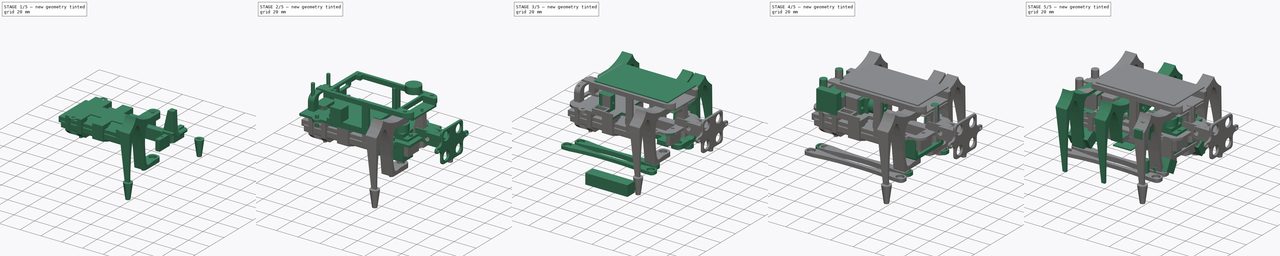
[diagram: build sequence overview — one tinted view per stage of 5, left to right]
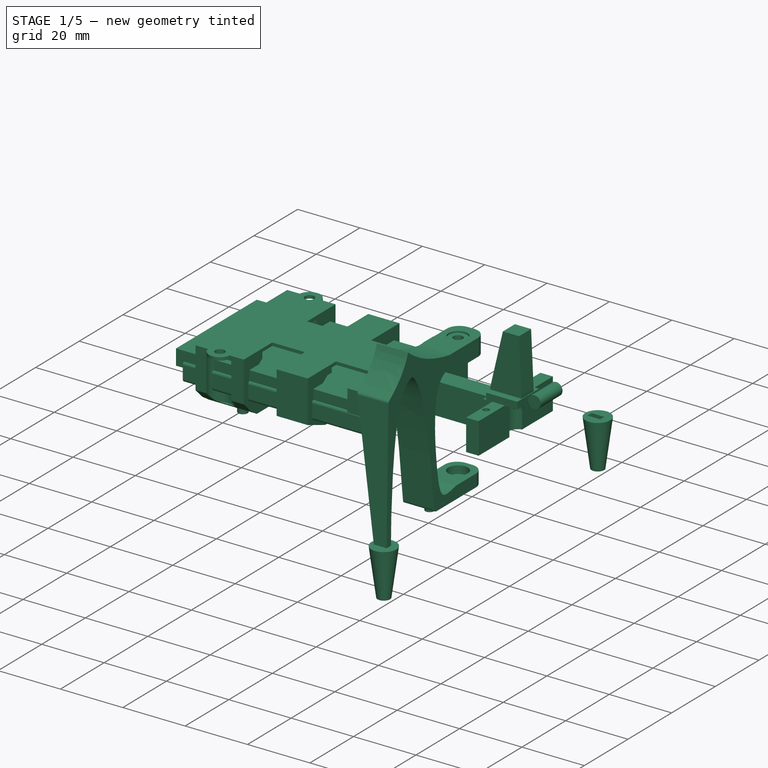
[diagram: stage 1 of 5 — iso view after this stage's code; geometry added in this stage tinted green]
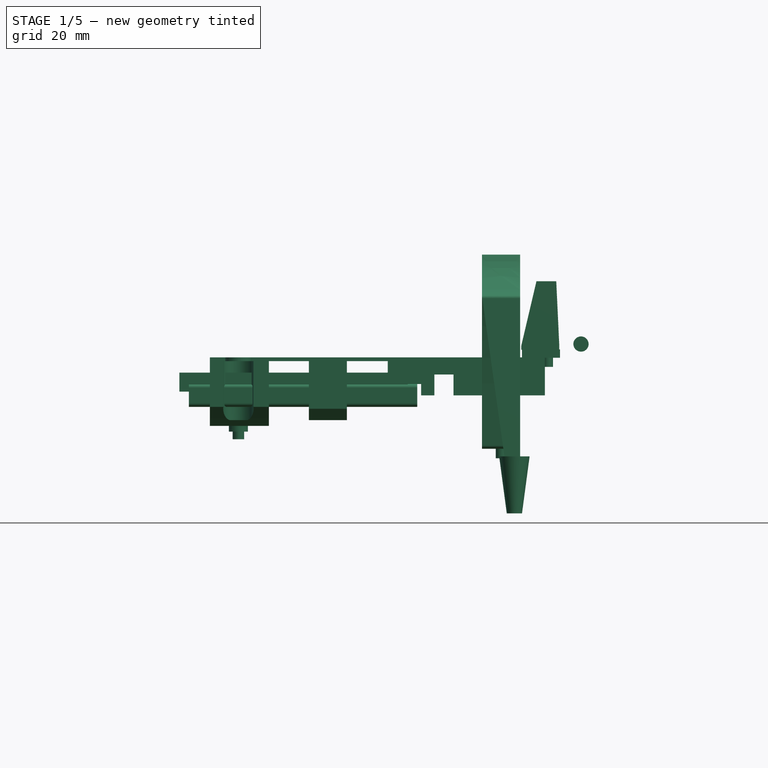
[diagram: stage 1 of 5 — front view after this stage's code; geometry added in this stage tinted green]
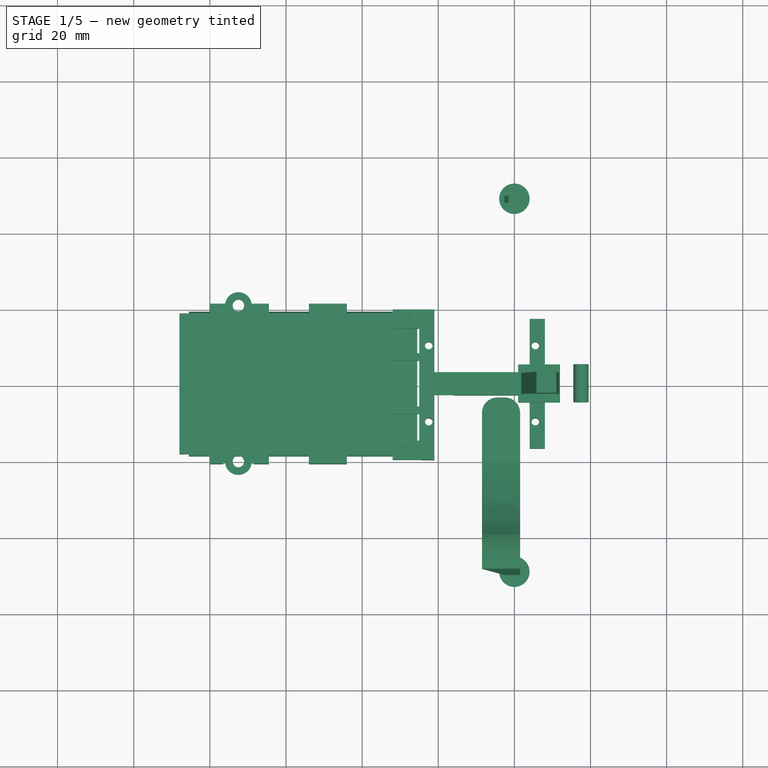
[diagram: stage 1 of 5 — top view after this stage's code; geometry added in this stage tinted green]
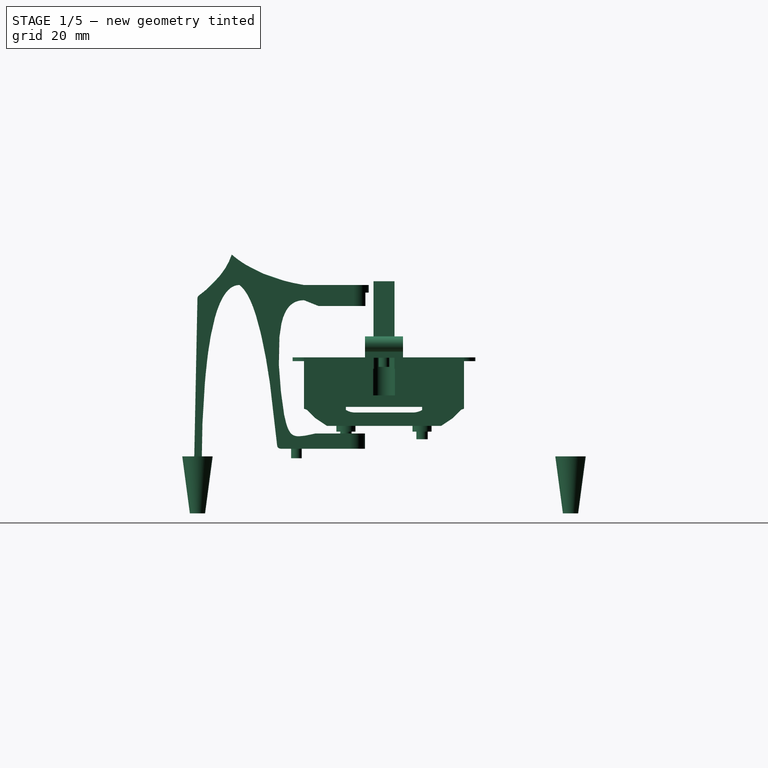
[diagram: stage 1 of 5 — right view after this stage's code; geometry added in this stage tinted green]
FCSTD DOCUMENT  (FreeCAD 0.18R16131 (Git))
Label: walki_15
License: All rights reserved
LicenseURL: http://en.wikipedia.org/wiki/All_rights_reserved
objects: Part::Cylinder×216, Part::Box×141, Part::MultiFuse×118, Part::Cut×73, Part::Fillet×58, App::DocumentObjectGroup×28, Part::Chamfer×25, Sketcher::SketchObject×16, PartDesign::Pad×16, PartDesign::Body×15, Part::Wedge×7, Part::Mirroring×7, App::Part×3, Part::Cone×2, Image::ImagePlane×1, Part::Feature×1
note: 711 computed .brp shape members not serialized (recipe doc carries the construction recipe); baked Part::Feature solids carry a one-line shape summary decoded from their .brp

FEATURE [Part::Box] Box028  label="Würfel028"
  AttacherType = Attacher::AttachEngine3D
  Height = 18
  Length = 17.5
  Placement = pos=(7.5,-21.5,-28) rot=(0,0,1;0rad)
  Width = 3.5
FEATURE [Part::Cylinder] Cylinder059  label="Zylinder059"
  Angle = 360
  AttacherType = Attacher::AttachEngine3D
  Height = 2.5
  Placement = pos=(16.5,10,-29.5) rot=(0,0,1;0rad)
  Radius = 1.4
FEATURE [Part::Cylinder] Cylinder060  label="Zylinder060"
  Angle = 360
  AttacherType = Attacher::AttachEngine3D
  Height = 2.5
  Placement = pos=(16.5,-10,-29.5) rot=(0,0,1;0rad)
  Radius = 1.4
FEATURE [Part::Box] Box030  label="Würfel030"
  AttacherType = Attacher::AttachEngine3D
  Height = 18
  Length = 17.5
  Placement = pos=(7.5,18,-28) rot=(0,0,1;0rad)
  Width = 3.5
FEATURE [Part::Cylinder] Cylinder064  label="Zylinder064"
  Angle = 360
  AttacherType = Attacher::AttachEngine3D
  Height = 10
  Placement = pos=(16.5,-20.5,-14) rot=(0,0,1;0rad)
  Radius = 1.5
FEATURE [Part::Cylinder] Cylinder066  label="Zylinder066"
  Angle = 360
  AttacherType = Attacher::AttachEngine3D
  Height = 10
  Placement = pos=(16.5,20.5,-14) rot=(0,0,1;0rad)
  Radius = 1.5
FEATURE [Part::Cylinder] Cylinder068  label="Zylinder068"
  Angle = 360
  AttacherType = Attacher::AttachEngine3D
  Height = 1
  Placement = pos=(16.5,20.5,-10) rot=(0,0,1;0rad)
  Radius = 3.5
FEATURE [Part::Box] Box036  label="Würfel036"
  AttacherType = Attacher::AttachEngine3D
  Height = 18
  Length = 15.5
  Placement = pos=(-60,-21,-27) rot=(0,0,1;0rad)
  Width = 42
FEATURE [Part::Cylinder] Cylinder072  label="Zylinder072"
  Angle = 360
  AttacherType = Attacher::AttachEngine3D
  Height = 1
  Placement = pos=(16.5,-20.5,-10) rot=(0,0,1;0rad)
  Radius = 3.5
FEATURE [Part::MultiFuse] Fusion030
  Placement = pos=(-69,0,0) rot=(0,0,1;0rad)
  Shapes = -> [Cylinder072,Cylinder068,Cylinder060,Cylinder059]
FEATURE [Part::MultiFuse] Fusion037
  Placement = pos=(-68.5,0,0) rot=(0,0,1;0rad)
  Shapes = -> [Box028,Box030]
FEATURE [App::DocumentObjectGroup] Gruppe010  label="front_servo_support"
  Group = -> [Part001,YZ_Plane012,Cut076]
FEATURE [Part::MultiFuse] Fusion097
  Placement = pos=(-69,0,0) rot=(0,0,1;0rad)
  Shapes = -> [Cylinder066,Cylinder064]
FEATURE [Part::MultiFuse] Fusion098
  Shapes = -> [Fusion030,Box036]
FEATURE [Part::MultiFuse] Fusion099
  Shapes = -> [Fusion037,Fusion097]
FEATURE [Part::Cut] Cut077
  Base = -> Fusion098
  Tool = -> Fusion099
FEATURE [Part::Chamfer] Chamfer018
  Base = -> Cut077
  Edges = 2 edges: [Edge29 r1=2 r2=3,Edge32 r1=3 r2=2]
FEATURE [Part::Box] Box089  label="Würfel085"
  AttacherType = Attacher::AttachEngine3D
  Height = 10
  Length = 32.5
  Placement = pos=(-44.5,-8,-19) rot=(0,0,1;0rad)
  Width = 16
FEATURE [Part::MultiFuse] Fusion101
  Shapes = -> [Chamfer018,Box089]
FEATURE [Part::Box] Box090  label="battery003"
  AttacherType = Attacher::AttachEngine3D
  Height = 13.5
  Length = 50
  Placement = pos=(-63.25,-12,-22) rot=(0,0,1;0rad)
  Width = 25
FEATURE [Part::Fillet] Fillet081
  Base = -> Box090
  Edges = 2 edges r=5: [Edge9,Edge11]
  Placement = pos=(0,-0.5,-1.5) rot=(0,0,1;0rad)
FEATURE [Part::Cylinder] Cylinder157  label="Zylinder157"
  Angle = 360
  AttacherType = Attacher::AttachEngine3D
  Height = 41
  Placement = pos=(-58,-20.5,-16.5) rot=(-1,0,0;1.5708rad)
  Radius = 2
FEATURE [Part::Box] Box091  label="Würfel086"
  AttacherType = Attacher::AttachEngine3D
  Height = 10
  Length = 2
  Placement = pos=(-57.5,17.5,-21) rot=(0,0,1;0rad)
  Width = 2
FEATURE [Part::Box] Box092  label="Würfel087"
  AttacherType = Attacher::AttachEngine3D
  Height = 10
  Length = 2
  Placement = pos=(-57.5,-19.5,-21) rot=(0,0,1;0rad)
  Width = 2
FEATURE [Part::MultiFuse] Fusion102
  Shapes = -> [Box091,Box092]
FEATURE [Part::Cut] Cut078
  Base = -> Cylinder157
  Tool = -> Fusion102
FEATURE [Part::MultiFuse] Fusion103
  Shapes = -> [Cut078,Fusion101]
FEATURE [Part::Box] Box093  label="Würfel088"
  AttacherType = Attacher::AttachEngine3D
  Height = 4
  Length = 9
  Placement = pos=(-13,-8,-13) rot=(0,0,1;0rad)
  Width = 2
FEATURE [Part::Box] Box094  label="Würfel089"
  AttacherType = Attacher::AttachEngine3D
  Height = 4
  Length = 9
  Placement = pos=(-13,6,-13) rot=(0,0,1;0rad)
  Width = 2
FEATURE [Part::Cylinder] Cylinder158  label="Zylinder158"
  Angle = 360
  AttacherType = Attacher::AttachEngine3D
  Height = 20
  Placement = pos=(28.75,0,-21) rot=(0,0,1;0rad)
  Radius = 3
FEATURE [Sketcher::SketchObject] Sketch015
  MapMode = 5
  Support = -> [XY_Plane012]
  sketch-geometry (12):
    g0: LineSegment StartX=-5 StartY=17 StartZ=0 EndX=-1 EndY=17 EndZ=0
    g1: LineSegment StartX=-1 StartY=17 StartZ=0 EndX=-1 EndY=3 EndZ=0
    g2: LineSegment StartX=-1 StartY=3 StartZ=0 EndX=24 EndY=3 EndZ=0
    g3: LineSegment StartX=24 StartY=3 StartZ=0 EndX=24 EndY=17 EndZ=0
    g4: LineSegment StartX=24 StartY=17 StartZ=0 EndX=28 EndY=17 EndZ=0
    g5: LineSegment StartX=28 StartY=17 StartZ=0 EndX=28 EndY=-17 EndZ=0
    g6: LineSegment StartX=-5 StartY=17 StartZ=0 EndX=-5 EndY=-17 EndZ=0
    g7: LineSegment StartX=-1 StartY=-3 StartZ=0 EndX=-1 EndY=-17 EndZ=0
    g8: LineSegment StartX=-1 StartY=-3 StartZ=0 EndX=24 EndY=-3 EndZ=0
    g9: LineSegment StartX=24 StartY=-3 StartZ=0 EndX=24 EndY=-17 EndZ=0
    g10: LineSegment StartX=24 StartY=-17 StartZ=0 EndX=28 EndY=-17 EndZ=0
    g11: LineSegment StartX=-5 StartY=-17 StartZ=0 EndX=-1 EndY=-17 EndZ=0
FEATURE [Part::Cylinder] Cylinder159  label="Zylinder159"
  Angle = 360
  AttacherType = Attacher::AttachEngine3D
  Height = 15
  Placement = pos=(25.5,-10,-20) rot=(0,0,1;0rad)
  Radius = 1
FEATURE [Part::Cylinder] Cylinder160  label="Zylinder160"
  Angle = 360
  AttacherType = Attacher::AttachEngine3D
  Height = 15
  Placement = pos=(-2.5,10,-20) rot=(0,0,1;0rad)
  Radius = 1
FEATURE [Part::Cylinder] Cylinder161  label="Zylinder161"
  Angle = 360
  AttacherType = Attacher::AttachEngine3D
  Height = 15
  Placement = pos=(-2.5,-10,-20) rot=(0,0,1;0rad)
  Radius = 1
FEATURE [Part::Cylinder] Cylinder162  label="Zylinder162"
  Angle = 360
  AttacherType = Attacher::AttachEngine3D
  Height = 15
  Placement = pos=(25.5,10,-20) rot=(0,0,1;0rad)
  Radius = 1
FEATURE [Part::MultiFuse] Fusion104
  Placement = pos=(0,0,17) rot=(0,0,1;0rad)
  Shapes = -> [Cylinder160,Cylinder159,Cylinder162,Cylinder161]
FEATURE [PartDesign::Pad] Pad015
  Length = 10
  Length2 = 100
  Profile = -> Sketch015
  Type = 0
FEATURE [PartDesign::Body] Body006
  Group = -> [Sketch015,Pad015]
  Origin = -> Origin012
  Tip = -> Pad015
FEATURE [Part::Cut] Cut081
  Base = -> Body006
  Placement = pos=(0,0,-19) rot=(0,0,1;0rad)
  Tool = -> Fusion104
FEATURE [Part::Cut] Cut080
  Base = -> Cut081
  Tool = -> Cylinder158
FEATURE [Part::Box] Box109  label="Würfel103"
  AttacherType = Attacher::AttachEngine3D
  Height = 16.5
  Length = 10
  Placement = pos=(-34,-14,-25.5) rot=(0,0,1;0rad)
  Width = 28
FEATURE [Part::Chamfer] Chamfer020
  Base = -> Box109
  Edges = 2 edges r=4: [Edge9,Edge11]
FEATURE [Part::MultiFuse] Fusion125
  Shapes = -> [Chamfer020,Cut080,Box093,Box094,Fusion103]
FEATURE [Part::Cut] Cut083
  Base = -> Fusion125
  Tool = -> Fillet081
FEATURE [Part::Cylinder] Cylinder197  label="Zylinder197"
  Angle = 360
  AttacherType = Attacher::AttachEngine3D
  Height = 2.5
  Placement = pos=(-52.5,10,-30.5) rot=(0,0,1;0rad)
  Radius = 1.5
FEATURE [Part::Cylinder] Cylinder198  label="Zylinder198"
  Angle = 360
  AttacherType = Attacher::AttachEngine3D
  Height = 2.5
  Placement = pos=(-52.5,-10,-30.5) rot=(0,0,1;0rad)
  Radius = 1.5
FEATURE [Part::Cylinder] Cylinder199  label="Zylinder199"
  Angle = 360
  AttacherType = Attacher::AttachEngine3D
  Height = 2.5
  Placement = pos=(-52.5,10,-28.5) rot=(0,0,1;0rad)
  Radius = 2.5
FEATURE [Part::Cylinder] Cylinder200  label="Zylinder200"
  Angle = 360
  AttacherType = Attacher::AttachEngine3D
  Height = 2.5
  Placement = pos=(-52.5,-10,-28.5) rot=(0,0,1;0rad)
  Radius = 2.5
FEATURE [Part::MultiFuse] Fusion130
  Shapes = -> [Cylinder197,Cylinder198,Cylinder199,Cylinder200]
FEATURE [Part::MultiFuse] Fusion131
  Shapes = -> [Cut083,Fusion130]
FEATURE [Part::Box] Box145  label="Würfel135"
  AttacherType = Attacher::AttachEngine3D
  Height = 10
  Length = 11
  Placement = pos=(-12,14.5,-19) rot=(0,0,1;0rad)
  Width = 5
FEATURE [Part::Cylinder] Cylinder230  label="Zylinder230"
  Angle = 360
  AttacherType = Attacher::AttachEngine3D
  Height = 15
  Placement = pos=(-8.5,17,-20) rot=(0,0,1;0rad)
  Radius = 1
FEATURE [Part::Cut] Cut102
  Base = -> Box145
  Tool = -> Cylinder230
FEATURE [Part::Box] Box146  label="Würfel136"
  AttacherType = Attacher::AttachEngine3D
  Height = 10
  Length = 11
  Placement = pos=(-12,13.5,-19) rot=(0,0,1;0rad)
  Width = 5
FEATURE [Part::Cylinder] Cylinder231  label="Zylinder231"
  Angle = 360
  AttacherType = Attacher::AttachEngine3D
  Height = 15
  Placement = pos=(-8.5,16,-20) rot=(0,0,1;0rad)
  Radius = 1
FEATURE [Part::Cut] Cut103
  Base = -> Box146
  Placement = pos=(0,-33.5,0) rot=(0,0,1;0rad)
  Tool = -> Cylinder231
FEATURE [Part::MultiFuse] Fusion147
  Shapes = -> [Fusion131,Cut103,Cut102]
FEATURE [Part::Cylinder] Cylinder238  label="Zylinder240"
  Angle = 360
  AttacherType = Attacher::AttachEngine3D
  Height = 19
  Placement = pos=(28.75,0,-11.5) rot=(0,0,1;0rad)
  Radius = 1.4
FEATURE [Part::Box] Box160  label="Würfel149"
  AttacherType = Attacher::AttachEngine3D
  Height = 18
  Length = 10
  Placement = pos=(21.8,-2.75,-7) rot=(0,0,1;0rad)
  Width = 5.5
FEATURE [Part::Chamfer] Chamfer023
  Base = -> Box160
  Edges = 2 edges: [Edge2 r1=17 r2=4,Edge6 r1=17 r2=0.8]
FEATURE [Part::Box] Box161  label="Würfel150"
  AttacherType = Attacher::AttachEngine3D
  Height = 2.2
  Length = 10
  Placement = pos=(22,-5,-9.1) rot=(0,0,1;0rad)
  Width = 10
FEATURE [Part::MultiFuse] Fusion158
  Shapes = -> [Cylinder238,Box161,Chamfer023]
FEATURE [Part::Cylinder] Cylinder239  label="Zylinder241"
  Angle = 360
  AttacherType = Attacher::AttachEngine3D
  Height = 10
  Placement = pos=(37.5,5,-5.5) rot=(1,0,0;1.5708rad)
  Radius = 2
FEATURE [Part::Box] Box164  label="Würfel153"
  AttacherType = Attacher::AttachEngine3D
  Height = 3
  Length = 7
  Placement = pos=(21,-5,-12) rot=(0,0,1;0rad)
  Width = 10
FEATURE [Part::Cylinder] Cylinder241  label="Zylinder243"
  Angle = 360
  AttacherType = Attacher::AttachEngine3D
  Height = 10
  Placement = pos=(28.5,0,-16.5) rot=(0,0,1;0rad)
  Radius = 2.8
FEATURE [Part::Cut] Cut111
  Base = -> Box164
  Tool = -> Cylinder241
FEATURE [App::DocumentObjectGroup] Gruppe027  label="sensor_evo_mini"
  Group = -> [Part__Feature,Fusion161,Cut112]
FEATURE [Part::Cone] Cone  label="Kegel"
  Angle = 360
  AttacherType = Attacher::AttachEngine3D
  Height = 15
  Placement = pos=(20,49,-50) rot=(0,0,1;0rad)
  Radius1 = 2
  Radius2 = 4
FEATURE [Sketcher::SketchObject] Sketch020
  MapMode = 5
  Placement = pos=(0,0,0) rot=(0.57735,0.57735,0.57735;2.0944rad)
  Support = -> [YZ_Plane030]
  sketch-geometry (50):
    g0: LineSegment StartX=4 StartY=4 StartZ=0 EndX=4 EndY=10 EndZ=0
    g1: LineSegment StartX=4 StartY=10 StartZ=0 EndX=21 EndY=10 EndZ=0
    g2: LineSegment StartX=5 StartY=-29 StartZ=0 EndX=18 EndY=-29 EndZ=0
    g3: LineSegment StartX=5 StartY=-29 StartZ=0 EndX=5 EndY=-33 EndZ=0
    g4: LineSegment StartX=5 StartY=-33 StartZ=0 EndX=28 EndY=-33 EndZ=0
    g5: LineSegment StartX=4 StartY=4 StartZ=0 EndX=16 EndY=4 EndZ=0
    g6: LineSegment StartX=16 StartY=4 StartZ=0 EndX=21 EndY=6 EndZ=0
    g7: Circle [constr] CenterX=21 CenterY=10 CenterZ=0 NormalX=0 NormalY=0 NormalZ=1 AngleXU=0 Radius=2
    g8: Circle [constr] CenterX=33 CenterY=12 CenterZ=0 NormalX=0 NormalY=0 NormalZ=1 AngleXU=0 Radius=2
    g9: Circle [constr] CenterX=40 CenterY=18 CenterZ=0 NormalX=0 NormalY=0 NormalZ=1 AngleXU=0 Radius=2
    g10: BSplineCurve PolesCount=3 KnotsCount=2 Degree=2 IsPeriodic=0
    g11: GeomPoint [constr] X=21 Y=10 Z=0
    g12: GeomPoint [constr] X=40 Y=18 Z=0
    g13: Circle [constr] CenterX=40 CenterY=18 CenterZ=0 NormalX=0 NormalY=0 NormalZ=1 AngleXU=0 Radius=1
    g14: Circle [constr] CenterX=42 CenterY=12 CenterZ=0 NormalX=0 NormalY=0 NormalZ=1 AngleXU=0 Radius=1
    g15: Circle [constr] CenterX=49 CenterY=7 CenterZ=0 NormalX=0 NormalY=0 NormalZ=1 AngleXU=0 Radius=1
    g16: BSplineCurve PolesCount=3 KnotsCount=2 Degree=2 IsPeriodic=0
    g17: GeomPoint [constr] X=40 Y=18 Z=0
    g18: GeomPoint [constr] X=49 Y=7 Z=0
    g19: Circle [constr] CenterX=49 CenterY=7 CenterZ=0 NormalX=0 NormalY=0 NormalZ=1 AngleXU=0 Radius=8
    g20: Circle [constr] CenterX=50 CenterY=-43 CenterZ=0 NormalX=0 NormalY=0 NormalZ=1 AngleXU=0 Radius=8
    g21: BSplineCurve PolesCount=2 KnotsCount=2 Degree=1 IsPeriodic=0
    g22: GeomPoint [constr] X=49 Y=7 Z=0
    g23: GeomPoint [constr] X=50 Y=-43 Z=0
    g24: Circle [constr] CenterX=48 CenterY=-43 CenterZ=0 NormalX=0 NormalY=0 NormalZ=1 AngleXU=0 Radius=8
    g25: Circle [constr] CenterX=48 CenterY=10 CenterZ=0 NormalX=0 NormalY=0 NormalZ=1 AngleXU=0 Radius=8
    g26: Circle [constr] CenterX=38 CenterY=10 CenterZ=0 NormalX=0 NormalY=0 NormalZ=1 AngleXU=0 Radius=8
    g27: BSplineCurve PolesCount=3 KnotsCount=2 Degree=2 IsPeriodic=0
    g28: GeomPoint [constr] X=48 Y=-43 Z=0
    g29: GeomPoint [constr] X=38 Y=10 Z=0
    g30: LineSegment StartX=48 StartY=-43 StartZ=0 EndX=50 EndY=-43 EndZ=0
    g31: Circle [constr] CenterX=28 CenterY=-33 CenterZ=0 NormalX=0 NormalY=0 NormalZ=1 AngleXU=0 Radius=4
    g32: Circle [constr] CenterX=31.5452 CenterY=5.41621 CenterZ=0 NormalX=0 NormalY=0 NormalZ=1 AngleXU=0 Radius=4
    g33: Circle [constr] CenterX=38 CenterY=10 CenterZ=0 NormalX=0 NormalY=0 NormalZ=1 AngleXU=0 Radius=4
    g34: BSplineCurve PolesCount=3 KnotsCount=2 Degree=2 IsPeriodic=0
    g35: GeomPoint [constr] X=28 Y=-33 Z=0
    g36: GeomPoint [constr] X=38 Y=10 Z=0
    g37-g43: Circle [constr] x7 (B-spline internal-alignment scaffolding for g44; pole/knot coordinates omitted)
    g44: BSplineCurve PolesCount=7 KnotsCount=5 Degree=3 IsPeriodic=0
    g45-g49: GeomPoint [constr] x5 (B-spline internal-alignment scaffolding for g44; pole/knot coordinates omitted)
  constraints (42):
    c: Radius(g7) = 2
    c: Equal(g7,g8)
    c: Equal(g7,g9)
    c: InternalAlignment(g7,g10)
    c: InternalAlignment(g8,g10)
    c: InternalAlignment(g9,g10)
    c: InternalAlignment(g11,g10)
    c: InternalAlignment(g12,g10)
    c: Radius(g13) = 1
    c: Equal(g13,g14)
    c: Equal(g13,g15)
    c: InternalAlignment(g13,g16)
    c: InternalAlignment(g14,g16)
    c: InternalAlignment(g15,g16)
    c: InternalAlignment(g17,g16)
    c: InternalAlignment(g18,g16)
    c: Radius(g19) = 8
    c: Equal(g19,g20)
    c: InternalAlignment(g19,g21)
    c: InternalAlignment(g20,g21)
    c: InternalAlignment(g22,g21)
    c: InternalAlignment(g23,g21)
    c: Radius(g24) = 8
    c: Equal(g24,g25)
    c: Equal(g24,g26)
    c: InternalAlignment(g24,g27)
    c: InternalAlignment(g25,g27)
    c: InternalAlignment(g26,g27)
    c: InternalAlignment(g28,g27)
    c: InternalAlignment(g29,g27)
    c: Radius(g31) = 4
    c: Equal(g31,g32)
    c: Equal(g31,g33)
    c: InternalAlignment(g31,g34)
    c: InternalAlignment(g32,g34)
    c: InternalAlignment(g33,g34)
    c: InternalAlignment(g35,g34)
    c: InternalAlignment(g36,g34)
    c: Radius(g37) = 0.8
    c: Equal(g37, g38-g43) x6
    c: InternalAlignment(g37-g43 -> g44) x7
    c: InternalAlignment(g45-g49 -> g44) x5
FEATURE [Part::Wedge] Wedge005  label="Keil005"
  AttacherType = Attacher::AttachEngine3D
  Placement = pos=(12.5,10,0) rot=(0,0,1;0rad)
  X2max = 6
  X2min = 2
  Xmax = 8
  Xmin = 0
  Ymax = 18
  Ymin = 0
  Z2max = 8
  Z2min = 2
  Zmax = 8
  Zmin = 2
FEATURE [Part::Box] Box165  label="Würfel154"
  AttacherType = Attacher::AttachEngine3D
  Height = 7
  Length = 7
  Placement = pos=(13,1,1) rot=(0,0,1;0rad)
  Width = 9
FEATURE [Part::Cylinder] Cylinder242  label="Zylinder244"
  Angle = 360
  AttacherType = Attacher::AttachEngine3D
  Height = 14
  Placement = pos=(16.5,10,-2) rot=(0,0,1;0rad)
  Radius = 1.5
FEATURE [Part::Cylinder] Cylinder243  label="Zylinder245"
  Angle = 360
  AttacherType = Attacher::AttachEngine3D
  Height = 10
  Placement = pos=(16.5,10,-31.5) rot=(0,0,1;0rad)
  Radius = 3.15
FEATURE [Part::Cylinder] Cylinder244  label="Zylinder246"
  Angle = 360
  AttacherType = Attacher::AttachEngine3D
  Height = 10
  Placement = pos=(16.5,10,-2) rot=(0,0,1;0rad)
  Radius = 4.25
FEATURE [Part::Cylinder] Cylinder245  label="Zylinder247"
  Angle = 360
  AttacherType = Attacher::AttachEngine3D
  Height = 3
  Placement = pos=(16.5,10,9.5) rot=(0,0,1;0rad)
  Radius = 3
FEATURE [Part::MultiFuse] Fusion163
  Shapes = -> [Cylinder243,Cylinder244,Wedge005,Box165,Cylinder242,Cylinder245]
FEATURE [PartDesign::Pad] Pad020
  Length = 10
  Length2 = 100
  Placement = pos=(0,0,0) rot=(0.57735,0.57735,0.57735;2.0944rad)
  Profile = -> Sketch020
  Type = 0
FEATURE [Part::Chamfer] Chamfer024
  Base = -> Pad020
  Edges = 1 edges: [Edge21 r1=7 r2=50]
  Placement = pos=(11.5,0,0) rot=(0,0,1;0rad)
FEATURE [Part::Fillet] Fillet100
  Base = -> Chamfer024
  Edges = 1 edges r=1: [Edge4]
FEATURE [Part::Fillet] Fillet103
  Base = -> Fillet100
  Edges = 1 edges r=1: [Edge44]
FEATURE [Part::Fillet] Fillet101
  Base = -> Fillet103
  Edges = 2 edges r=4: [Edge16,Edge50]
FEATURE [Part::Cylinder] Cylinder246  label="Zylinder248"
  Angle = 360
  AttacherType = Attacher::AttachEngine3D
  Height = 20
  Placement = pos=(16.5,23,-38.5) rot=(0,0,1;0rad)
  Radius = 0.6
FEATURE [Part::MultiFuse] Fusion162
  Shapes = -> [Cylinder246,Fusion163]
FEATURE [Part::Cylinder] Cylinder247  label="Zylinder249"
  Angle = 360
  AttacherType = Attacher::AttachEngine3D
  Height = 2.5
  Placement = pos=(16.5,23,-35.5) rot=(0,0,1;0rad)
  Radius = 1.4
FEATURE [Part::Box] Box166  label="Würfel155"
  AttacherType = Attacher::AttachEngine3D
  Height = 0.5
  Length = 12
  Placement = pos=(10.5,2.5,4) rot=(0,0,1;0rad)
  Width = 16
FEATURE [Part::MultiFuse] Fusion164
  Shapes = -> [Cylinder247,Fillet101]
FEATURE [Part::Cut] Cut113
  Base = -> Fusion164
  Tool = -> Fusion162
FEATURE [Part::Cut] Cut114
  Base = -> Cut113
  Tool = -> Box166
FEATURE [Part::Fillet] Fillet102
  Base = -> Cut114
  Edges = 2 edges r=4: [Edge5,Edge37]
FEATURE [Part::Cut] Cut115
  Base = -> Cone
  Tool = -> Fillet102
FEATURE [Part::Cone] Cone001  label="Kegel001"
  Angle = 360
  AttacherType = Attacher::AttachEngine3D
  Height = 15
  Placement = pos=(20,-49,-50) rot=(0,0,1;0rad)
  Radius1 = 2
  Radius2 = 4
FEATURE [Sketcher::SketchObject] Sketch021
  MapMode = 5
  Placement = pos=(0,0,0) rot=(0.57735,0.57735,0.57735;2.0944rad)
  Support = -> [YZ_Plane031]
  sketch-geometry (50):
    g0: LineSegment StartX=4 StartY=4 StartZ=0 EndX=4 EndY=10 EndZ=0
    g1: LineSegment StartX=4 StartY=10 StartZ=0 EndX=21 EndY=10 EndZ=0
    g2: LineSegment StartX=5 StartY=-29 StartZ=0 EndX=18 EndY=-29 EndZ=0
    g3: LineSegment StartX=5 StartY=-29 StartZ=0 EndX=5 EndY=-33 EndZ=0
    g4: LineSegment StartX=5 StartY=-33 StartZ=0 EndX=28 EndY=-33 EndZ=0
    g5: LineSegment StartX=4 StartY=4 StartZ=0 EndX=16 EndY=4 EndZ=0
    g6: LineSegment StartX=16 StartY=4 StartZ=0 EndX=21 EndY=6 EndZ=0
    g7: Circle [constr] CenterX=21 CenterY=10 CenterZ=0 NormalX=0 NormalY=0 NormalZ=1 AngleXU=0 Radius=2
    g8: Circle [constr] CenterX=33 CenterY=12 CenterZ=0 NormalX=0 NormalY=0 NormalZ=1 AngleXU=0 Radius=2
    g9: Circle [constr] CenterX=40 CenterY=18 CenterZ=0 NormalX=0 NormalY=0 NormalZ=1 AngleXU=0 Radius=2
    g10: BSplineCurve PolesCount=3 KnotsCount=2 Degree=2 IsPeriodic=0
    g11: GeomPoint [constr] X=21 Y=10 Z=0
    g12: GeomPoint [constr] X=40 Y=18 Z=0
    g13: Circle [constr] CenterX=40 CenterY=18 CenterZ=0 NormalX=0 NormalY=0 NormalZ=1 AngleXU=0 Radius=1
    g14: Circle [constr] CenterX=42 CenterY=12 CenterZ=0 NormalX=0 NormalY=0 NormalZ=1 AngleXU=0 Radius=1
    g15: Circle [constr] CenterX=49 CenterY=7 CenterZ=0 NormalX=0 NormalY=0 NormalZ=1 AngleXU=0 Radius=1
    g16: BSplineCurve PolesCount=3 KnotsCount=2 Degree=2 IsPeriodic=0
    g17: GeomPoint [constr] X=40 Y=18 Z=0
    g18: GeomPoint [constr] X=49 Y=7 Z=0
    g19: Circle [constr] CenterX=49 CenterY=7 CenterZ=0 NormalX=0 NormalY=0 NormalZ=1 AngleXU=0 Radius=8
    g20: Circle [constr] CenterX=50 CenterY=-43 CenterZ=0 NormalX=0 NormalY=0 NormalZ=1 AngleXU=0 Radius=8
    g21: BSplineCurve PolesCount=2 KnotsCount=2 Degree=1 IsPeriodic=0
    g22: GeomPoint [constr] X=49 Y=7 Z=0
    g23: GeomPoint [constr] X=50 Y=-43 Z=0
    g24: Circle [constr] CenterX=48 CenterY=-43 CenterZ=0 NormalX=0 NormalY=0 NormalZ=1 AngleXU=0 Radius=8
    g25: Circle [constr] CenterX=48 CenterY=10 CenterZ=0 NormalX=0 NormalY=0 NormalZ=1 AngleXU=0 Radius=8
    g26: Circle [constr] CenterX=38 CenterY=10 CenterZ=0 NormalX=0 NormalY=0 NormalZ=1 AngleXU=0 Radius=8
    g27: BSplineCurve PolesCount=3 KnotsCount=2 Degree=2 IsPeriodic=0
    g28: GeomPoint [constr] X=48 Y=-43 Z=0
    g29: GeomPoint [constr] X=38 Y=10 Z=0
    g30: LineSegment StartX=48 StartY=-43 StartZ=0 EndX=50 EndY=-43 EndZ=0
    g31: Circle [constr] CenterX=28 CenterY=-33 CenterZ=0 NormalX=0 NormalY=0 NormalZ=1 AngleXU=0 Radius=4
    g32: Circle [constr] CenterX=31.5452 CenterY=5.41621 CenterZ=0 NormalX=0 NormalY=0 NormalZ=1 AngleXU=0 Radius=4
    g33: Circle [constr] CenterX=38 CenterY=10 CenterZ=0 NormalX=0 NormalY=0 NormalZ=1 AngleXU=0 Radius=4
    g34: BSplineCurve PolesCount=3 KnotsCount=2 Degree=2 IsPeriodic=0
    g35: GeomPoint [constr] X=28 Y=-33 Z=0
    g36: GeomPoint [constr] X=38 Y=10 Z=0
    g37-g43: Circle [constr] x7 (B-spline internal-alignment scaffolding for g44; pole/knot coordinates omitted)
    g44: BSplineCurve PolesCount=7 KnotsCount=5 Degree=3 IsPeriodic=0
    g45-g49: GeomPoint [constr] x5 (B-spline internal-alignment scaffolding for g44; pole/knot coordinates omitted)
  constraints (42):
    c: Radius(g7) = 2
    c: Equal(g7,g8)
    c: Equal(g7,g9)
    c: InternalAlignment(g7,g10)
    c: InternalAlignment(g8,g10)
    c: InternalAlignment(g9,g10)
    c: InternalAlignment(g11,g10)
    c: InternalAlignment(g12,g10)
    c: Radius(g13) = 1
    c: Equal(g13,g14)
    c: Equal(g13,g15)
    c: InternalAlignment(g13,g16)
    c: InternalAlignment(g14,g16)
    c: InternalAlignment(g15,g16)
    c: InternalAlignment(g17,g16)
    c: InternalAlignment(g18,g16)
    c: Radius(g19) = 8
    c: Equal(g19,g20)
    c: InternalAlignment(g19,g21)
    c: InternalAlignment(g20,g21)
    c: InternalAlignment(g22,g21)
    c: InternalAlignment(g23,g21)
    c: Radius(g24) = 8
    c: Equal(g24,g25)
    c: Equal(g24,g26)
    c: InternalAlignment(g24,g27)
    c: InternalAlignment(g25,g27)
    c: InternalAlignment(g26,g27)
    c: InternalAlignment(g28,g27)
    c: InternalAlignment(g29,g27)
    c: Radius(g31) = 4
    c: Equal(g31,g32)
    c: Equal(g31,g33)
    c: InternalAlignment(g31,g34)
    c: InternalAlignment(g32,g34)
    c: InternalAlignment(g33,g34)
    c: InternalAlignment(g35,g34)
    c: InternalAlignment(g36,g34)
    c: Radius(g37) = 0.8
    c: Equal(g37, g38-g43) x6
    c: InternalAlignment(g37-g43 -> g44) x7
    c: InternalAlignment(g45-g49 -> g44) x5
FEATURE [Part::Wedge] Wedge006  label="Keil006"
  AttacherType = Attacher::AttachEngine3D
  Placement = pos=(12.5,10,0) rot=(0,0,1;0rad)
  X2max = 6
  X2min = 2
  Xmax = 8
  Xmin = 0
  Ymax = 18
  Ymin = 0
  Z2max = 8
  Z2min = 2
  Zmax = 8
  Zmin = 2
FEATURE [Part::Box] Box167  label="Würfel156"
  AttacherType = Attacher::AttachEngine3D
  Height = 7
  Length = 7
  Placement = pos=(13,1,1) rot=(0,0,1;0rad)
  Width = 9
FEATURE [Part::Cylinder] Cylinder248  label="Zylinder250"
  Angle = 360
  AttacherType = Attacher::AttachEngine3D
  Height = 3
  Placement = pos=(16.5,10,9.5) rot=(0,0,1;0rad)
  Radius = 3
FEATURE [Part::Cylinder] Cylinder249  label="Zylinder251"
  Angle = 360
  AttacherType = Attacher::AttachEngine3D
  Height = 14
  Placement = pos=(16.5,10,-2) rot=(0,0,1;0rad)
  Radius = 1.5
FEATURE [Part::Cylinder] Cylinder250  label="Zylinder252"
  Angle = 360
  AttacherType = Attacher::AttachEngine3D
  Height = 10
  Placement = pos=(16.5,10,-31.5) rot=(0,0,1;0rad)
  Radius = 3.15
FEATURE [Part::Cylinder] Cylinder251  label="Zylinder253"
  Angle = 360
  AttacherType = Attacher::AttachEngine3D
  Height = 20
  Placement = pos=(16.5,23,-38.5) rot=(0,0,1;0rad)
  Radius = 0.6
FEATURE [Part::Cylinder] Cylinder252  label="Zylinder254"
  Angle = 360
  AttacherType = Attacher::AttachEngine3D
  Height = 2.5
  Placement = pos=(16.5,23,-35.5) rot=(0,0,1;0rad)
  Radius = 1.4
FEATURE [Part::Cylinder] Cylinder253  label="Zylinder255"
  Angle = 360
  AttacherType = Attacher::AttachEngine3D
  Height = 10
  Placement = pos=(16.5,10,-2) rot=(0,0,1;0rad)
  Radius = 4.25
FEATURE [Part::MultiFuse] Fusion167
  Shapes = -> [Cylinder250,Cylinder253,Wedge006,Box167,Cylinder249,Cylinder248]
FEATURE [Part::MultiFuse] Fusion166
  Shapes = -> [Cylinder251,Fusion167]
FEATURE [Part::Box] Box168  label="Würfel157"
  AttacherType = Attacher::AttachEngine3D
  Height = 0.5
  Length = 12
  Placement = pos=(10.5,2.5,4) rot=(0,0,1;0rad)
  Width = 16
FEATURE [PartDesign::Pad] Pad021
  Length = 10
  Length2 = 100
  Placement = pos=(0,0,0) rot=(0.57735,0.57735,0.57735;2.0944rad)
  Profile = -> Sketch021
  Type = 0
FEATURE [PartDesign::Body] Pad010Body001
  Group = -> [Sketch021,Pad021]
  Origin = -> Origin019
  Tip = -> Pad021
FEATURE [Part::Chamfer] Chamfer025
  Base = -> Pad010Body001
  Edges = 1 edges: [Edge21 r1=7 r2=50]
  Placement = pos=(11.5,0,0) rot=(0,0,1;0rad)
FEATURE [Part::Fillet] Fillet105
  Base = -> Chamfer025
  Edges = 1 edges r=1: [Edge4]
FEATURE [Part::Fillet] Fillet104
  Base = -> Fillet105
  Edges = 1 edges r=1: [Edge44]
FEATURE [Part::Fillet] Fillet106
  Base = -> Fillet104
  Edges = 2 edges r=4: [Edge16,Edge50]
FEATURE [Part::MultiFuse] Fusion165
  Shapes = -> [Cylinder252,Fillet106]
FEATURE [Part::Cut] Cut117
  Base = -> Fusion165
  Tool = -> Fusion166
FEATURE [Part::Cut] Cut116
  Base = -> Cut117
  Tool = -> Box168
FEATURE [Part::Fillet] Fillet107
  Base = -> Cut116
  Edges = 2 edges r=4: [Edge5,Edge37]
FEATURE [Part::Mirroring] Part__Mirroring006  label="Fillet070 (Mirror #2)001"
  Base = (16.5,-27,0)
  Normal = (0,0,1)
  Placement = pos=(0,0,0) rot=(1,0,0;3.14159rad)
  Source = -> Fillet107
FEATURE [App::DocumentObjectGroup] Gruppe028  label="feet"
  Group = -> [Cut115,Part__Mirroring006,Cone001,YZ_Plane030]
FEATURE [Part::Box] Box169  label="battery_2000"
  AttacherType = Attacher::AttachEngine3D
  Height = 5
  Length = 60
  Placement = pos=(-68,-18.5,-18) rot=(0,0,1;0rad)
  Width = 37
FEATURE [App::DocumentObjectGroup] Gruppe007  label="__unused"
  Group = -> [Fusion007,YZ_Plane004,Fusion064,Fusion067,Box066,Fusion100,Fusion051,Fusion106,Gruppe010,Box070,Chamfer022,Gruppe024,Box169]
FEATURE [Part::Box] Box170  label="Würfel159"
  AttacherType = Attacher::AttachEngine3D
  Height = 6
  Length = 60
  Placement = pos=(-65.5,-19,-18) rot=(0,0,1;0rad)
  Width = 38
FEATURE [Part::Fillet] Fillet108
  Base = -> Box170
  Edges = 4 edges r=1: [Edge9,Edge10,Edge11,Edge12]
  Placement = pos=(0,0,-4) rot=(0,0,1;0rad)
FEATURE [App::DocumentObjectGroup] Gruppe029  label="battery2"
  Group = -> [Box170,Fillet108]
FEATURE [Part::Box] Box171  label="Würfel160"
  AttacherType = Attacher::AttachEngine3D
  Height = 15
  Length = 15.5
  Placement = pos=(-60,17,-25) rot=(0,0,1;0rad)
  Width = 4
FEATURE [Part::Cylinder] Cylinder254  label="Zylinder256"
  Angle = 360
  AttacherType = Attacher::AttachEngine3D
  Height = 15.5
  Placement = pos=(-52.5,20.5,-25.5) rot=(0,0,1;0rad)
  Radius = 4
FEATURE [Part::Chamfer] Chamfer026
  Base = -> Box171
  Edges = 1 edges r=3: [Edge11]
FEATURE [Part::Box] Box172  label="Würfel161"
  AttacherType = Attacher::AttachEngine3D
  Height = 15
  Length = 15.5
  Placement = pos=(-60,-21,-25) rot=(0,0,1;0rad)
  Width = 4
FEATURE [Part::Cylinder] Cylinder255  label="Zylinder257"
  Angle = 360
  AttacherType = Attacher::AttachEngine3D
  Height = 15.5
  Placement = pos=(-52.5,-20.5,-25.5) rot=(0,0,1;0rad)
  Radius = 4
FEATURE [Part::Chamfer] Chamfer027
  Base = -> Box172
  Edges = 1 edges r=3: [Edge9]
FEATURE [Part::MultiFuse] Fusion168
  Shapes = -> [Cylinder254,Cylinder255]
FEATURE [Part::MultiFuse] Fusion169
  Shapes = -> [Chamfer026,Chamfer027]
FEATURE [Part::Box] Box173  label="Würfel162"
  AttacherType = Attacher::AttachEngine3D
  Height = 16.5
  Length = 10
  Placement = pos=(-34,10,-25.5) rot=(0,0,1;0rad)
  Width = 11
FEATURE [Part::Box] Box174  label="Würfel163"
  AttacherType = Attacher::AttachEngine3D
  Height = 16.5
  Length = 10
  Placement = pos=(-34,-21,-25.5) rot=(0,0,1;0rad)
  Width = 11
FEATURE [Part::Box] Box175  label="Würfel164"
  AttacherType = Attacher::AttachEngine3D
  Height = 4
  Length = 12.5
  Placement = pos=(-17,-21,-20) rot=(0,0,1;0rad)
  Width = 42
FEATURE [Part::Box] Box176  label="Würfel165"
  AttacherType = Attacher::AttachEngine3D
  Height = 10
  Length = 10
  Placement = pos=(-6,-3,-23.5) rot=(0,0,1;0rad)
  Width = 6
FEATURE [Part::Chamfer] Chamfer028
  Base = -> Box173
  Edges = 1 edges: [Edge11 r1=3 r2=8]
FEATURE [Part::Box] Box177  label="Würfel166"
  AttacherType = Attacher::AttachEngine3D
  Height = 9
  Length = 49
  Placement = pos=(-69.5,-19,-20.5) rot=(0,0,1;0rad)
  Width = 10
FEATURE [Part::Box] Box178  label="Würfel167"
  AttacherType = Attacher::AttachEngine3D
  Height = 9
  Length = 49
  Placement = pos=(-69.5,9,-20.5) rot=(0,0,1;0rad)
  Width = 10
FEATURE [Part::Chamfer] Chamfer029
  Base = -> Box178
  Edges = 1 edges: [Edge12 r1=5 r2=7]
FEATURE [Part::Chamfer] Chamfer030
  Base = -> Box177
  Edges = 1 edges: [Edge10 r1=5 r2=7]
FEATURE [Part::Chamfer] Chamfer031
  Base = -> Box174
  Edges = 1 edges: [Edge9 r1=3 r2=8]
FEATURE [Part::Box] Box179  label="Würfel168"
  AttacherType = Attacher::AttachEngine3D
  Height = 6
  Length = 60
  Placement = pos=(-65.5,-19,-18) rot=(0,0,1;0rad)
  Width = 38
FEATURE [Part::Fillet] Fillet109
  Base = -> Box179
  Edges = 4 edges r=1: [Edge9,Edge10,Edge11,Edge12]
  Placement = pos=(0,0,-4) rot=(0,0,1;0rad)
FEATURE [Part::MultiFuse] Fusion174
  Shapes = -> [Box176,Box175,Fusion168,Fillet109,Chamfer030,Chamfer029]
FEATURE [Part::MultiFuse] Fusion175
  Shapes = -> [Fusion169,Chamfer028,Chamfer031,Fusion147]
FEATURE [Part::Cut] Cut118
  Base = -> Fusion175
  Tool = -> Fusion174
FEATURE [App::DocumentObjectGroup] Gruppe006  label="bottom_rear"
  Group = -> [Cut118]
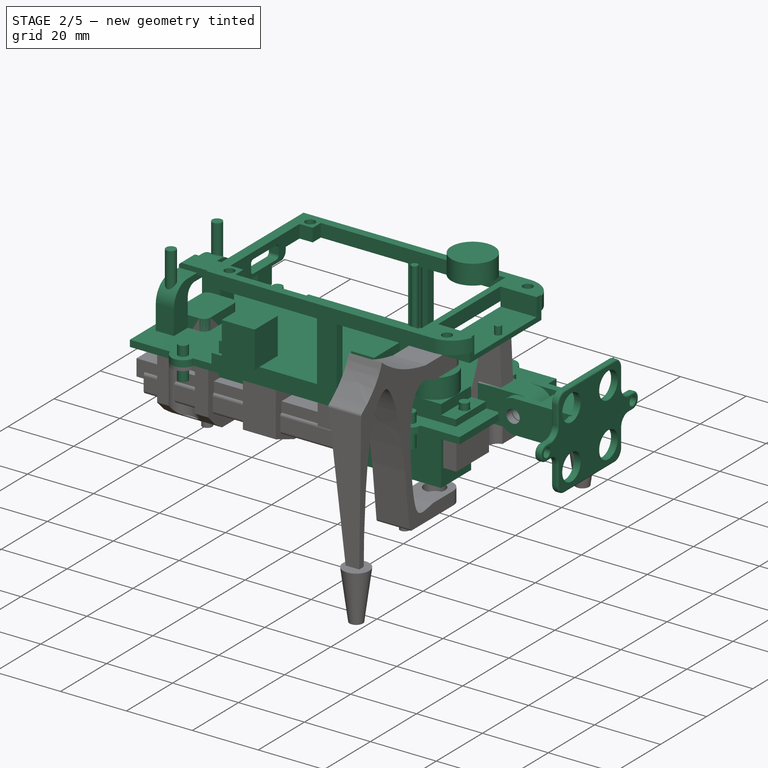
[diagram: stage 2 of 5 — iso view after this stage's code; geometry added in this stage tinted green]
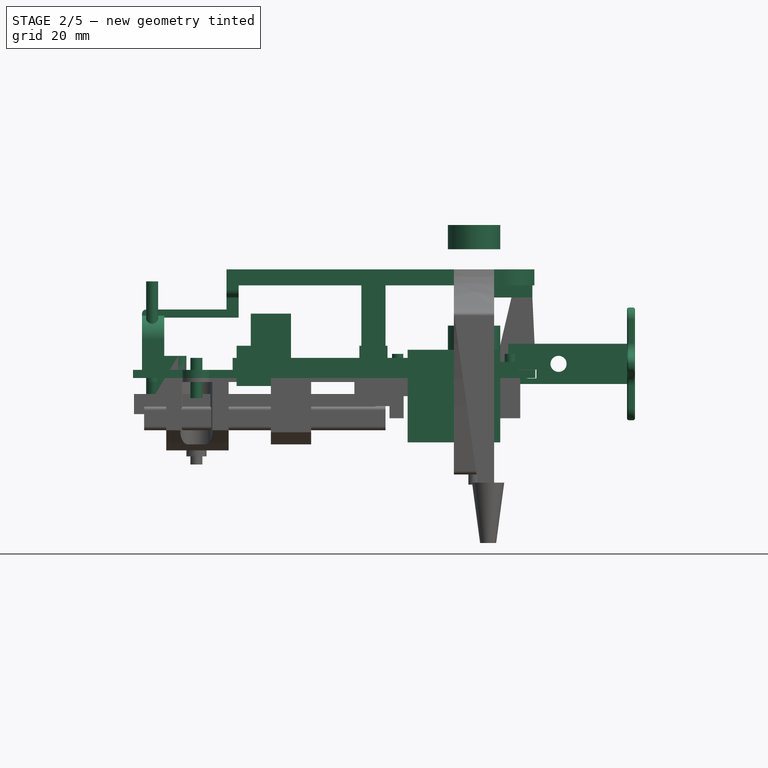
[diagram: stage 2 of 5 — front view after this stage's code; geometry added in this stage tinted green]
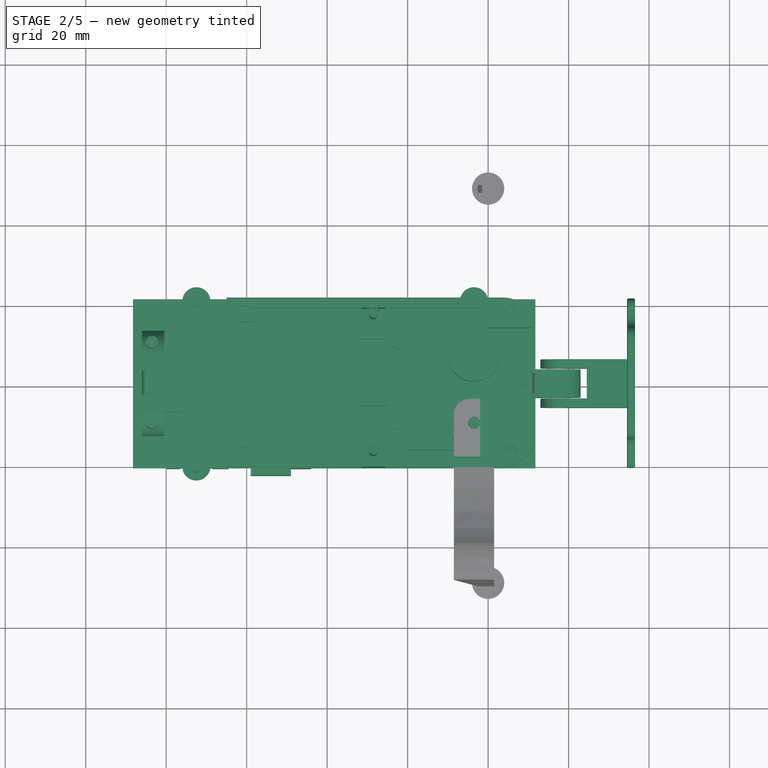
[diagram: stage 2 of 5 — top view after this stage's code; geometry added in this stage tinted green]
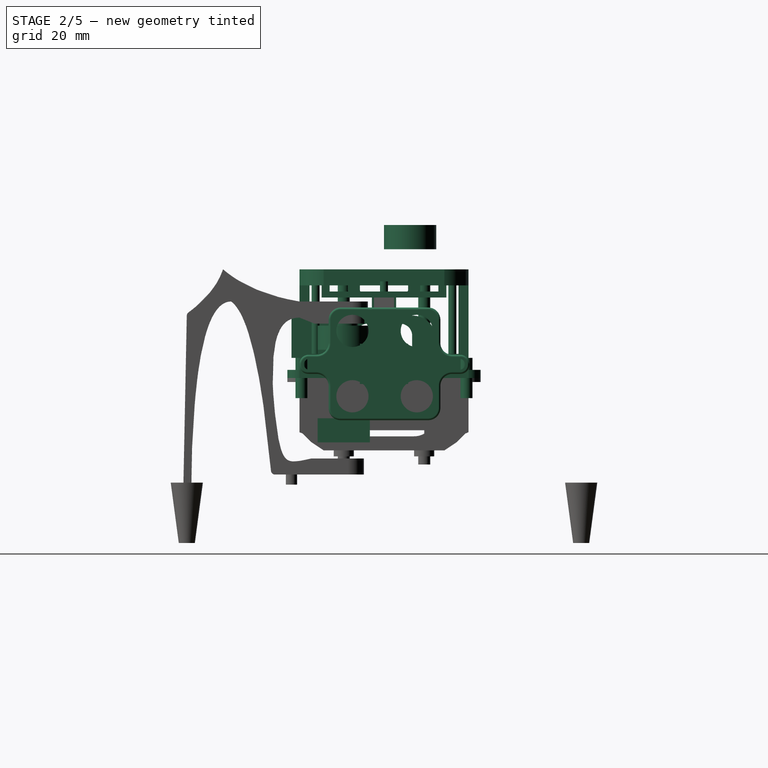
[diagram: stage 2 of 5 — right view after this stage's code; geometry added in this stage tinted green]
FEATURE [Part::Box] Box007  label="Base"
  AttacherType = Attacher::AttachEngine3D
  Height = 2
  Length = 100
  Placement = pos=(-68.25,-21,-9) rot=(0,0,1;0rad)
  Width = 42
FEATURE [Part::Cylinder] Cylinder035  label="Zylinder035"
  Angle = 360
  AttacherType = Attacher::AttachEngine3D
  Height = 6
  Placement = pos=(16.5,6.5,23) rot=(0,0,1;0rad)
  Radius = 6.5
FEATURE [Part::Cylinder] Cylinder036  label="Zylinder036"
  Angle = 360
  AttacherType = Attacher::AttachEngine3D
  Height = 10
  Placement = pos=(25.5,6.5,13) rot=(0,0,1;0rad)
  Radius = 1.5
FEATURE [Part::Cylinder] Cylinder037  label="Zylinder037"
  Angle = 360
  AttacherType = Attacher::AttachEngine3D
  Height = 5
  Placement = pos=(16.5,6.5,29) rot=(0,0,1;0rad)
  Radius = 3.5
FEATURE [Part::Box] Box018  label="Würfel018"
  AttacherType = Attacher::AttachEngine3D
  Height = 2
  Length = 32
  Placement = pos=(-4.5,0,18) rot=(0,0,1;0rad)
  Width = 13
FEATURE [Part::Cylinder] Cylinder038  label="Zylinder038"
  Angle = 360
  AttacherType = Attacher::AttachEngine3D
  Height = 6
  Placement = pos=(16.5,6.5,23) rot=(0,0,1;0rad)
  Radius = 6.5
FEATURE [Part::Cylinder] Cylinder039  label="Zylinder039"
  Angle = 360
  AttacherType = Attacher::AttachEngine3D
  Height = 5
  Placement = pos=(16.5,6.5,30) rot=(0,0,1;0rad)
  Radius = 1.5
FEATURE [Part::Cylinder] Cylinder040  label="Zylinder040"
  Angle = 360
  AttacherType = Attacher::AttachEngine3D
  Height = 10
  Placement = pos=(-2.5,6.5,13) rot=(0,0,1;0rad)
  Radius = 1.5
FEATURE [Part::MultiFuse] Fusion016
  Shapes = -> [Cylinder040,Cylinder036,Cylinder039]
FEATURE [Part::Box] Box019  label="Würfel019"
  AttacherType = Attacher::AttachEngine3D
  Height = 23
  Length = 23
  Width = 13
FEATURE [Part::MultiFuse] Fusion017
  Shapes = -> [Box019,Cylinder037,Box018,Cylinder038]
FEATURE [Part::Cut] Cut008  label="Servo2_mask"
  Base = -> Fusion017
  Placement = pos=(0,-16.5,-25) rot=(0,0,1;0rad)
  Tool = -> Fusion016
FEATURE [Part::Cylinder] Cylinder043  label="Zylinder043"
  Angle = 360
  AttacherType = Attacher::AttachEngine3D
  Height = 2
  Placement = pos=(16.5,20.5,-9) rot=(0,0,1;0rad)
  Radius = 3.5
FEATURE [Part::Cylinder] Cylinder044  label="Zylinder044"
  Angle = 360
  AttacherType = Attacher::AttachEngine3D
  Height = 2
  Placement = pos=(16.5,-20.5,-9) rot=(0,0,1;0rad)
  Radius = 3.5
FEATURE [Part::Cylinder] Cylinder047  label="Zylinder047"
  Angle = 360
  AttacherType = Attacher::AttachEngine3D
  Height = 10
  Placement = pos=(16.5,-20.5,-14) rot=(0,0,1;0rad)
  Radius = 1.5
FEATURE [Part::Cylinder] Cylinder048  label="Zylinder048"
  Angle = 360
  AttacherType = Attacher::AttachEngine3D
  Height = 10
  Placement = pos=(16.5,20.5,-14) rot=(0,0,1;0rad)
  Radius = 1.5
FEATURE [Part::Cylinder] Cylinder075  label="Zylinder075"
  Angle = 360
  AttacherType = Attacher::AttachEngine3D
  Height = 10
  Placement = pos=(-52.5,-20.5,-14) rot=(0,0,1;0rad)
  Radius = 1.5
FEATURE [Part::Cylinder] Cylinder076  label="Zylinder076"
  Angle = 360
  AttacherType = Attacher::AttachEngine3D
  Height = 10
  Placement = pos=(-52.5,20.5,-14) rot=(0,0,1;0rad)
  Radius = 1.5
FEATURE [Part::Cylinder] Cylinder077  label="Zylinder077"
  Angle = 360
  AttacherType = Attacher::AttachEngine3D
  Height = 2
  Placement = pos=(-52.5,20.5,-9) rot=(0,0,1;0rad)
  Radius = 3.5
FEATURE [Part::Cylinder] Cylinder078  label="Zylinder078"
  Angle = 360
  AttacherType = Attacher::AttachEngine3D
  Height = 2
  Placement = pos=(-52.5,-20.5,-9) rot=(0,0,1;0rad)
  Radius = 3.5
FEATURE [Part::Cylinder] Cylinder079  label="Zylinder079"
  Angle = 360
  AttacherType = Attacher::AttachEngine3D
  Height = 10
  Placement = pos=(-2.5,10,-13) rot=(0,0,1;0rad)
  Radius = 1.4
FEATURE [Part::Cylinder] Cylinder080  label="Zylinder080"
  Angle = 360
  AttacherType = Attacher::AttachEngine3D
  Height = 10
  Placement = pos=(25.5,10,-13) rot=(0,0,1;0rad)
  Radius = 1.4
FEATURE [Part::Cylinder] Cylinder081  label="Zylinder081"
  Angle = 360
  AttacherType = Attacher::AttachEngine3D
  Height = 10
  Placement = pos=(25.5,-10,-13) rot=(0,0,1;0rad)
  Radius = 1.4
FEATURE [Part::Cylinder] Cylinder082  label="Zylinder082"
  Angle = 360
  AttacherType = Attacher::AttachEngine3D
  Height = 10
  Placement = pos=(-2.5,-10,-13) rot=(0,0,1;0rad)
  Radius = 1.4
FEATURE [Part::MultiFuse] Fusion039
  Shapes = -> [Cylinder081,Cylinder080,Cylinder082,Cylinder079,Cylinder075,Cylinder076,Cylinder047,Cylinder048]
FEATURE [Part::MultiFuse] Fusion041
  Shapes = -> [Cylinder043,Cylinder044,Box007,Cylinder077,Cylinder078]
FEATURE [App::DocumentObjectGroup] Gruppe  label="Servos"
  Group = -> [Cut,Cut001,Cut002]
FEATURE [Part::Box] Box038  label="Würfel038"
  AttacherType = Attacher::AttachEngine3D
  Height = 3
  Length = 56
  Placement = pos=(-43.5,20,-7) rot=(0,0,1;0rad)
  Width = 1
FEATURE [Part::Box] Box039  label="Würfel039"
  AttacherType = Attacher::AttachEngine3D
  Height = 3
  Length = 56
  Placement = pos=(-43.5,-21,-7) rot=(0,0,1;0rad)
  Width = 1
FEATURE [Part::MultiFuse] Fusion042
  Shapes = -> [Box038,Box039]
FEATURE [Part::Box] Box083  label="Würfel081"
  AttacherType = Attacher::AttachEngine3D
  Height = 10
  Length = 10
  Placement = pos=(-65,-7,-13.5) rot=(0,0,1;0rad)
  Width = 14
FEATURE [Part::Fillet] Fillet079
  Base = -> Box083
  Edges = 4 edges r=2: [Edge1,Edge3,Edge5,Edge7]
FEATURE [Part::Cylinder] Cylinder146  label="Zylinder146"
  Angle = 360
  AttacherType = Attacher::AttachEngine3D
  Height = 25
  Placement = pos=(-63.5,10,-10) rot=(0,0,1;0rad)
  Radius = 1.5
FEATURE [Part::Cylinder] Cylinder147  label="Zylinder147"
  Angle = 360
  AttacherType = Attacher::AttachEngine3D
  Height = 25
  Placement = pos=(-8.5,17,-10) rot=(0,0,1;0rad)
  Radius = 1
FEATURE [Part::Cylinder] Cylinder150  label="Zylinder150"
  Angle = 360
  AttacherType = Attacher::AttachEngine3D
  Height = 25
  Placement = pos=(-8.5,-17,-10) rot=(0,0,1;0rad)
  Radius = 1
FEATURE [Part::Cylinder] Cylinder151  label="Zylinder151"
  Angle = 360
  AttacherType = Attacher::AttachEngine3D
  Height = 25
  Placement = pos=(-63.5,-10,-10) rot=(0,0,1;0rad)
  Radius = 1.5
FEATURE [Part::Cylinder] Cylinder154  label="Zylinder154"
  Angle = 360
  AttacherType = Attacher::AttachEngine3D
  Height = 25
  Placement = pos=(28.75,0,-10) rot=(0,0,1;0rad)
  Radius = 1
FEATURE [Part::Box] Box086  label="Würfel083"
  AttacherType = Attacher::AttachEngine3D
  Height = 10
  Length = 9.5
  Placement = pos=(-42.5,-19.25,-11) rot=(0,0,1;0rad)
  Width = 5
FEATURE [Part::Box] Box087  label="Würfel084"
  AttacherType = Attacher::AttachEngine3D
  Height = 10
  Length = 7
  Placement = pos=(-12,-5.5,-11) rot=(0,0,1;0rad)
  Width = 11
FEATURE [Part::MultiFuse] Fusion092
  Shapes = -> [Box086,Box087,Cylinder154,Cylinder150,Cylinder151,Cylinder146,Cylinder147,Fillet079]
FEATURE [Part::Box] Box097  label="Base001"
  AttacherType = Attacher::AttachEngine3D
  Height = 4
  Length = 100
  Placement = pos=(-68.25,-21,14) rot=(0,0,1;0rad)
  Width = 42
FEATURE [Part::Fillet] Fillet082
  Base = -> Box097
  Edges = 4 edges r=8: [Edge1,Edge3,Edge5,Edge7]
FEATURE [Part::Box] Box110  label="Würfel104"
  AttacherType = Attacher::AttachEngine3D
  Height = 3
  Length = 56
  Placement = pos=(-43.5,20,-7) rot=(0,0,1;0rad)
  Width = 1
FEATURE [Part::Box] Box116  label="Würfel110"
  AttacherType = Attacher::AttachEngine3D
  Height = 6
  Length = 56
  Placement = pos=(-38,-18.5,13) rot=(0,0,1;0rad)
  Width = 37
FEATURE [App::DocumentObjectGroup] Gruppe014  label="boards"
  Group = -> [Fusion140]
FEATURE [Part::Box] Box130  label="Würfel120"
  AttacherType = Attacher::AttachEngine3D
  Height = 6
  Length = 60
  Placement = pos=(-42,-15,13) rot=(0,0,1;0rad)
  Width = 30
FEATURE [Part::Cylinder] Cylinder221  label="Zylinder221"
  Angle = 360
  AttacherType = Attacher::AttachEngine3D
  Height = 12
  Placement = pos=(-40.5,17.5,8) rot=(0,0,1;0rad)
  Radius = 1.5
FEATURE [Part::Cylinder] Cylinder222  label="Zylinder222"
  Angle = 360
  AttacherType = Attacher::AttachEngine3D
  Height = 12
  Placement = pos=(-40.5,-17.5,8) rot=(0,0,1;0rad)
  Radius = 1.5
FEATURE [Part::Cylinder] Cylinder223  label="Zylinder223"
  Angle = 360
  AttacherType = Attacher::AttachEngine3D
  Height = 12
  Placement = pos=(25.5,-17.5,8) rot=(0,0,1;0rad)
  Radius = 1.5
FEATURE [Part::Cylinder] Cylinder224  label="Zylinder224"
  Angle = 360
  AttacherType = Attacher::AttachEngine3D
  Height = 12
  Placement = pos=(25.5,17.5,8) rot=(0,0,1;0rad)
  Radius = 1.5
FEATURE [Part::Box] Box131  label="Würfel121"
  AttacherType = Attacher::AttachEngine3D
  Height = 6
  Length = 12
  Placement = pos=(20,-15,13) rot=(0,0,1;0rad)
  Width = 30
FEATURE [Part::Box] Box132  label="Würfel122"
  AttacherType = Attacher::AttachEngine3D
  Height = 18
  Length = 10
  Placement = pos=(21.8,-2.5,-7) rot=(0,0,1;0rad)
  Width = 5
FEATURE [Part::Cylinder] Cylinder225  label="Zylinder225"
  Angle = 360
  AttacherType = Attacher::AttachEngine3D
  Height = 17
  Placement = pos=(28.75,0,-10) rot=(0,0,1;0rad)
  Radius = 1
FEATURE [Part::Chamfer] Chamfer021
  Base = -> Box132
  Edges = 2 edges: [Edge2 r1=17 r2=4,Edge6 r1=17 r2=0.8]
FEATURE [Part::Box] Box134  label="Würfel124"
  AttacherType = Attacher::AttachEngine3D
  Height = 6
  Length = 25
  Placement = pos=(-70,-22.5,13) rot=(0,0,1;0rad)
  Width = 45
FEATURE [Part::MultiFuse] Fusion142
  Shapes = -> [Box134,Box116,Box130,Cylinder224,Box131,Cylinder222,Cylinder221,Cylinder223]
FEATURE [Part::Cut] Cut097
  Base = -> Fillet082
  Tool = -> Fusion142
FEATURE [Part::Box] Box136  label="Würfel126"
  AttacherType = Attacher::AttachEngine3D
  Height = 21
  Length = 6
  Placement = pos=(-11.5,11,-7) rot=(0,0,1;0rad)
  Width = 10
FEATURE [Part::Cut] Cut098
  Base = -> Chamfer021
  Tool = -> Cylinder225
FEATURE [Part::Cylinder] Cylinder226  label="Zylinder226"
  Angle = 360
  AttacherType = Attacher::AttachEngine3D
  Height = 21
  Placement = pos=(-8.5,17,-10) rot=(0,0,1;0rad)
  Radius = 1.5
FEATURE [Part::Box] Box137  label="Würfel127"
  AttacherType = Attacher::AttachEngine3D
  Height = 21
  Length = 8
  Placement = pos=(-12.5,5.5,-3) rot=(0,0,1;0rad)
  Width = 10
FEATURE [Part::Box] Box138  label="Würfel128"
  AttacherType = Attacher::AttachEngine3D
  Height = 21
  Length = 8
  Placement = pos=(-12.5,8.5,-3) rot=(0,0,1;0rad)
  Width = 10
FEATURE [Part::Box] Box139  label="Würfel129"
  AttacherType = Attacher::AttachEngine3D
  Height = 3
  Length = 56
  Placement = pos=(-43.5,20,-7) rot=(0,0,1;0rad)
  Width = 1
FEATURE [Part::Box] Box140  label="Würfel130"
  AttacherType = Attacher::AttachEngine3D
  Height = 21
  Length = 8
  Placement = pos=(-12.5,5.5,-3) rot=(0,0,1;0rad)
  Width = 10
FEATURE [Part::Box] Box141  label="Würfel131"
  AttacherType = Attacher::AttachEngine3D
  Height = 21
  Length = 8
  Placement = pos=(-12.5,8.5,-3) rot=(0,0,1;0rad)
  Width = 10
FEATURE [Part::Box] Box142  label="Würfel132"
  AttacherType = Attacher::AttachEngine3D
  Height = 21
  Length = 6
  Placement = pos=(-11.5,11,-7) rot=(0,0,1;0rad)
  Width = 10
FEATURE [Part::Cylinder] Cylinder227  label="Zylinder227"
  Angle = 360
  AttacherType = Attacher::AttachEngine3D
  Height = 21
  Placement = pos=(-8.5,17,-10) rot=(0,0,1;0rad)
  Radius = 1.5
FEATURE [Part::Box] Box143  label="Würfel133"
  AttacherType = Attacher::AttachEngine3D
  Height = 8
  Length = 14
  Placement = pos=(19,-13.5,12.5) rot=(0,0,1;0rad)
  Width = 27
FEATURE [Part::Box] Box144  label="Würfel134"
  AttacherType = Attacher::AttachEngine3D
  Height = 7
  Length = 11
  Placement = pos=(20,-15.5,11) rot=(0,0,1;0rad)
  Width = 31
FEATURE [Part::Cut] Cut101
  Base = -> Box144
  Tool = -> Box143
FEATURE [Part::Cylinder] Cylinder228  label="Zylinder228"
  Angle = 360
  AttacherType = Attacher::AttachEngine3D
  Height = 21
  Placement = pos=(-8.5,17,-3) rot=(0,0,1;0rad)
  Radius = 2
FEATURE [Part::MultiFuse] Fusion144
  Shapes = -> [Box110,Cylinder226,Box138,Box137,Cylinder228]
FEATURE [Part::Cut] Cut099
  Base = -> Box136
  Tool = -> Fusion144
FEATURE [Part::Cylinder] Cylinder229  label="Zylinder229"
  Angle = 360
  AttacherType = Attacher::AttachEngine3D
  Height = 21
  Placement = pos=(-8.5,17,-3) rot=(0,0,1;0rad)
  Radius = 2
FEATURE [Part::MultiFuse] Fusion145
  Shapes = -> [Box139,Cylinder227,Box141,Box140,Cylinder229]
FEATURE [Part::Cut] Cut100
  Base = -> Box142
  Placement = pos=(-17,2e-15,0) rot=(0,0,1;3.14159rad)
  Tool = -> Fusion145
FEATURE [App::DocumentObjectGroup] Gruppe024  label="bar_unused"
  Group = -> [Cut061,Fillet075,Fillet076,Cut070]
FEATURE [App::DocumentObjectGroup] Gruppe025  label="board_image"
  Group = -> [ImagePlane]
FEATURE [Part::Box] Box147  label="Würfel137"
  AttacherType = Attacher::AttachEngine3D
  Height = 4
  Length = 3
  Placement = pos=(-45,-9,11) rot=(0,0,1;0rad)
  Width = 18
FEATURE [Part::Box] Box148  label="Würfel138"
  AttacherType = Attacher::AttachEngine3D
  Height = 4
  Length = 10
  Placement = pos=(-51,-6,12) rot=(0,0,1;0rad)
  Width = 12
FEATURE [Part::Box] Box149  label="Würfel139"
  AttacherType = Attacher::AttachEngine3D
  Height = 6
  Length = 3
  Placement = pos=(-45,-3,6) rot=(0,0,1;0rad)
  Width = 6
FEATURE [Part::Box] Box150  label="Würfel140"
  AttacherType = Attacher::AttachEngine3D
  Height = 2
  Length = 24
  Placement = pos=(-66,-3,6) rot=(0,0,1;0rad)
  Width = 6
FEATURE [Part::Fillet] Fillet090
  Base = -> Box147
  Edges = 2 edges r=2: [Edge9,Edge11]
FEATURE [App::DocumentObjectGroup] Gruppe026  label="board_carrier_source"
FEATURE [App::DocumentObjectGroup] Gruppe017  label="__other"
  Group = -> [Part002,Part,Gruppe018,Gruppe019,Gruppe020,Gruppe021,Gruppe022,Gruppe026]
FEATURE [Part::MultiFuse] Fusion148
  Shapes = -> [Box149,Box150,Fillet090]
FEATURE [Part::Box] Box151  label="Würfel141"
  AttacherType = Attacher::AttachEngine3D
  Height = 13.5
  Length = 5.5
  Placement = pos=(-66,-13,-7) rot=(0,0,1;0rad)
  Width = 26
FEATURE [Part::Cylinder] Cylinder232  label="Zylinder232"
  Angle = 360
  AttacherType = Attacher::AttachEngine3D
  Height = 19
  Placement = pos=(-63.5,-10,-10) rot=(0,0,1;0rad)
  Radius = 1
FEATURE [Part::Cylinder] Cylinder233  label="Zylinder233"
  Angle = 360
  AttacherType = Attacher::AttachEngine3D
  Height = 19
  Placement = pos=(-63.5,10,-10) rot=(0,0,1;0rad)
  Radius = 1
FEATURE [Part::Fillet] Fillet093
  Base = -> Box151
  Edges = 2 edges r=6: [Edge10,Edge12]
FEATURE [Part::Fillet] Fillet094
  Base = -> Fusion148
  Edges = 1 edges r=1: [Edge29]
FEATURE [Part::Box] Box152  label="Würfel142"
  AttacherType = Attacher::AttachEngine3D
  Height = 11.5
  Length = 8.5
  Placement = pos=(-67,-10,-7) rot=(0,0,1;0rad)
  Width = 14
FEATURE [Part::Fillet] Fillet095
  Base = -> Box152
  Edges = 2 edges r=3: [Edge10,Edge12]
  Placement = pos=(0,3,0) rot=(0,0,1;0rad)
FEATURE [Part::MultiFuse] Fusion149
  Shapes = -> [Fillet095,Cylinder233,Cylinder232]
FEATURE [Part::Cut] Cut104
  Base = -> Fillet093
  Tool = -> Fusion149
FEATURE [Part::MultiFuse] Fusion150
  Shapes = -> [Fillet094,Cut104]
FEATURE [Part::Fillet] Fillet092
  Base = -> Box148
  Edges = 4 edges r=1: [Edge9,Edge10,Edge11,Edge12]
FEATURE [Part::Cylinder] Cylinder234  label="Zylinder234"
  Angle = 360
  AttacherType = Attacher::AttachEngine3D
  Height = 10
  Placement = pos=(5.723,-13.7,22.15) rot=(0,-1,0;1.5708rad)
  Radius = 4
FEATURE [Part::Box] Box153  label="Würfel143"
  AttacherType = Attacher::AttachEngine3D
  Height = 42.2
  Length = 2
  Placement = pos=(0,-19.5,-7) rot=(0,0,1;0rad)
  Width = 28
FEATURE [Part::Box] Box154  label="Würfel144"
  AttacherType = Attacher::AttachEngine3D
  Height = 10
  Length = 5
  Placement = pos=(-1.5,-3,28) rot=(0,0,1;0rad)
  Width = 13
FEATURE [Part::Box] Box155  label="Würfel145"
  AttacherType = Attacher::AttachEngine3D
  Height = 10
  Length = 5
  Placement = pos=(-1.5,-20.75,28) rot=(0,0,1;0rad)
  Width = 13
FEATURE [Part::Cylinder] Cylinder235  label="Zylinder235"
  Angle = 360
  AttacherType = Attacher::AttachEngine3D
  Height = 10
  Placement = pos=(7.85,-5.4,32.7) rot=(0,-1,0;1.5708rad)
  Radius = 1.4
FEATURE [Part::Cylinder] Cylinder020  label="Zylinder236"
  Angle = 360
  AttacherType = Attacher::AttachEngine3D
  Height = 10
  Placement = pos=(5.723,2.55,22.15) rot=(0,-1,0;1.5708rad)
  Radius = 4
FEATURE [Part::Box] Box156  label="Würfel007"
  AttacherType = Attacher::AttachEngine3D
  Height = 10
  Length = 5
  Placement = pos=(-1.5,-20.75,-9.75) rot=(0,0,1;0rad)
  Width = 13
FEATURE [Part::Box] Box157  label="Würfel146"
  AttacherType = Attacher::AttachEngine3D
  Height = 10
  Length = 5
  Placement = pos=(-1.5,-3,-9.75) rot=(0,0,1;0rad)
  Width = 13
FEATURE [Part::Cylinder] Cylinder019  label="Zylinder237"
  Angle = 360
  AttacherType = Attacher::AttachEngine3D
  Height = 10
  Placement = pos=(7.95,-5.4,-4.5) rot=(0,-1,0;1.5708rad)
  Radius = 1.4
FEATURE [Part::Cylinder] Cylinder236  label="Zylinder238"
  Angle = 360
  AttacherType = Attacher::AttachEngine3D
  Height = 10
  Placement = pos=(5.723,2.55,6.15) rot=(0,-1,0;1.5708rad)
  Radius = 4
FEATURE [Part::Cylinder] Cylinder237  label="Zylinder239"
  Angle = 360
  AttacherType = Attacher::AttachEngine3D
  Height = 10
  Placement = pos=(5.723,-13.7,6.15) rot=(0,-1,0;1.5708rad)
  Radius = 4
FEATURE [Part::Fillet] Fillet008
  Base = -> Box156
  Edges = 1 edges r=3: [Edge12]
FEATURE [Part::Fillet] Fillet009
  Base = -> Box155
  Edges = 1 edges r=3: [Edge11]
FEATURE [Part::Fillet] Fillet004
  Base = -> Box154
  Edges = 1 edges r=3: [Edge9]
FEATURE [Part::Fillet] Fillet007
  Base = -> Box157
  Edges = 1 edges r=3: [Edge10]
FEATURE [Part::MultiFuse] Fusion153
  Shapes = -> [Fillet004,Fillet009,Fillet007,Fillet008]
FEATURE [Part::MultiFuse] Fusion154
  Shapes = -> [Cylinder235,Cylinder019]
FEATURE [Part::MultiFuse] Fusion156
  Shapes = -> [Cylinder020,Cylinder234,Cylinder236,Cylinder237]
FEATURE [Part::Cut] Cut004
  Base = -> Box153
  Tool = -> Fusion153
FEATURE [Part::Fillet] Fillet010
  Base = -> Cut004
  Edges = 4 edges r=3: [Edge18,Edge19,Edge32,Edge35]
FEATURE [Part::Fillet] Fillet011
  Base = -> Fillet010
  Edges = 2 edges r=2.24: [Edge39,Edge42]
FEATURE [Part::Fillet] Fillet012
  Base = -> Fillet011
  Edges = 2 edges r=2.24: [Edge56,Edge60]
FEATURE [Part::Cut] Cut106
  Base = -> Fillet012
  Tool = -> Fusion154
FEATURE [Part::Fillet] Fillet013
  Base = -> Cut106
  Edges = 7 edges r=0.5: [Edge36,Edge41,Edge44,Edge49,Edge52,Edge57,Edge60]
FEATURE [Part::Fillet] Fillet096
  Base = -> Fillet013
  Edges = 1 edges r=0.5: [Edge17]
FEATURE [Part::Cut] Cut006
  Base = -> Fillet096
  Placement = pos=(54.5,-14,-11) rot=(-1,0,0;1.5708rad)
  Tool = -> Fusion156
FEATURE [Part::Feature] Part__Feature  label="Evo_mini_commercial"
  Placement = pos=(58.5,-71,-41.5) rot=(0.57735,0.57735,0.57735;4.18879rad)
  shape: bbox 13.71 x 42.61 x 30.53 mm, 936 faces, 0 solids (baked)
FEATURE [Part::Box] Box158  label="Würfel147"
  AttacherType = Attacher::AttachEngine3D
  Height = 11
  Length = 10
  Placement = pos=(-39,-23,-4) rot=(0,0,1;0rad)
  Width = 10
FEATURE [App::DocumentObjectGroup] Gruppe005  label="base"
  Group = -> [Cut107]
FEATURE [Part::MultiFuse] Fusion157
  Shapes = -> [Fusion150,Cut098,Cut097,Cut099,Cut100,Cut101]
FEATURE [Part::Cut] Cut108
  Base = -> Fusion157
  Tool = -> Fillet092
FEATURE [App::DocumentObjectGroup] Gruppe015  label="board_carrier"
  Group = -> [Cut108]
FEATURE [Part::Box] Box159  label="Würfel148"
  AttacherType = Attacher::AttachEngine3D
  Height = 10
  Length = 18
  Placement = pos=(25,-3.5,-10.5) rot=(0,0,1;0rad)
  Width = 7
FEATURE [Part::Fillet] Fillet097
  Base = -> Box159
  Edges = 2 edges r=4.9: [Edge6,Edge8]
FEATURE [Part::MultiFuse] Fusion159
  Shapes = -> [Cylinder239,Fusion158]
FEATURE [Part::Cut] Cut109
  Base = -> Fillet097
  Tool = -> Fusion159
FEATURE [Part::Box] Box162  label="Würfel151"
  AttacherType = Attacher::AttachEngine3D
  Height = 12
  Length = 16
  Placement = pos=(28.5,-3.75,-11.5) rot=(0,0,1;0rad)
  Width = 7.5
FEATURE [Part::Box] Box163  label="Würfel152"
  AttacherType = Attacher::AttachEngine3D
  Height = 10
  Length = 22
  Placement = pos=(27,-3.5,-10.5) rot=(0,0,1;0rad)
  Width = 12
FEATURE [Part::Fillet] Fillet099
  Base = -> Box163
  Edges = 2 edges r=4.9: [Edge6,Edge8]
  Placement = pos=(82,-2.5,-11) rot=(0,1,0;3.14159rad)
FEATURE [Part::Cylinder] Cylinder240  label="Zylinder242"
  Angle = 360
  AttacherType = Attacher::AttachEngine3D
  Height = 15
  Placement = pos=(37.5,7.5,-5.5) rot=(1,0,0;1.5708rad)
  Radius = 2
FEATURE [Part::MultiFuse] Fusion160
  Shapes = -> [Cylinder240,Box162]
FEATURE [Part::Cut] Cut110
  Base = -> Fillet099
  Tool = -> Fusion160
FEATURE [Part::MultiFuse] Fusion161
  Shapes = -> [Cut006,Cut110]
FEATURE [Part::Cut] Cut112
  Base = -> Cut109
  Tool = -> Cut111
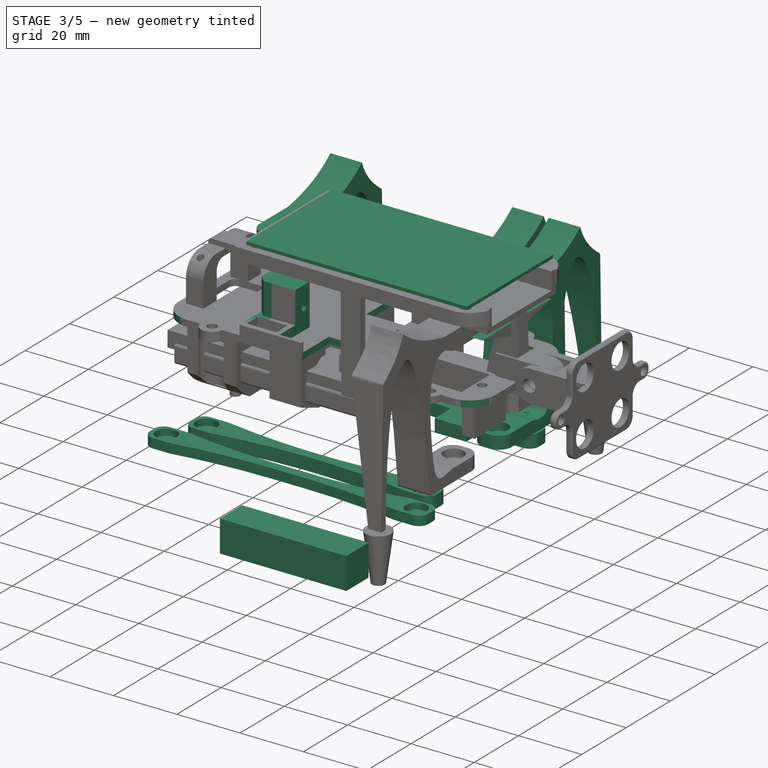
[diagram: stage 3 of 5 — iso view after this stage's code; geometry added in this stage tinted green]
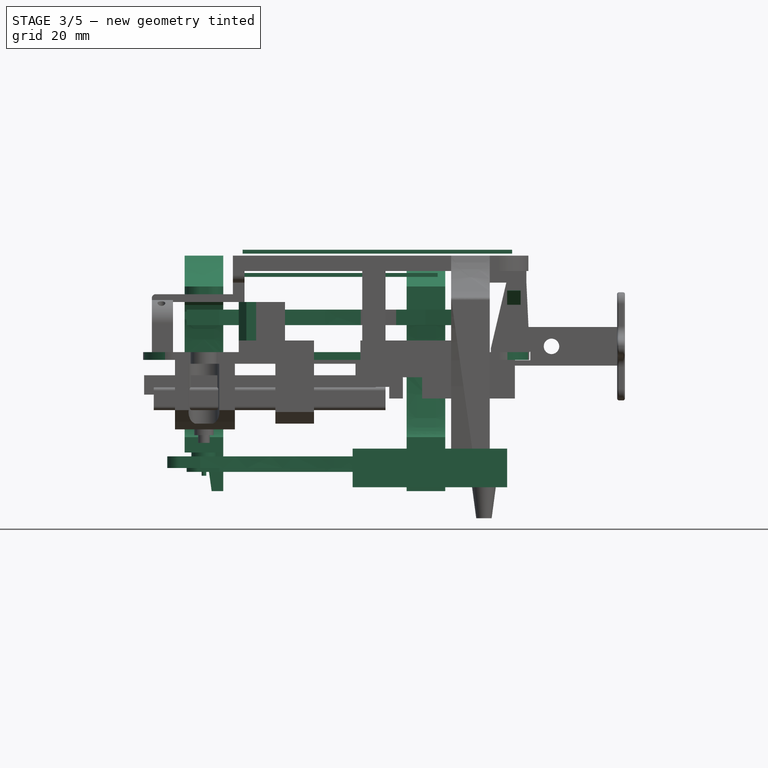
[diagram: stage 3 of 5 — front view after this stage's code; geometry added in this stage tinted green]
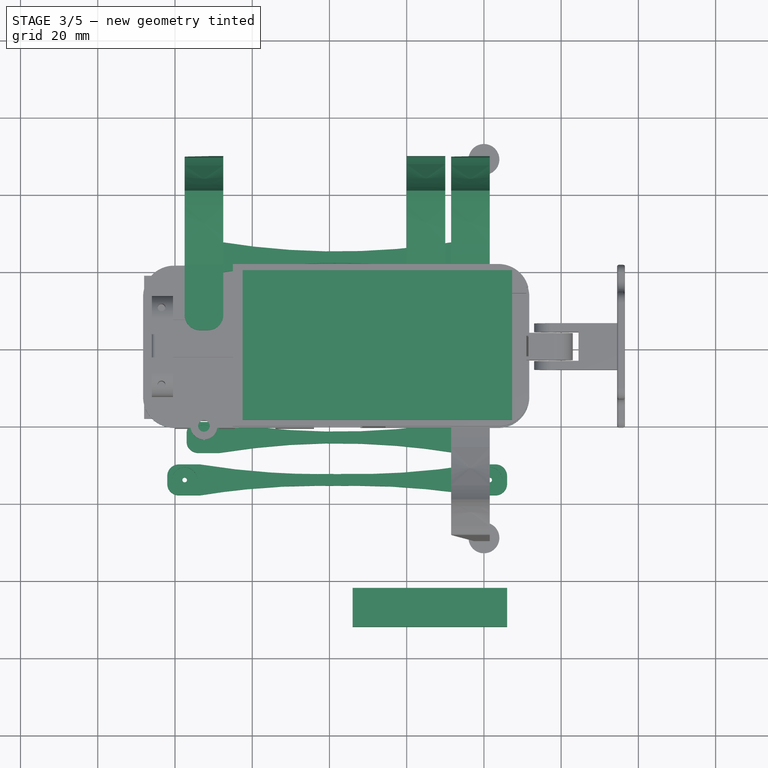
[diagram: stage 3 of 5 — top view after this stage's code; geometry added in this stage tinted green]
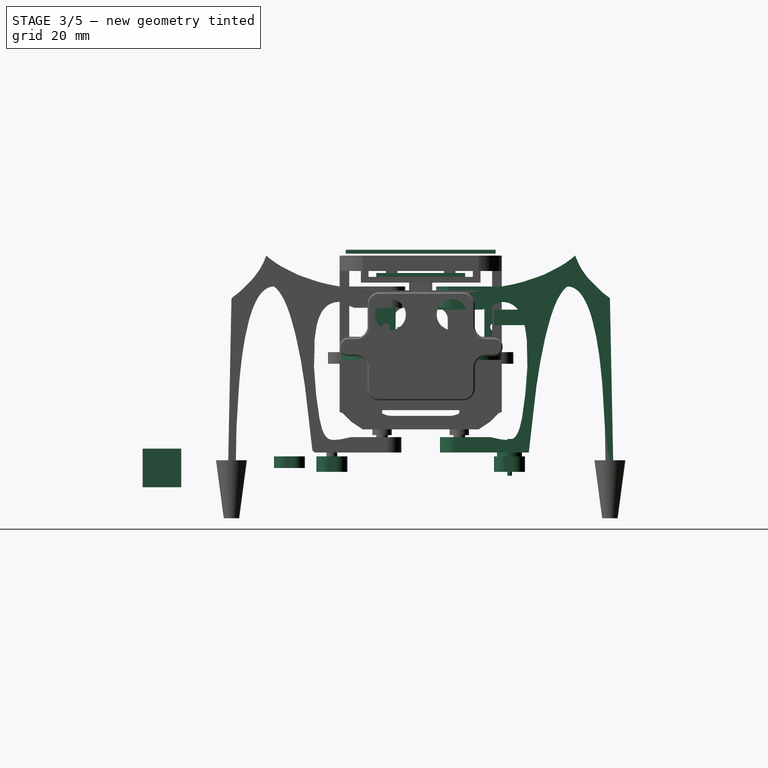
[diagram: stage 3 of 5 — right view after this stage's code; geometry added in this stage tinted green]
FEATURE [Part::Box] Box012  label="Würfel012"
  AttacherType = Attacher::AttachEngine3D
  Height = 14
  Length = 12
  Placement = pos=(-43.5,-21,-8) rot=(0,0,1;0rad)
  Width = 42
FEATURE [Part::Cylinder] Cylinder023  label="Zylinder023"
  Angle = 360
  AttacherType = Attacher::AttachEngine3D
  Height = 20
  Placement = pos=(-45,-9,-1.5) rot=(0,1,0;1.5708rad)
  Radius = 1
FEATURE [Part::Cylinder] Cylinder024  label="Zylinder024"
  Angle = 360
  AttacherType = Attacher::AttachEngine3D
  Height = 20
  Placement = pos=(-45,19,-1.5) rot=(0,1,0;1.5708rad)
  Radius = 1
FEATURE [Part::MultiFuse] Fusion010
  Shapes = -> [Cylinder023,Cylinder024]
FEATURE [Part::Cylinder] Cylinder026  label="Zylinder026"
  Angle = 360
  AttacherType = Attacher::AttachEngine3D
  Height = 5
  Placement = pos=(16.5,6.5,30) rot=(0,0,1;0rad)
  Radius = 1.5
FEATURE [Part::Box] Box014  label="Würfel014"
  AttacherType = Attacher::AttachEngine3D
  Height = 23
  Length = 23
  Width = 13
FEATURE [Part::Cylinder] Cylinder027  label="Zylinder027"
  Angle = 360
  AttacherType = Attacher::AttachEngine3D
  Height = 5
  Placement = pos=(16.5,6.5,29) rot=(0,0,1;0rad)
  Radius = 3.5
FEATURE [Part::Cylinder] Cylinder028  label="Zylinder028"
  Angle = 360
  AttacherType = Attacher::AttachEngine3D
  Height = 6
  Placement = pos=(16.5,6.5,23) rot=(0,0,1;0rad)
  Radius = 6.5
FEATURE [Part::Cylinder] Cylinder029  label="Zylinder029"
  Angle = 360
  AttacherType = Attacher::AttachEngine3D
  Height = 10
  Placement = pos=(25.5,6.5,13) rot=(0,0,1;0rad)
  Radius = 1.5
FEATURE [Part::Cylinder] Cylinder030  label="Zylinder030"
  Angle = 360
  AttacherType = Attacher::AttachEngine3D
  Height = 10
  Placement = pos=(-2.5,6.5,13) rot=(0,0,1;0rad)
  Radius = 1.5
FEATURE [Part::MultiFuse] Fusion013
  Shapes = -> [Cylinder030,Cylinder029,Cylinder026]
FEATURE [Part::Box] Box015  label="Würfel015"
  AttacherType = Attacher::AttachEngine3D
  Height = 2
  Length = 32
  Placement = pos=(-4.5,0,18) rot=(0,0,1;0rad)
  Width = 13
FEATURE [Part::MultiFuse] Fusion012
  Shapes = -> [Box014,Cylinder027,Box015,Cylinder028]
FEATURE [Part::Cut] Cut005  label="Servo3_mask"
  Base = -> Fusion012
  Placement = pos=(-49.5,16.5,5) rot=(0.57735,-0.57735,0.57735;4.18879rad)
  Tool = -> Fusion013
FEATURE [Part::Box] Box016  label="Würfel016"
  AttacherType = Attacher::AttachEngine3D
  Height = 23
  Length = 23
  Width = 13
FEATURE [Part::Cylinder] Cylinder031  label="Zylinder031"
  Angle = 360
  AttacherType = Attacher::AttachEngine3D
  Height = 5
  Placement = pos=(16.5,6.5,30) rot=(0,0,1;0rad)
  Radius = 1.5
FEATURE [Part::Cylinder] Cylinder032  label="Zylinder032"
  Angle = 360
  AttacherType = Attacher::AttachEngine3D
  Height = 10
  Placement = pos=(-2.5,6.5,13) rot=(0,0,1;0rad)
  Radius = 1.5
FEATURE [Part::Cylinder] Cylinder033  label="Zylinder033"
  Angle = 360
  AttacherType = Attacher::AttachEngine3D
  Height = 10
  Placement = pos=(25.5,6.5,13) rot=(0,0,1;0rad)
  Radius = 1.5
FEATURE [Part::MultiFuse] Fusion015
  Shapes = -> [Cylinder032,Cylinder033,Cylinder031]
FEATURE [Part::Cylinder] Cylinder034  label="Zylinder034"
  Angle = 360
  AttacherType = Attacher::AttachEngine3D
  Height = 5
  Placement = pos=(16.5,6.5,29) rot=(0,0,1;0rad)
  Radius = 3.5
FEATURE [Part::Box] Box017  label="Würfel017"
  AttacherType = Attacher::AttachEngine3D
  Height = 2
  Length = 32
  Placement = pos=(-4.5,0,18) rot=(0,0,1;0rad)
  Width = 13
FEATURE [Part::MultiFuse] Fusion014
  Shapes = -> [Box016,Cylinder034,Box017,Cylinder035]
FEATURE [Part::Cut] Cut007  label="Servo1_mask"
  Base = -> Fusion014
  Placement = pos=(0,3.5,-25) rot=(0,0,1;0rad)
  Tool = -> Fusion015
FEATURE [Part::MultiFuse] Fusion022
  Shapes = -> [Cut007,Cut008]
FEATURE [Part::MultiFuse] Fusion040
  Shapes = -> [Fusion022,Fusion039]
FEATURE [Part::Cut] Cut026
  Base = -> Fusion041
  Tool = -> Fusion040
FEATURE [Part::Box] Box040  label="Würfel040"
  AttacherType = Attacher::AttachEngine3D
  Height = 10
  Length = 12
  Placement = pos=(-24,-21.5,-11) rot=(0,0,1;0rad)
  Width = 13
FEATURE [Part::Box] Box041  label="Würfel041"
  AttacherType = Attacher::AttachEngine3D
  Height = 10
  Length = 12
  Placement = pos=(-24,8.5,-11) rot=(0,0,1;0rad)
  Width = 13
FEATURE [Part::MultiFuse] Fusion043
  Shapes = -> [Cut026,Fusion042]
FEATURE [Part::MultiFuse] Fusion044
  Shapes = -> [Box040,Box041]
FEATURE [Part::Cylinder] Cylinder092  label="Zylinder092"
  Angle = 360
  AttacherType = Attacher::AttachEngine3D
  Height = 10
  Placement = pos=(-52.5,10,-1) rot=(0,0,1;0rad)
  Radius = 3.15
FEATURE [Part::Cylinder] Cylinder093  label="Zylinder093"
  Angle = 360
  AttacherType = Attacher::AttachEngine3D
  Height = 10
  Placement = pos=(-52.5,10,-31.5) rot=(0,0,1;0rad)
  Radius = 3.15
FEATURE [Part::Box] Box047  label="Würfel047"
  AttacherType = Attacher::AttachEngine3D
  Height = 10
  Length = 12
  Placement = pos=(-58.5,3.5,-2.5) rot=(0,0,1;0rad)
  Width = 23
FEATURE [Part::Box] Box053  label="Würfel053"
  AttacherType = Attacher::AttachEngine3D
  Height = 10
  Length = 3
  Placement = pos=(-31.5,-10,-8) rot=(0,0,1;0rad)
  Width = 33
FEATURE [Part::Box] Box054  label="Würfel054"
  AttacherType = Attacher::AttachEngine3D
  Height = 10
  Length = 24
  Placement = pos=(-0.5,3.5,-12.5) rot=(0,0,1;0rad)
  Width = 13
FEATURE [Part::Box] Box055  label="Würfel055"
  AttacherType = Attacher::AttachEngine3D
  Height = 10
  Length = 24
  Placement = pos=(-0.5,-16.5,-12.5) rot=(0,0,1;0rad)
  Width = 13
FEATURE [Sketcher::SketchObject] Sketch
  MapMode = 5
  Placement = pos=(0,0,0) rot=(0.57735,0.57735,0.57735;2.0944rad)
  Support = -> [YZ_Plane]
  sketch-geometry (50):
    g0: LineSegment StartX=4 StartY=4 StartZ=0 EndX=4 EndY=10 EndZ=0
    g1: LineSegment StartX=4 StartY=10 StartZ=0 EndX=21 EndY=10 EndZ=0
    g2: LineSegment StartX=5 StartY=-29 StartZ=0 EndX=18 EndY=-29 EndZ=0
    g3: LineSegment StartX=5 StartY=-29 StartZ=0 EndX=5 EndY=-33 EndZ=0
    g4: LineSegment StartX=5 StartY=-33 StartZ=0 EndX=28 EndY=-33 EndZ=0
    g5: LineSegment StartX=4 StartY=4 StartZ=0 EndX=16 EndY=4 EndZ=0
    g6: LineSegment StartX=16 StartY=4 StartZ=0 EndX=21 EndY=6 EndZ=0
    g7: Circle [constr] CenterX=21 CenterY=10 CenterZ=0 NormalX=0 NormalY=0 NormalZ=1 AngleXU=0 Radius=2
    g8: Circle [constr] CenterX=33 CenterY=12 CenterZ=0 NormalX=0 NormalY=0 NormalZ=1 AngleXU=0 Radius=2
    g9: Circle [constr] CenterX=40 CenterY=18 CenterZ=0 NormalX=0 NormalY=0 NormalZ=1 AngleXU=0 Radius=2
    g10: BSplineCurve PolesCount=3 KnotsCount=2 Degree=2 IsPeriodic=0
    g11: GeomPoint [constr] X=21 Y=10 Z=0
    g12: GeomPoint [constr] X=40 Y=18 Z=0
    g13: Circle [constr] CenterX=40 CenterY=18 CenterZ=0 NormalX=0 NormalY=0 NormalZ=1 AngleXU=0 Radius=1
    g14: Circle [constr] CenterX=42 CenterY=12 CenterZ=0 NormalX=0 NormalY=0 NormalZ=1 AngleXU=0 Radius=1
    g15: Circle [constr] CenterX=49 CenterY=7 CenterZ=0 NormalX=0 NormalY=0 NormalZ=1 AngleXU=0 Radius=1
    g16: BSplineCurve PolesCount=3 KnotsCount=2 Degree=2 IsPeriodic=0
    g17: GeomPoint [constr] X=40 Y=18 Z=0
    g18: GeomPoint [constr] X=49 Y=7 Z=0
    g19: Circle [constr] CenterX=49 CenterY=7 CenterZ=0 NormalX=0 NormalY=0 NormalZ=1 AngleXU=0 Radius=8
    g20: Circle [constr] CenterX=50 CenterY=-43 CenterZ=0 NormalX=0 NormalY=0 NormalZ=1 AngleXU=0 Radius=8
    g21: BSplineCurve PolesCount=2 KnotsCount=2 Degree=1 IsPeriodic=0
    g22: GeomPoint [constr] X=49 Y=7 Z=0
    g23: GeomPoint [constr] X=50 Y=-43 Z=0
    g24: Circle [constr] CenterX=48 CenterY=-43 CenterZ=0 NormalX=0 NormalY=0 NormalZ=1 AngleXU=0 Radius=8
    g25: Circle [constr] CenterX=48 CenterY=10 CenterZ=0 NormalX=0 NormalY=0 NormalZ=1 AngleXU=0 Radius=8
    g26: Circle [constr] CenterX=38 CenterY=10 CenterZ=0 NormalX=0 NormalY=0 NormalZ=1 AngleXU=0 Radius=8
    g27: BSplineCurve PolesCount=3 KnotsCount=2 Degree=2 IsPeriodic=0
    g28: GeomPoint [constr] X=48 Y=-43 Z=0
    g29: GeomPoint [constr] X=38 Y=10 Z=0
    g30: LineSegment StartX=48 StartY=-43 StartZ=0 EndX=50 EndY=-43 EndZ=0
    g31: Circle [constr] CenterX=28 CenterY=-33 CenterZ=0 NormalX=0 NormalY=0 NormalZ=1 AngleXU=0 Radius=4
    g32: Circle [constr] CenterX=31.5452 CenterY=5.41621 CenterZ=0 NormalX=0 NormalY=0 NormalZ=1 AngleXU=0 Radius=4
    g33: Circle [constr] CenterX=38 CenterY=10 CenterZ=0 NormalX=0 NormalY=0 NormalZ=1 AngleXU=0 Radius=4
    g34: BSplineCurve PolesCount=3 KnotsCount=2 Degree=2 IsPeriodic=0
    g35: GeomPoint [constr] X=28 Y=-33 Z=0
    g36: GeomPoint [constr] X=38 Y=10 Z=0
    g37-g43: Circle [constr] x7 (B-spline internal-alignment scaffolding for g44; pole/knot coordinates omitted)
    g44: BSplineCurve PolesCount=7 KnotsCount=5 Degree=3 IsPeriodic=0
    g45-g49: GeomPoint [constr] x5 (B-spline internal-alignment scaffolding for g44; pole/knot coordinates omitted)
  constraints (42):
    c: Radius(g7) = 2
    c: Equal(g7,g8)
    c: Equal(g7,g9)
    c: InternalAlignment(g7,g10)
    c: InternalAlignment(g8,g10)
    c: InternalAlignment(g9,g10)
    c: InternalAlignment(g11,g10)
    c: InternalAlignment(g12,g10)
    c: Radius(g13) = 1
    c: Equal(g13,g14)
    c: Equal(g13,g15)
    c: InternalAlignment(g13,g16)
    c: InternalAlignment(g14,g16)
    c: InternalAlignment(g15,g16)
    c: InternalAlignment(g17,g16)
    c: InternalAlignment(g18,g16)
    c: Radius(g19) = 8
    c: Equal(g19,g20)
    c: InternalAlignment(g19,g21)
    c: InternalAlignment(g20,g21)
    c: InternalAlignment(g22,g21)
    c: InternalAlignment(g23,g21)
    c: Radius(g24) = 8
    c: Equal(g24,g25)
    c: Equal(g24,g26)
    c: InternalAlignment(g24,g27)
    c: InternalAlignment(g25,g27)
    c: InternalAlignment(g26,g27)
    c: InternalAlignment(g28,g27)
    c: InternalAlignment(g29,g27)
    c: Radius(g31) = 4
    c: Equal(g31,g32)
    c: Equal(g31,g33)
    c: InternalAlignment(g31,g34)
    c: InternalAlignment(g32,g34)
    c: InternalAlignment(g33,g34)
    c: InternalAlignment(g35,g34)
    c: InternalAlignment(g36,g34)
    c: Radius(g37) = 0.8
    c: Equal(g37, g38-g43) x6
    c: InternalAlignment(g37-g43 -> g44) x7
    c: InternalAlignment(g45-g49 -> g44) x5
FEATURE [PartDesign::Pad] Pad
  Length = 10
  Length2 = 100
  Placement = pos=(0,0,0) rot=(0.57735,0.57735,0.57735;2.0944rad)
  Profile = -> Sketch
  Type = 0
FEATURE [Part::Cylinder] Cylinder095  label="Zylinder095"
  Angle = 360
  AttacherType = Attacher::AttachEngine3D
  Height = 3.5
  Placement = pos=(16.5,23,-36) rot=(0,0,1;0rad)
  Radius = 3.25
FEATURE [Part::Cylinder] Cylinder096  label="Zylinder096"
  Angle = 360
  AttacherType = Attacher::AttachEngine3D
  Height = 20
  Placement = pos=(-52.5,23,-38.5) rot=(0,0,1;0rad)
  Radius = 0.6
FEATURE [Part::Box] Box062  label="Würfel062"
  AttacherType = Attacher::AttachEngine3D
  Height = 5
  Length = 5
  Placement = pos=(-29,5,-8) rot=(0,0,1;0rad)
  Width = 6
FEATURE [Part::Cylinder] Cylinder097  label="Zylinder097"
  Angle = 360
  AttacherType = Attacher::AttachEngine3D
  Height = 3.5
  Placement = pos=(-52.5,23,-36) rot=(0,0,1;0rad)
  Radius = 3.25
FEATURE [Part::Box] Box065  label="Würfel065"
  AttacherType = Attacher::AttachEngine3D
  Height = 12
  Length = 12
  Placement = pos=(-45,-22,-5) rot=(0,0,1;0rad)
  Width = 9
FEATURE [Part::MultiFuse] Fusion063
  Placement = pos=(0,0,1) rot=(0,0,1;0rad)
  Shapes = -> [Box065,Fusion010,Cut005,Box053,Box055,Box054,Box062]
FEATURE [Part::MultiFuse] Fusion065
  Shapes = -> [Box012,Fusion043]
FEATURE [Part::Cut] Cut046
  Base = -> Fusion065
  Tool = -> Fusion044
FEATURE [Part::Cut] Cut047
  Base = -> Cut046
  Tool = -> Fusion063
FEATURE [Part::Chamfer] Chamfer006
  Base = -> Box047
  Edges = 1 edges r=3: [Edge12]
FEATURE [Part::Chamfer] Chamfer007
  Base = -> Chamfer006
  Edges = 1 edges r=1: [Edge9]
FEATURE [Part::MultiFuse] Fusion072
  Shapes = -> [Cylinder093,Cylinder092,Cylinder096,Chamfer007]
FEATURE [App::DocumentObjectGroup] Gruppe002  label="leg_front_left"
  Group = -> [Fillet060]
FEATURE [Sketcher::SketchObject] Sketch008
  MapMode = 5
  Placement = pos=(0,0,0) rot=(0.57735,0.57735,0.57735;2.0944rad)
  Support = -> [YZ_Plane016]
  sketch-geometry (50):
    g0: LineSegment StartX=4 StartY=4 StartZ=0 EndX=4 EndY=10 EndZ=0
    g1: LineSegment StartX=4 StartY=10 StartZ=0 EndX=21 EndY=10 EndZ=0
    g2: LineSegment StartX=5 StartY=-29 StartZ=0 EndX=18 EndY=-29 EndZ=0
    g3: LineSegment StartX=5 StartY=-29 StartZ=0 EndX=5 EndY=-33 EndZ=0
    g4: LineSegment StartX=5 StartY=-33 StartZ=0 EndX=28 EndY=-33 EndZ=0
    g5: LineSegment StartX=4 StartY=4 StartZ=0 EndX=16 EndY=4 EndZ=0
    g6: LineSegment StartX=16 StartY=4 StartZ=0 EndX=21 EndY=6 EndZ=0
    g7: Circle [constr] CenterX=21 CenterY=10 CenterZ=0 NormalX=0 NormalY=0 NormalZ=1 AngleXU=0 Radius=2
    g8: Circle [constr] CenterX=33 CenterY=12 CenterZ=0 NormalX=0 NormalY=0 NormalZ=1 AngleXU=0 Radius=2
    g9: Circle [constr] CenterX=40 CenterY=18 CenterZ=0 NormalX=0 NormalY=0 NormalZ=1 AngleXU=0 Radius=2
    g10: BSplineCurve PolesCount=3 KnotsCount=2 Degree=2 IsPeriodic=0
    g11: GeomPoint [constr] X=21 Y=10 Z=0
    g12: GeomPoint [constr] X=40 Y=18 Z=0
    g13: Circle [constr] CenterX=40 CenterY=18 CenterZ=0 NormalX=0 NormalY=0 NormalZ=1 AngleXU=0 Radius=1
    g14: Circle [constr] CenterX=42 CenterY=12 CenterZ=0 NormalX=0 NormalY=0 NormalZ=1 AngleXU=0 Radius=1
    g15: Circle [constr] CenterX=49 CenterY=7 CenterZ=0 NormalX=0 NormalY=0 NormalZ=1 AngleXU=0 Radius=1
    g16: BSplineCurve PolesCount=3 KnotsCount=2 Degree=2 IsPeriodic=0
    g17: GeomPoint [constr] X=40 Y=18 Z=0
    g18: GeomPoint [constr] X=49 Y=7 Z=0
    g19: Circle [constr] CenterX=49 CenterY=7 CenterZ=0 NormalX=0 NormalY=0 NormalZ=1 AngleXU=0 Radius=8
    g20: Circle [constr] CenterX=50 CenterY=-43 CenterZ=0 NormalX=0 NormalY=0 NormalZ=1 AngleXU=0 Radius=8
    g21: BSplineCurve PolesCount=2 KnotsCount=2 Degree=1 IsPeriodic=0
    g22: GeomPoint [constr] X=49 Y=7 Z=0
    g23: GeomPoint [constr] X=50 Y=-43 Z=0
    g24: Circle [constr] CenterX=48 CenterY=-43 CenterZ=0 NormalX=0 NormalY=0 NormalZ=1 AngleXU=0 Radius=8
    g25: Circle [constr] CenterX=48 CenterY=10 CenterZ=0 NormalX=0 NormalY=0 NormalZ=1 AngleXU=0 Radius=8
    g26: Circle [constr] CenterX=38 CenterY=10 CenterZ=0 NormalX=0 NormalY=0 NormalZ=1 AngleXU=0 Radius=8
    g27: BSplineCurve PolesCount=3 KnotsCount=2 Degree=2 IsPeriodic=0
    g28: GeomPoint [constr] X=48 Y=-43 Z=0
    g29: GeomPoint [constr] X=38 Y=10 Z=0
    g30: LineSegment StartX=48 StartY=-43 StartZ=0 EndX=50 EndY=-43 EndZ=0
    g31: Circle [constr] CenterX=28 CenterY=-33 CenterZ=0 NormalX=0 NormalY=0 NormalZ=1 AngleXU=0 Radius=4
    g32: Circle [constr] CenterX=31.5452 CenterY=5.41621 CenterZ=0 NormalX=0 NormalY=0 NormalZ=1 AngleXU=0 Radius=4
    g33: Circle [constr] CenterX=38 CenterY=10 CenterZ=0 NormalX=0 NormalY=0 NormalZ=1 AngleXU=0 Radius=4
    g34: BSplineCurve PolesCount=3 KnotsCount=2 Degree=2 IsPeriodic=0
    g35: GeomPoint [constr] X=28 Y=-33 Z=0
    g36: GeomPoint [constr] X=38 Y=10 Z=0
    g37-g43: Circle [constr] x7 (B-spline internal-alignment scaffolding for g44; pole/knot coordinates omitted)
    g44: BSplineCurve PolesCount=7 KnotsCount=5 Degree=3 IsPeriodic=0
    g45-g49: GeomPoint [constr] x5 (B-spline internal-alignment scaffolding for g44; pole/knot coordinates omitted)
  constraints (42):
    c: Radius(g7) = 2
    c: Equal(g7,g8)
    c: Equal(g7,g9)
    c: InternalAlignment(g7,g10)
    c: InternalAlignment(g8,g10)
    c: InternalAlignment(g9,g10)
    c: InternalAlignment(g11,g10)
    c: InternalAlignment(g12,g10)
    c: Radius(g13) = 1
    c: Equal(g13,g14)
    c: Equal(g13,g15)
    c: InternalAlignment(g13,g16)
    c: InternalAlignment(g14,g16)
    c: InternalAlignment(g15,g16)
    c: InternalAlignment(g17,g16)
    c: InternalAlignment(g18,g16)
    c: Radius(g19) = 8
    c: Equal(g19,g20)
    c: InternalAlignment(g19,g21)
    c: InternalAlignment(g20,g21)
    c: InternalAlignment(g22,g21)
    c: InternalAlignment(g23,g21)
    c: Radius(g24) = 8
    c: Equal(g24,g25)
    c: Equal(g24,g26)
    c: InternalAlignment(g24,g27)
    c: InternalAlignment(g25,g27)
    c: InternalAlignment(g26,g27)
    c: InternalAlignment(g28,g27)
    c: InternalAlignment(g29,g27)
    c: Radius(g31) = 4
    c: Equal(g31,g32)
    c: Equal(g31,g33)
    c: InternalAlignment(g31,g34)
    c: InternalAlignment(g32,g34)
    c: InternalAlignment(g33,g34)
    c: InternalAlignment(g35,g34)
    c: InternalAlignment(g36,g34)
    c: Radius(g37) = 0.8
    c: Equal(g37, g38-g43) x6
    c: InternalAlignment(g37-g43 -> g44) x7
    c: InternalAlignment(g45-g49 -> g44) x5
FEATURE [Part::Cylinder] Cylinder120  label="Zylinder120"
  Angle = 360
  AttacherType = Attacher::AttachEngine3D
  Height = 2.5
  Placement = pos=(16.5,23,-35.5) rot=(0,0,1;0rad)
  Radius = 1.4
FEATURE [PartDesign::Pad] Pad008
  Length = 10
  Length2 = 100
  Placement = pos=(0,0,0) rot=(0.57735,0.57735,0.57735;2.0944rad)
  Profile = -> Sketch008
  Type = 0
FEATURE [PartDesign::Body] Pad008Body
  Group = -> [Sketch008,Pad008]
  Origin = -> Origin006
  Tip = -> Pad008
FEATURE [Part::Chamfer] Chamfer011
  Base = -> Pad008Body
  Edges = 1 edges: [Edge21 r1=7 r2=50]
  Placement = pos=(11.5,0,0) rot=(0,0,1;0rad)
FEATURE [Part::Fillet] Fillet063
  Base = -> Chamfer011
  Edges = 1 edges r=1: [Edge4]
FEATURE [Part::Fillet] Fillet064
  Base = -> Fillet063
  Edges = 1 edges r=1: [Edge44]
FEATURE [Part::Fillet] Fillet062
  Base = -> Fillet064
  Edges = 2 edges r=4: [Edge16,Edge50]
FEATURE [Part::MultiFuse] Fusion080
  Placement = pos=(-69,0,0) rot=(0,0,1;0rad)
  Shapes = -> [Cylinder120,Fillet062]
FEATURE [Part::Cut] Cut060
  Base = -> Fusion080
  Tool = -> Fusion072
FEATURE [App::DocumentObjectGroup] Gruppe001  label="leg_rear_left"
  Group = -> [Fillet065]
FEATURE [Sketcher::SketchObject] Sketch009
  MapMode = 5
  Support = -> [XY_Plane007]
  sketch-geometry (18):
    g0: LineSegment StartX=-57 StartY=19 StartZ=0 EndX=-57 EndY=27 EndZ=0
    g1: LineSegment StartX=-57 StartY=19 StartZ=0 EndX=-48.5 EndY=19 EndZ=0
    g2: LineSegment StartX=-57 StartY=27 StartZ=0 EndX=-48.5 EndY=27 EndZ=0
    g3: LineSegment StartX=12.5 StartY=19 StartZ=0 EndX=21 EndY=19 EndZ=0
    g4: LineSegment StartX=21 StartY=19 StartZ=0 EndX=21 EndY=27 EndZ=0
    g5: LineSegment StartX=21 StartY=27 StartZ=0 EndX=12.5 EndY=27 EndZ=0
    g6: Circle [constr] CenterX=-48.5 CenterY=19 CenterZ=0 NormalX=0 NormalY=0 NormalZ=1 AngleXU=0 Radius=5
    g7: Circle [constr] CenterX=-18 CenterY=24 CenterZ=0 NormalX=0 NormalY=0 NormalZ=1 AngleXU=0 Radius=5
    g8: Circle [constr] CenterX=12.5 CenterY=19 CenterZ=0 NormalX=0 NormalY=0 NormalZ=1 AngleXU=0 Radius=5
    g9: BSplineCurve PolesCount=3 KnotsCount=2 Degree=2 IsPeriodic=0
    g10: GeomPoint [constr] X=-48.5 Y=19 Z=0
    g11: GeomPoint [constr] X=12.5 Y=19 Z=0
    g12: Circle [constr] CenterX=-48.5 CenterY=27 CenterZ=0 NormalX=0 NormalY=0 NormalZ=1 AngleXU=0 Radius=5
    g13: Circle [constr] CenterX=-18 CenterY=22 CenterZ=0 NormalX=0 NormalY=0 NormalZ=1 AngleXU=0 Radius=5
    g14: Circle [constr] CenterX=12.5 CenterY=27 CenterZ=0 NormalX=0 NormalY=0 NormalZ=1 AngleXU=0 Radius=5
    g15: BSplineCurve PolesCount=3 KnotsCount=2 Degree=2 IsPeriodic=0
    g16: GeomPoint [constr] X=-48.5 Y=27 Z=0
    g17: GeomPoint [constr] X=12.5 Y=27 Z=0
  constraints (16):
    c: Radius(g6) = 5
    c: Equal(g6,g7)
    c: Equal(g6,g8)
    c: InternalAlignment(g6,g9)
    c: InternalAlignment(g7,g9)
    c: InternalAlignment(g8,g9)
    c: InternalAlignment(g10,g9)
    c: InternalAlignment(g11,g9)
    c: Radius(g12) = 5
    c: Equal(g12,g13)
    c: Equal(g12,g14)
    c: InternalAlignment(g12,g15)
    c: InternalAlignment(g13,g15)
    c: InternalAlignment(g14,g15)
    c: InternalAlignment(g16,g15)
    c: InternalAlignment(g17,g15)
FEATURE [PartDesign::Pad] Pad009
  Length = 4
  Length2 = 100
  Profile = -> Sketch009
  Type = 0
FEATURE [PartDesign::Body] Body002
  Group = -> [Sketch009,Pad009]
  Origin = -> Origin007
  Placement = pos=(0,0,-38) rot=(0,0,1;0rad)
  Tip = -> Pad009
FEATURE [App::Part] Part
  Group = -> [Pad008Body,Body002]
  Origin = -> Origin005
  Placement = pos=(0,0,1) rot=(0,0,1;0rad)
FEATURE [Part::Cylinder] Cylinder121  label="Zylinder121"
  Angle = 360
  AttacherType = Attacher::AttachEngine3D
  Height = 9.5
  Placement = pos=(16.5,23,-39) rot=(0,0,1;0rad)
  Radius = 0.6
FEATURE [Part::Cylinder] Cylinder122  label="Zylinder122"
  Angle = 360
  AttacherType = Attacher::AttachEngine3D
  Height = 9.5
  Placement = pos=(-52.5,23,-39) rot=(0,0,1;0rad)
  Radius = 0.6
FEATURE [Part::MultiFuse] Fusion081
  Shapes = -> [Cylinder095,Cylinder097,Cylinder121,Cylinder122]
FEATURE [Sketcher::SketchObject] Sketch010
  MapMode = 5
  Placement = pos=(0,0,0) rot=(0.57735,0.57735,0.57735;2.0944rad)
  Support = -> [YZ_Plane025]
  sketch-geometry (50):
    g0: LineSegment StartX=4 StartY=4 StartZ=0 EndX=4 EndY=10 EndZ=0
    g1: LineSegment StartX=4 StartY=10 StartZ=0 EndX=21 EndY=10 EndZ=0
    g2: LineSegment StartX=5 StartY=-29 StartZ=0 EndX=18 EndY=-29 EndZ=0
    g3: LineSegment StartX=5 StartY=-29 StartZ=0 EndX=5 EndY=-33 EndZ=0
    g4: LineSegment StartX=5 StartY=-33 StartZ=0 EndX=28 EndY=-33 EndZ=0
    g5: LineSegment StartX=4 StartY=4 StartZ=0 EndX=16 EndY=4 EndZ=0
    g6: LineSegment StartX=16 StartY=4 StartZ=0 EndX=21 EndY=6 EndZ=0
    g7: Circle [constr] CenterX=21 CenterY=10 CenterZ=0 NormalX=0 NormalY=0 NormalZ=1 AngleXU=0 Radius=2
    g8: Circle [constr] CenterX=33 CenterY=12 CenterZ=0 NormalX=0 NormalY=0 NormalZ=1 AngleXU=0 Radius=2
    g9: Circle [constr] CenterX=40 CenterY=18 CenterZ=0 NormalX=0 NormalY=0 NormalZ=1 AngleXU=0 Radius=2
    g10: BSplineCurve PolesCount=3 KnotsCount=2 Degree=2 IsPeriodic=0
    g11: GeomPoint [constr] X=21 Y=10 Z=0
    g12: GeomPoint [constr] X=40 Y=18 Z=0
    g13: Circle [constr] CenterX=40 CenterY=18 CenterZ=0 NormalX=0 NormalY=0 NormalZ=1 AngleXU=0 Radius=1
    g14: Circle [constr] CenterX=42 CenterY=12 CenterZ=0 NormalX=0 NormalY=0 NormalZ=1 AngleXU=0 Radius=1
    g15: Circle [constr] CenterX=49 CenterY=7 CenterZ=0 NormalX=0 NormalY=0 NormalZ=1 AngleXU=0 Radius=1
    g16: BSplineCurve PolesCount=3 KnotsCount=2 Degree=2 IsPeriodic=0
    g17: GeomPoint [constr] X=40 Y=18 Z=0
    g18: GeomPoint [constr] X=49 Y=7 Z=0
    g19: Circle [constr] CenterX=49 CenterY=7 CenterZ=0 NormalX=0 NormalY=0 NormalZ=1 AngleXU=0 Radius=8
    g20: Circle [constr] CenterX=50 CenterY=-43 CenterZ=0 NormalX=0 NormalY=0 NormalZ=1 AngleXU=0 Radius=8
    g21: BSplineCurve PolesCount=2 KnotsCount=2 Degree=1 IsPeriodic=0
    g22: GeomPoint [constr] X=49 Y=7 Z=0
    g23: GeomPoint [constr] X=50 Y=-43 Z=0
    g24: Circle [constr] CenterX=48 CenterY=-43 CenterZ=0 NormalX=0 NormalY=0 NormalZ=1 AngleXU=0 Radius=8
    g25: Circle [constr] CenterX=48 CenterY=10 CenterZ=0 NormalX=0 NormalY=0 NormalZ=1 AngleXU=0 Radius=8
    g26: Circle [constr] CenterX=38 CenterY=10 CenterZ=0 NormalX=0 NormalY=0 NormalZ=1 AngleXU=0 Radius=8
    g27: BSplineCurve PolesCount=3 KnotsCount=2 Degree=2 IsPeriodic=0
    g28: GeomPoint [constr] X=48 Y=-43 Z=0
    g29: GeomPoint [constr] X=38 Y=10 Z=0
    g30: LineSegment StartX=48 StartY=-43 StartZ=0 EndX=50 EndY=-43 EndZ=0
    g31: Circle [constr] CenterX=28 CenterY=-33 CenterZ=0 NormalX=0 NormalY=0 NormalZ=1 AngleXU=0 Radius=4
    g32: Circle [constr] CenterX=31.5452 CenterY=5.41621 CenterZ=0 NormalX=0 NormalY=0 NormalZ=1 AngleXU=0 Radius=4
    g33: Circle [constr] CenterX=38 CenterY=10 CenterZ=0 NormalX=0 NormalY=0 NormalZ=1 AngleXU=0 Radius=4
    g34: BSplineCurve PolesCount=3 KnotsCount=2 Degree=2 IsPeriodic=0
    g35: GeomPoint [constr] X=28 Y=-33 Z=0
    g36: GeomPoint [constr] X=38 Y=10 Z=0
    g37-g43: Circle [constr] x7 (B-spline internal-alignment scaffolding for g44; pole/knot coordinates omitted)
    g44: BSplineCurve PolesCount=7 KnotsCount=5 Degree=3 IsPeriodic=0
    g45-g49: GeomPoint [constr] x5 (B-spline internal-alignment scaffolding for g44; pole/knot coordinates omitted)
  constraints (42):
    c: Radius(g7) = 2
    c: Equal(g7,g8)
    c: Equal(g7,g9)
    c: InternalAlignment(g7,g10)
    c: InternalAlignment(g8,g10)
    c: InternalAlignment(g9,g10)
    c: InternalAlignment(g11,g10)
    c: InternalAlignment(g12,g10)
    c: Radius(g13) = 1
    c: Equal(g13,g14)
    c: Equal(g13,g15)
    c: InternalAlignment(g13,g16)
    c: InternalAlignment(g14,g16)
    c: InternalAlignment(g15,g16)
    c: InternalAlignment(g17,g16)
    c: InternalAlignment(g18,g16)
    c: Radius(g19) = 8
    c: Equal(g19,g20)
    c: InternalAlignment(g19,g21)
    c: InternalAlignment(g20,g21)
    c: InternalAlignment(g22,g21)
    c: InternalAlignment(g23,g21)
    c: Radius(g24) = 8
    c: Equal(g24,g25)
    c: Equal(g24,g26)
    c: InternalAlignment(g24,g27)
    c: InternalAlignment(g25,g27)
    c: InternalAlignment(g26,g27)
    c: InternalAlignment(g28,g27)
    c: InternalAlignment(g29,g27)
    c: Radius(g31) = 4
    c: Equal(g31,g32)
    c: Equal(g31,g33)
    c: InternalAlignment(g31,g34)
    c: InternalAlignment(g32,g34)
    c: InternalAlignment(g33,g34)
    c: InternalAlignment(g35,g34)
    c: InternalAlignment(g36,g34)
    c: Radius(g37) = 0.8
    c: Equal(g37, g38-g43) x6
    c: InternalAlignment(g37-g43 -> g44) x7
    c: InternalAlignment(g45-g49 -> g44) x5
FEATURE [Part::Wedge] Wedge004  label="Keil004"
  AttacherType = Attacher::AttachEngine3D
  Placement = pos=(12.5,10,0) rot=(0,0,1;0rad)
  X2max = 6
  X2min = 2
  Xmax = 8
  Xmin = 0
  Ymax = 18
  Ymin = 0
  Z2max = 8
  Z2min = 2
  Zmax = 8
  Zmin = 2
FEATURE [Part::Cylinder] Cylinder123  label="Zylinder123"
  Angle = 360
  AttacherType = Attacher::AttachEngine3D
  Height = 10
  Placement = pos=(16.5,10,-2) rot=(0,0,1;0rad)
  Radius = 4.25
FEATURE [Part::Box] Box074  label="Würfel074"
  AttacherType = Attacher::AttachEngine3D
  Height = 7
  Length = 7
  Placement = pos=(13,1,1) rot=(0,0,1;0rad)
  Width = 9
FEATURE [Part::Cylinder] Cylinder124  label="Zylinder124"
  Angle = 360
  AttacherType = Attacher::AttachEngine3D
  Height = 3
  Placement = pos=(16.5,10,9.5) rot=(0,0,1;0rad)
  Radius = 3
FEATURE [Part::Cylinder] Cylinder125  label="Zylinder125"
  Angle = 360
  AttacherType = Attacher::AttachEngine3D
  Height = 14
  Placement = pos=(16.5,10,-2) rot=(0,0,1;0rad)
  Radius = 1.5
FEATURE [Part::Cylinder] Cylinder126  label="Zylinder126"
  Angle = 360
  AttacherType = Attacher::AttachEngine3D
  Height = 10
  Placement = pos=(16.5,10,-31.5) rot=(0,0,1;0rad)
  Radius = 3.15
FEATURE [Part::MultiFuse] Fusion082
  Shapes = -> [Cylinder126,Cylinder123,Wedge004,Box074,Cylinder125,Cylinder124]
FEATURE [Part::Cylinder] Cylinder127  label="Zylinder127"
  Angle = 360
  AttacherType = Attacher::AttachEngine3D
  Height = 20
  Placement = pos=(16.5,23,-38.5) rot=(0,0,1;0rad)
  Radius = 0.6
FEATURE [Part::Cylinder] Cylinder128  label="Zylinder128"
  Angle = 360
  AttacherType = Attacher::AttachEngine3D
  Height = 2.5
  Placement = pos=(16.5,23,-35.5) rot=(0,0,1;0rad)
  Radius = 1.4
FEATURE [PartDesign::Pad] Pad010
  Length = 10
  Length2 = 100
  Placement = pos=(0,0,0) rot=(0.57735,0.57735,0.57735;2.0944rad)
  Profile = -> Sketch010
  Type = 0
FEATURE [Part::Box] Box075  label="Würfel075"
  AttacherType = Attacher::AttachEngine3D
  Height = 0.5
  Length = 12
  Placement = pos=(10.5,2.5,4) rot=(0,0,1;0rad)
  Width = 16
FEATURE [Part::MultiFuse] Fusion084
  Shapes = -> [Cylinder127,Fusion082]
FEATURE [App::DocumentObjectGroup] Gruppe013  label="leg_rear_right"
  Group = -> [Part__Mirroring002]
FEATURE [Part::Cut] Cut061
  Base = -> Body002
  Tool = -> Fusion081
FEATURE [Part::Fillet] Fillet075
  Base = -> Cut061
  Edges = 4 edges r=3: [Edge5,Edge8,Edge25,Edge26]
FEATURE [Sketcher::SketchObject] Sketch012
  MapMode = 5
  Support = -> [XY_Plane009]
  sketch-geometry (18):
    g0: LineSegment StartX=-57 StartY=19 StartZ=0 EndX=-57 EndY=27 EndZ=0
    g1: LineSegment StartX=-57 StartY=19 StartZ=0 EndX=-48.5 EndY=19 EndZ=0
    g2: LineSegment StartX=-57 StartY=27 StartZ=0 EndX=-48.5 EndY=27 EndZ=0
    g3: LineSegment StartX=12.5 StartY=19 StartZ=0 EndX=21 EndY=19 EndZ=0
    g4: LineSegment StartX=21 StartY=19 StartZ=0 EndX=21 EndY=27 EndZ=0
    g5: LineSegment StartX=21 StartY=27 StartZ=0 EndX=12.5 EndY=27 EndZ=0
    g6: Circle [constr] CenterX=-48.5 CenterY=19 CenterZ=0 NormalX=0 NormalY=0 NormalZ=1 AngleXU=0 Radius=5
    g7: Circle [constr] CenterX=-18 CenterY=24 CenterZ=0 NormalX=0 NormalY=0 NormalZ=1 AngleXU=0 Radius=5
    g8: Circle [constr] CenterX=12.5 CenterY=19 CenterZ=0 NormalX=0 NormalY=0 NormalZ=1 AngleXU=0 Radius=5
    g9: BSplineCurve PolesCount=3 KnotsCount=2 Degree=2 IsPeriodic=0
    g10: GeomPoint [constr] X=-48.5 Y=19 Z=0
    g11: GeomPoint [constr] X=12.5 Y=19 Z=0
    g12: Circle [constr] CenterX=-48.5 CenterY=27 CenterZ=0 NormalX=0 NormalY=0 NormalZ=1 AngleXU=0 Radius=5
    g13: Circle [constr] CenterX=-18 CenterY=22 CenterZ=0 NormalX=0 NormalY=0 NormalZ=1 AngleXU=0 Radius=5
    g14: Circle [constr] CenterX=12.5 CenterY=27 CenterZ=0 NormalX=0 NormalY=0 NormalZ=1 AngleXU=0 Radius=5
    g15: BSplineCurve PolesCount=3 KnotsCount=2 Degree=2 IsPeriodic=0
    g16: GeomPoint [constr] X=-48.5 Y=27 Z=0
    g17: GeomPoint [constr] X=12.5 Y=27 Z=0
  constraints (16):
    c: Radius(g6) = 5
    c: Equal(g6,g7)
    c: Equal(g6,g8)
    c: InternalAlignment(g6,g9)
    c: InternalAlignment(g7,g9)
    c: InternalAlignment(g8,g9)
    c: InternalAlignment(g10,g9)
    c: InternalAlignment(g11,g9)
    c: Radius(g12) = 5
    c: Equal(g12,g13)
    c: Equal(g12,g14)
    c: InternalAlignment(g12,g15)
    c: InternalAlignment(g13,g15)
    c: InternalAlignment(g14,g15)
    c: InternalAlignment(g16,g15)
    c: InternalAlignment(g17,g15)
FEATURE [Part::Cylinder] Cylinder133  label="Zylinder133"
  Angle = 360
  AttacherType = Attacher::AttachEngine3D
  Height = 3.5
  Placement = pos=(16.5,23,-36) rot=(0,0,1;0rad)
  Radius = 3.25
FEATURE [Part::Cylinder] Cylinder134  label="Zylinder134"
  Angle = 360
  AttacherType = Attacher::AttachEngine3D
  Height = 3.5
  Placement = pos=(-52.5,23,-36) rot=(0,0,1;0rad)
  Radius = 3.25
FEATURE [Part::Cylinder] Cylinder135  label="Zylinder135"
  Angle = 360
  AttacherType = Attacher::AttachEngine3D
  Height = 9.5
  Placement = pos=(-52.5,23,-39) rot=(0,0,1;0rad)
  Radius = 0.6
FEATURE [PartDesign::Pad] Pad012
  Length = 4
  Length2 = 100
  Profile = -> Sketch012
  Type = 0
FEATURE [PartDesign::Body] Body003
  Group = -> [Sketch012,Pad012]
  Origin = -> Origin009
  Placement = pos=(0,0,-38) rot=(0,0,1;0rad)
  Tip = -> Pad012
FEATURE [Part::Cylinder] Cylinder136  label="Zylinder136"
  Angle = 360
  AttacherType = Attacher::AttachEngine3D
  Height = 9.5
  Placement = pos=(16.5,23,-39) rot=(0,0,1;0rad)
  Radius = 0.6
FEATURE [Part::MultiFuse] Fusion087
  Shapes = -> [Cylinder133,Cylinder134,Cylinder136,Cylinder135]
FEATURE [Part::Cut] Cut065
  Base = -> Body003
  Tool = -> Fusion087
FEATURE [Part::Fillet] Fillet076
  Base = -> Cut065
  Edges = 4 edges r=3: [Edge5,Edge8,Edge25,Edge26]
  Placement = pos=(0,-46,0) rot=(0,0,1;0rad)
FEATURE [Sketcher::SketchObject] Sketch013
  MapMode = 5
  Support = -> [XY_Plane010]
  sketch-geometry (18):
    g0: LineSegment StartX=-57 StartY=19 StartZ=0 EndX=-57 EndY=27 EndZ=0
    g1: LineSegment StartX=-57 StartY=19 StartZ=0 EndX=-48.5 EndY=19 EndZ=0
    g2: LineSegment StartX=-57 StartY=27 StartZ=0 EndX=-48.5 EndY=27 EndZ=0
    g3: LineSegment StartX=12.5 StartY=19 StartZ=0 EndX=21 EndY=19 EndZ=0
    g4: LineSegment StartX=21 StartY=19 StartZ=0 EndX=21 EndY=27 EndZ=0
    g5: LineSegment StartX=21 StartY=27 StartZ=0 EndX=12.5 EndY=27 EndZ=0
    g6: Circle [constr] CenterX=-48.5 CenterY=19 CenterZ=0 NormalX=0 NormalY=0 NormalZ=1 AngleXU=0 Radius=5
    g7: Circle [constr] CenterX=-18 CenterY=24 CenterZ=0 NormalX=0 NormalY=0 NormalZ=1 AngleXU=0 Radius=5
    g8: Circle [constr] CenterX=12.5 CenterY=19 CenterZ=0 NormalX=0 NormalY=0 NormalZ=1 AngleXU=0 Radius=5
    g9: BSplineCurve PolesCount=3 KnotsCount=2 Degree=2 IsPeriodic=0
    g10: GeomPoint [constr] X=-48.5 Y=19 Z=0
    g11: GeomPoint [constr] X=12.5 Y=19 Z=0
    g12: Circle [constr] CenterX=-48.5 CenterY=27 CenterZ=0 NormalX=0 NormalY=0 NormalZ=1 AngleXU=0 Radius=5
    g13: Circle [constr] CenterX=-18 CenterY=22 CenterZ=0 NormalX=0 NormalY=0 NormalZ=1 AngleXU=0 Radius=5
    g14: Circle [constr] CenterX=12.5 CenterY=27 CenterZ=0 NormalX=0 NormalY=0 NormalZ=1 AngleXU=0 Radius=5
    g15: BSplineCurve PolesCount=3 KnotsCount=2 Degree=2 IsPeriodic=0
    g16: GeomPoint [constr] X=-48.5 Y=27 Z=0
    g17: GeomPoint [constr] X=12.5 Y=27 Z=0
  constraints (16):
    c: Radius(g6) = 5
    c: Equal(g6,g7)
    c: Equal(g6,g8)
    c: InternalAlignment(g6,g9)
    c: InternalAlignment(g7,g9)
    c: InternalAlignment(g8,g9)
    c: InternalAlignment(g10,g9)
    c: InternalAlignment(g11,g9)
    c: Radius(g12) = 5
    c: Equal(g12,g13)
    c: Equal(g12,g14)
    c: InternalAlignment(g12,g15)
    c: InternalAlignment(g13,g15)
    c: InternalAlignment(g14,g15)
    c: InternalAlignment(g16,g15)
    c: InternalAlignment(g17,g15)
FEATURE [Part::Cylinder] Cylinder137  label="Zylinder137"
  Angle = 360
  AttacherType = Attacher::AttachEngine3D
  Height = 3.5
  Placement = pos=(-52.5,23,-36) rot=(0,0,1;0rad)
  Radius = 3.25
FEATURE [Part::Cylinder] Cylinder138  label="Zylinder138"
  Angle = 360
  AttacherType = Attacher::AttachEngine3D
  Height = 9.5
  Placement = pos=(-52.5,23,-39) rot=(0,0,1;0rad)
  Radius = 0.6
FEATURE [PartDesign::Pad] Pad013
  Length = 4
  Length2 = 100
  Profile = -> Sketch013
  Type = 0
FEATURE [PartDesign::Body] Body004
  Group = -> [Sketch013,Pad013]
  Origin = -> Origin010
  Placement = pos=(0,0,-38) rot=(0,0,1;0rad)
  Tip = -> Pad013
FEATURE [Part::Cylinder] Cylinder139  label="Zylinder139"
  Angle = 360
  AttacherType = Attacher::AttachEngine3D
  Height = 3.5
  Placement = pos=(16.5,23,-36) rot=(0,0,1;0rad)
  Radius = 3.25
FEATURE [Part::Cylinder] Cylinder140  label="Zylinder140"
  Angle = 360
  AttacherType = Attacher::AttachEngine3D
  Height = 9.5
  Placement = pos=(16.5,23,-39) rot=(0,0,1;0rad)
  Radius = 0.6
FEATURE [Part::MultiFuse] Fusion088
  Shapes = -> [Cylinder139,Cylinder137,Cylinder140,Cylinder138]
FEATURE [Part::Cut] Cut066
  Base = -> Body004
  Tool = -> Fusion088
FEATURE [Part::Fillet] Fillet077
  Base = -> Cut066
  Edges = 4 edges r=3: [Edge5,Edge8,Edge25,Edge26]
  Placement = pos=(0,-90,0) rot=(0,0,1;0rad)
FEATURE [Part::Box] Box078  label="Würfel077"
  AttacherType = Attacher::AttachEngine3D
  Height = 10
  Length = 40
  Placement = pos=(-14,-72,-42) rot=(0,0,1;0rad)
  Width = 10
FEATURE [Part::Cut] Cut067
  Base = -> Fillet077
  Placement = pos=(-5,44,0) rot=(0,0,1;0rad)
  Tool = -> Box078
FEATURE [Sketcher::SketchObject] Sketch014
  MapMode = 5
  Support = -> [XY_Plane011]
  sketch-geometry (18):
    g0: LineSegment StartX=-57 StartY=19 StartZ=0 EndX=-57 EndY=27 EndZ=0
    g1: LineSegment StartX=-57 StartY=19 StartZ=0 EndX=-48.5 EndY=19 EndZ=0
    g2: LineSegment StartX=-57 StartY=27 StartZ=0 EndX=-48.5 EndY=27 EndZ=0
    g3: LineSegment StartX=12.5 StartY=19 StartZ=0 EndX=21 EndY=19 EndZ=0
    g4: LineSegment StartX=21 StartY=19 StartZ=0 EndX=21 EndY=27 EndZ=0
    g5: LineSegment StartX=21 StartY=27 StartZ=0 EndX=12.5 EndY=27 EndZ=0
    g6: Circle [constr] CenterX=-48.5 CenterY=19 CenterZ=0 NormalX=0 NormalY=0 NormalZ=1 AngleXU=0 Radius=5
    g7: Circle [constr] CenterX=-18 CenterY=24 CenterZ=0 NormalX=0 NormalY=0 NormalZ=1 AngleXU=0 Radius=5
    g8: Circle [constr] CenterX=12.5 CenterY=19 CenterZ=0 NormalX=0 NormalY=0 NormalZ=1 AngleXU=0 Radius=5
    g9: BSplineCurve PolesCount=3 KnotsCount=2 Degree=2 IsPeriodic=0
    g10: GeomPoint [constr] X=-48.5 Y=19 Z=0
    g11: GeomPoint [constr] X=12.5 Y=19 Z=0
    g12: Circle [constr] CenterX=-48.5 CenterY=27 CenterZ=0 NormalX=0 NormalY=0 NormalZ=1 AngleXU=0 Radius=5
    g13: Circle [constr] CenterX=-18 CenterY=22 CenterZ=0 NormalX=0 NormalY=0 NormalZ=1 AngleXU=0 Radius=5
    g14: Circle [constr] CenterX=12.5 CenterY=27 CenterZ=0 NormalX=0 NormalY=0 NormalZ=1 AngleXU=0 Radius=5
    g15: BSplineCurve PolesCount=3 KnotsCount=2 Degree=2 IsPeriodic=0
    g16: GeomPoint [constr] X=-48.5 Y=27 Z=0
    g17: GeomPoint [constr] X=12.5 Y=27 Z=0
  constraints (16):
    c: Radius(g6) = 5
    c: Equal(g6,g7)
    c: Equal(g6,g8)
    c: InternalAlignment(g6,g9)
    c: InternalAlignment(g7,g9)
    c: InternalAlignment(g8,g9)
    c: InternalAlignment(g10,g9)
    c: InternalAlignment(g11,g9)
    c: Radius(g12) = 5
    c: Equal(g12,g13)
    c: Equal(g12,g14)
    c: InternalAlignment(g12,g15)
    c: InternalAlignment(g13,g15)
    c: InternalAlignment(g14,g15)
    c: InternalAlignment(g16,g15)
    c: InternalAlignment(g17,g15)
FEATURE [PartDesign::Pad] Pad014
  Length = 4
  Length2 = 100
  Profile = -> Sketch014
  Type = 0
FEATURE [PartDesign::Body] Body005
  Group = -> [Sketch014,Pad014]
  Origin = -> Origin011
  Placement = pos=(0,0,-38) rot=(0,0,1;0rad)
  Tip = -> Pad014
FEATURE [Part::Cylinder] Cylinder141  label="Zylinder141"
  Angle = 360
  AttacherType = Attacher::AttachEngine3D
  Height = 3.5
  Placement = pos=(16.5,23,-36) rot=(0,0,1;0rad)
  Radius = 3.25
FEATURE [Part::Cylinder] Cylinder142  label="Zylinder142"
  Angle = 360
  AttacherType = Attacher::AttachEngine3D
  Height = 9.5
  Placement = pos=(-52.5,23,-39) rot=(0,0,1;0rad)
  Radius = 0.6
FEATURE [Part::Box] Box079  label="Würfel078"
  AttacherType = Attacher::AttachEngine3D
  Height = 10
  Length = 40
  Placement = pos=(-14,-72,-42) rot=(0,0,1;0rad)
  Width = 10
FEATURE [Part::Cylinder] Cylinder143  label="Zylinder143"
  Angle = 360
  AttacherType = Attacher::AttachEngine3D
  Height = 3.5
  Placement = pos=(-52.5,23,-36) rot=(0,0,1;0rad)
  Radius = 3.25
FEATURE [Part::Cylinder] Cylinder144  label="Zylinder144"
  Angle = 360
  AttacherType = Attacher::AttachEngine3D
  Height = 9.5
  Placement = pos=(16.5,23,-39) rot=(0,0,1;0rad)
  Radius = 0.6
FEATURE [Part::MultiFuse] Fusion089
  Shapes = -> [Cylinder141,Cylinder143,Cylinder144,Cylinder142]
FEATURE [Part::Cut] Cut069
  Base = -> Body005
  Tool = -> Fusion089
FEATURE [Part::Fillet] Fillet078
  Base = -> Cut069
  Edges = 4 edges r=3: [Edge5,Edge8,Edge25,Edge26]
  Placement = pos=(0,-90,0) rot=(0,0,1;0rad)
FEATURE [Part::Cut] Cut068
  Base = -> Fillet078
  Placement = pos=(-5,35,0) rot=(0,0,1;0rad)
  Tool = -> Box079
FEATURE [Part::Mirroring] Part__Mirroring003  label="Cut068 (Mirror #4)"
  Base = (-40.5,-7.62939e-06,-36)
  Normal = (0,1,-1.19209e-07)
  Placement = pos=(-36,9,0) rot=(0,0,1;3.14159rad)
  Source = -> Cut068
FEATURE [Part::MultiFuse] Fusion090
  Placement = pos=(0,-11,0) rot=(0,0,1;0rad)
  Shapes = -> [Cut067,Part__Mirroring003]
FEATURE [Part::Box] Box080  label="Würfel079"
  AttacherType = Attacher::AttachEngine3D
  Height = 4
  Length = 10
  Placement = pos=(-23,-35.5,-38) rot=(0,0,1;0rad)
  Width = 3
FEATURE [Part::Box] Box081  label="Würfel080"
  AttacherType = Attacher::AttachEngine3D
  Height = 4
  Length = 90
  Placement = pos=(-63,-38.5,-41) rot=(0,0,1;0rad)
  Width = 9
FEATURE [Part::MultiFuse] Fusion091
  Shapes = -> [Fusion090,Box080]
FEATURE [Part::Cut] Cut070
  Base = -> Fusion091
  Tool = -> Box081
FEATURE [Part::Box] Box084  label="rp2"
  AttacherType = Attacher::AttachEngine3D
  Height = 1
  Length = 50
  Placement = pos=(-42,-11.5,12.5) rot=(0,0,1;0rad)
  Width = 23
FEATURE [Part::Cut] Cut072
  Base = -> Cut047
  Tool = -> Fusion092
FEATURE [Part::Fillet] Fillet080
  Base = -> Cut072
  Edges = 4 edges r=8: [Edge125,Edge126,Edge177,Edge180]
FEATURE [Part::Chamfer] Chamfer017
  Base = -> Fillet080
  Edges = 1 edges r=2: [Edge368]
FEATURE [App::DocumentObjectGroup] Gruppe003  label="bottom_front"
  Group = -> [Fusion133]
FEATURE [Part::Box] Box122  label="board004"
  AttacherType = Attacher::AttachEngine3D
  Height = 1
  Length = 69.8
  Placement = pos=(-42.5,-19.4,18.5) rot=(0,0,1;0rad)
  Width = 38.8
FEATURE [PartDesign::Body] Pad010Body
  Group = -> [Sketch010,Pad010]
  Origin = -> Origin014
  Tip = -> Pad010
FEATURE [Part::Chamfer] Chamfer013
  Base = -> Pad010Body
  Edges = 1 edges: [Edge21 r1=7 r2=50]
  Placement = pos=(11.5,0,0) rot=(0,0,1;0rad)
FEATURE [Part::Fillet] Fillet067
  Base = -> Chamfer013
  Edges = 1 edges r=1: [Edge4]
FEATURE [Part::Fillet] Fillet068
  Base = -> Fillet067
  Edges = 1 edges r=1: [Edge44]
FEATURE [Part::Fillet] Fillet069
  Base = -> Fillet068
  Edges = 2 edges r=4: [Edge16,Edge50]
FEATURE [Part::MultiFuse] Fusion083
  Shapes = -> [Cylinder128,Fillet069]
FEATURE [Part::Cut] Cut062
  Base = -> Fusion083
  Tool = -> Fusion084
FEATURE [Part::Cut] Cut063
  Base = -> Cut062
  Tool = -> Box075
FEATURE [Part::Fillet] Fillet070
  Base = -> Cut063
  Edges = 2 edges r=4: [Edge5,Edge37]
FEATURE [Part::Cylinder] Cylinder214  label="Zylinder214"
  Angle = 360
  AttacherType = Attacher::AttachEngine3D
  Height = 9.5
  Placement = pos=(-52.5,23,-39) rot=(0,0,1;0rad)
  Radius = 0.6
FEATURE [Part::Cylinder] Cylinder216  label="Zylinder216"
  Angle = 360
  AttacherType = Attacher::AttachEngine3D
  Height = 3.5
  Placement = pos=(16.5,23,-36) rot=(0,0,1;0rad)
  Radius = 3.25
FEATURE [Part::Box] Box128  label="Würfel118"
  AttacherType = Attacher::AttachEngine3D
  Height = 10
  Length = 40
  Placement = pos=(-14,-72,-42) rot=(0,0,1;0rad)
  Width = 10
FEATURE [Part::Cylinder] Cylinder218  label="Zylinder218"
  Angle = 360
  AttacherType = Attacher::AttachEngine3D
  Height = 3.5
  Placement = pos=(-52.5,23,-36) rot=(0,0,1;0rad)
  Radius = 3.25
FEATURE [PartDesign::Pad] Pad019
  Length = 4
  Length2 = 100
  Profile = -> Sketch018
  Type = 0
FEATURE [Part::Cylinder] Cylinder219  label="Zylinder219"
  Angle = 360
  AttacherType = Attacher::AttachEngine3D
  Height = 9.5
  Placement = pos=(16.5,23,-39) rot=(0,0,1;0rad)
  Radius = 0.6
FEATURE [Part::MultiFuse] Fusion138
  Shapes = -> [Cylinder216,Cylinder218,Cylinder219,Cylinder214]
FEATURE [App::DocumentObjectGroup] Gruppe009  label="bar"
  Group = -> [Cut091,Cut092]
FEATURE [App::DocumentObjectGroup] Gruppe018  label="leg_front_right_source"
  Group = -> [Fillet070,YZ_Plane018]
FEATURE [App::DocumentObjectGroup] Gruppe019  label="leg_centre_left_source"
  Group = -> [YZ_Plane013]
FEATURE [App::DocumentObjectGroup] Gruppe020  label="base_source"
  Group = -> [Cut072,Fillet080]
FEATURE [App::DocumentObjectGroup] Gruppe021  label="leg_front_left_source"
  Group = -> [YZ_Plane014,Body]
FEATURE [App::DocumentObjectGroup] Gruppe022  label="leg_rear_left_source"
  Group = -> [Cut060]
FEATURE [Part::MultiFuse] Fusion140
  Shapes = -> [Box084,Box122]
FEATURE [Part::Box] Box133  label="Würfel123"
  AttacherType = Attacher::AttachEngine3D
  Height = 4
  Length = 3.5
  Placement = pos=(26,-16.5,6) rot=(0,0,1;0rad)
  Width = 31
FEATURE [Part::Chamfer] Chamfer022
  Base = -> Box133
  Edges = 2 edges: [Edge9 r1=3.9 r2=14,Edge11 r1=3.9 r2=14]
  Placement = pos=(0,1,-1) rot=(0,0,1;0rad)
FEATURE [Part::Cut] Cut107
  Base = -> Chamfer017
  Tool = -> Box158
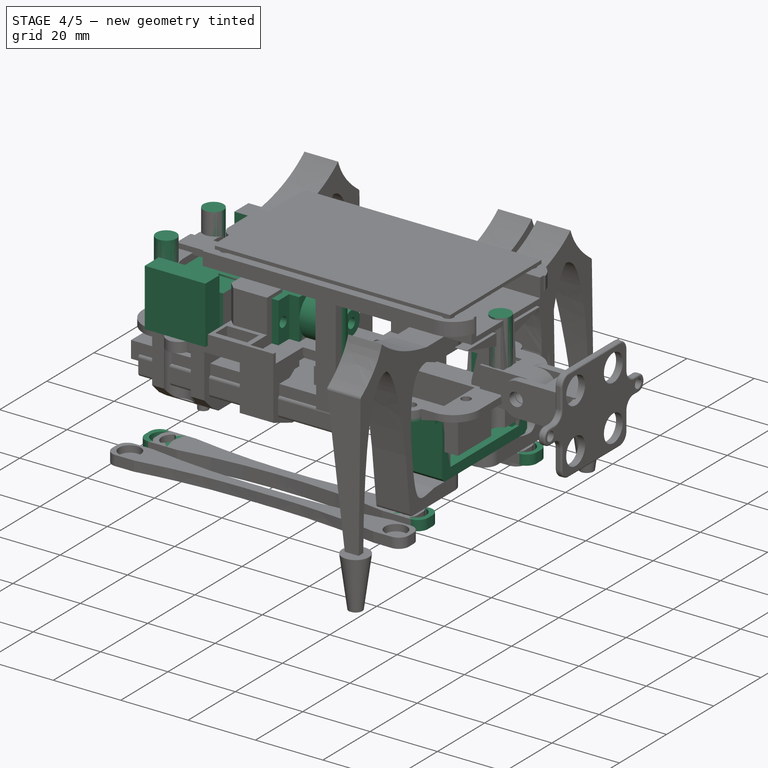
[diagram: stage 4 of 5 — iso view after this stage's code; geometry added in this stage tinted green]
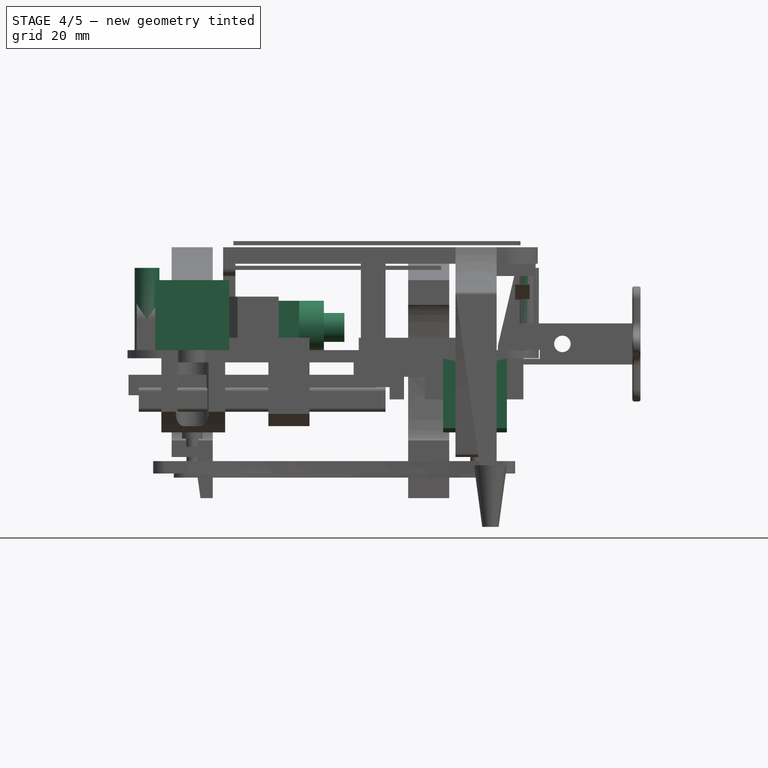
[diagram: stage 4 of 5 — front view after this stage's code; geometry added in this stage tinted green]
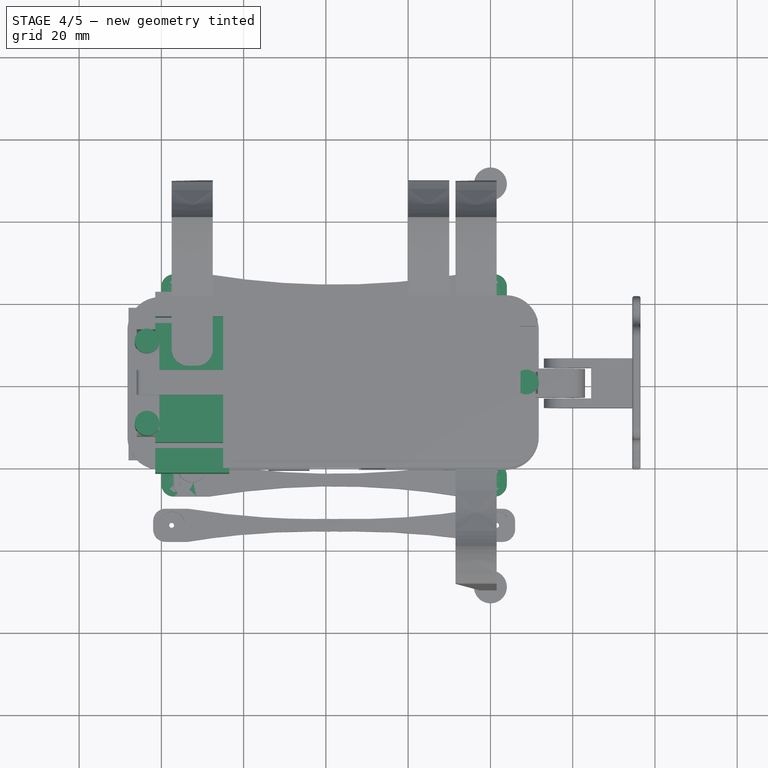
[diagram: stage 4 of 5 — top view after this stage's code; geometry added in this stage tinted green]
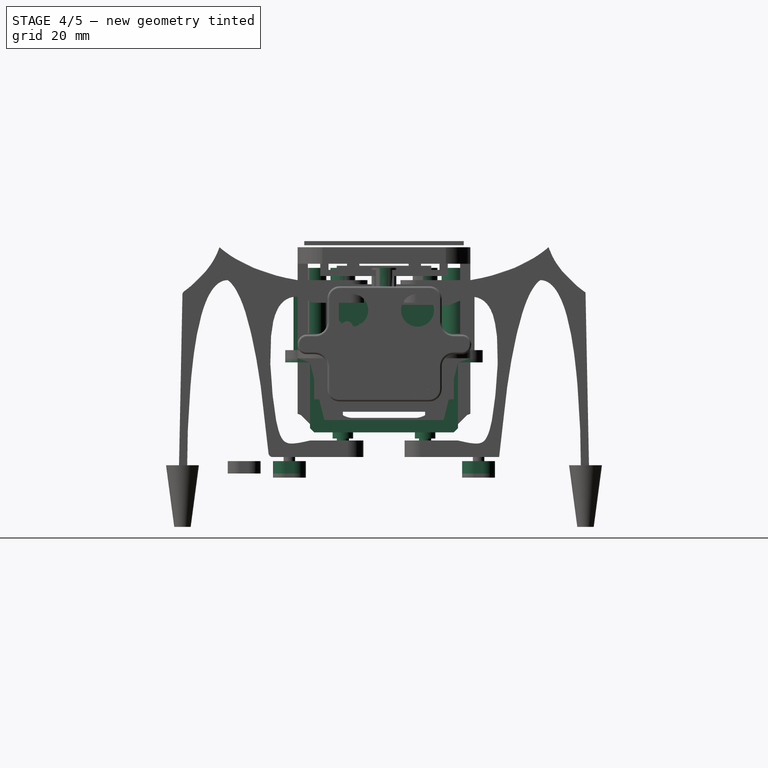
[diagram: stage 4 of 5 — right view after this stage's code; geometry added in this stage tinted green]
FEATURE [Part::Box] Box006  label="Würfel006"
  AttacherType = Attacher::AttachEngine3D
  Height = 18
  Length = 17.5
  Placement = pos=(7.5,-21.5,-28) rot=(0,0,1;0rad)
  Width = 3.5
FEATURE [Part::Cylinder] Cylinder015  label="Zylinder015"
  Angle = 360
  AttacherType = Attacher::AttachEngine3D
  Height = 2.5
  Placement = pos=(16.5,10,-29.5) rot=(0,0,1;0rad)
  Radius = 1.4
FEATURE [Part::Cylinder] Cylinder016  label="Zylinder016"
  Angle = 360
  AttacherType = Attacher::AttachEngine3D
  Height = 2.5
  Placement = pos=(16.5,-10,-29.5) rot=(0,0,1;0rad)
  Radius = 1.4
FEATURE [Part::Box] Box020  label="Würfel020"
  AttacherType = Attacher::AttachEngine3D
  Height = 18
  Length = 15.5
  Placement = pos=(8.5,-21,-27) rot=(0,0,1;0rad)
  Width = 42
FEATURE [Part::Box] Box021  label="Würfel021"
  AttacherType = Attacher::AttachEngine3D
  Height = 18
  Length = 17.5
  Placement = pos=(7.5,18,-28) rot=(0,0,1;0rad)
  Width = 3.5
FEATURE [Part::MultiFuse] Fusion018
  Shapes = -> [Box006,Box021]
FEATURE [Part::Cut] Cut009
  Base = -> Box020
  Tool = -> Fusion018
FEATURE [Part::Cylinder] Cylinder041  label="Zylinder041"
  Angle = 360
  AttacherType = Attacher::AttachEngine3D
  Height = 10
  Placement = pos=(16.5,20.5,-14) rot=(0,0,1;0rad)
  Radius = 1.5
FEATURE [Part::Cylinder] Cylinder042  label="Zylinder042"
  Angle = 360
  AttacherType = Attacher::AttachEngine3D
  Height = 1
  Placement = pos=(16.5,20.5,-10) rot=(0,0,1;0rad)
  Radius = 3.5
FEATURE [Part::Cylinder] Cylinder045  label="Zylinder045"
  Angle = 360
  AttacherType = Attacher::AttachEngine3D
  Height = 1
  Placement = pos=(16.5,-20.5,-10) rot=(0,0,1;0rad)
  Radius = 3.5
FEATURE [Part::Cylinder] Cylinder046  label="Zylinder046"
  Angle = 360
  AttacherType = Attacher::AttachEngine3D
  Height = 10
  Placement = pos=(16.5,-20.5,-14) rot=(0,0,1;0rad)
  Radius = 1.5
FEATURE [Part::MultiFuse] Fusion019
  Shapes = -> [Cylinder045,Cylinder042,Cylinder016,Cylinder015]
FEATURE [Part::Box] Box022  label="Würfel022"
  AttacherType = Attacher::AttachEngine3D
  Height = 21
  Length = 22
  Placement = pos=(1,-4,-26) rot=(0,0,1;0rad)
  Width = 8
FEATURE [Part::MultiFuse] Fusion021
  Shapes = -> [Cylinder041,Cylinder046,Box022]
FEATURE [Part::Box] Box023  label="Würfel023"
  AttacherType = Attacher::AttachEngine3D
  Height = 2
  Length = 32
  Placement = pos=(-4.5,0,18) rot=(0,0,1;0rad)
  Width = 13
FEATURE [Part::Box] Box024  label="Würfel024"
  AttacherType = Attacher::AttachEngine3D
  Height = 2
  Length = 32
  Placement = pos=(-4.5,0,18) rot=(0,0,1;0rad)
  Width = 13
FEATURE [Part::Cylinder] Cylinder049  label="Zylinder049"
  Angle = 360
  AttacherType = Attacher::AttachEngine3D
  Height = 5
  Placement = pos=(16.5,6.5,29) rot=(0,0,1;0rad)
  Radius = 3.5
FEATURE [Part::Cylinder] Cylinder050  label="Zylinder050"
  Angle = 360
  AttacherType = Attacher::AttachEngine3D
  Height = 10
  Placement = pos=(-2.5,6.5,13) rot=(0,0,1;0rad)
  Radius = 1.5
FEATURE [Part::Cylinder] Cylinder051  label="Zylinder051"
  Angle = 360
  AttacherType = Attacher::AttachEngine3D
  Height = 10
  Placement = pos=(25.5,6.5,13) rot=(0,0,1;0rad)
  Radius = 1.5
FEATURE [Part::Box] Box025  label="Würfel025"
  AttacherType = Attacher::AttachEngine3D
  Height = 23
  Length = 23
  Width = 13
FEATURE [Part::Cylinder] Cylinder052  label="Zylinder052"
  Angle = 360
  AttacherType = Attacher::AttachEngine3D
  Height = 5
  Placement = pos=(16.5,6.5,30) rot=(0,0,1;0rad)
  Radius = 1.5
FEATURE [Part::Cylinder] Cylinder053  label="Zylinder053"
  Angle = 360
  AttacherType = Attacher::AttachEngine3D
  Height = 6
  Placement = pos=(16.5,6.5,23) rot=(0,0,1;0rad)
  Radius = 6.5
FEATURE [Part::Cylinder] Cylinder054  label="Zylinder054"
  Angle = 360
  AttacherType = Attacher::AttachEngine3D
  Height = 5
  Placement = pos=(16.5,6.5,29) rot=(0,0,1;0rad)
  Radius = 3.5
FEATURE [Part::Cylinder] Cylinder055  label="Zylinder055"
  Angle = 360
  AttacherType = Attacher::AttachEngine3D
  Height = 6
  Placement = pos=(16.5,6.5,23) rot=(0,0,1;0rad)
  Radius = 6.5
FEATURE [Part::Cylinder] Cylinder056  label="Zylinder056"
  Angle = 360
  AttacherType = Attacher::AttachEngine3D
  Height = 10
  Placement = pos=(25.5,6.5,13) rot=(0,0,1;0rad)
  Radius = 1.5
FEATURE [Part::Cylinder] Cylinder057  label="Zylinder057"
  Angle = 360
  AttacherType = Attacher::AttachEngine3D
  Height = 10
  Placement = pos=(-2.5,6.5,13) rot=(0,0,1;0rad)
  Radius = 1.5
FEATURE [Part::Box] Box026  label="Würfel026"
  AttacherType = Attacher::AttachEngine3D
  Height = 23
  Length = 23
  Width = 13
FEATURE [Part::Cylinder] Cylinder058  label="Zylinder058"
  Angle = 360
  AttacherType = Attacher::AttachEngine3D
  Height = 5
  Placement = pos=(16.5,6.5,30) rot=(0,0,1;0rad)
  Radius = 1.5
FEATURE [Part::MultiFuse] Fusion024
  Shapes = -> [Box025,Cylinder054,Box024,Cylinder055]
FEATURE [Part::MultiFuse] Fusion025
  Shapes = -> [Cylinder050,Cylinder051,Cylinder052]
FEATURE [Part::Cut] Cut012  label="Servo2_mask001"
  Base = -> Fusion024
  Placement = pos=(0,-16.5,-26) rot=(0,0,1;0rad)
  Tool = -> Fusion025
FEATURE [Part::MultiFuse] Fusion026
  Shapes = -> [Cylinder057,Cylinder056,Cylinder058]
FEATURE [Part::MultiFuse] Fusion027
  Shapes = -> [Box026,Cylinder049,Box023,Cylinder053]
FEATURE [Part::Cut] Cut011  label="Servo1_mask001"
  Base = -> Fusion027
  Placement = pos=(0,3.5,-26) rot=(0,0,1;0rad)
  Tool = -> Fusion026
FEATURE [Part::MultiFuse] Fusion023
  Shapes = -> [Cut011,Cut012]
FEATURE [Part::Cylinder] Cylinder061  label="Zylinder061"
  Angle = 360
  AttacherType = Attacher::AttachEngine3D
  Height = 5
  Placement = pos=(16.5,6.5,29) rot=(0,0,1;0rad)
  Radius = 3.5
FEATURE [Part::Box] Box029  label="Würfel029"
  AttacherType = Attacher::AttachEngine3D
  Height = 23
  Length = 23
  Width = 13
FEATURE [Part::Cylinder] Cylinder062  label="Zylinder062"
  Angle = 360
  AttacherType = Attacher::AttachEngine3D
  Height = 6
  Placement = pos=(16.5,6.5,23) rot=(0,0,1;0rad)
  Radius = 6.5
FEATURE [Part::Cylinder] Cylinder063  label="Zylinder063"
  Angle = 360
  AttacherType = Attacher::AttachEngine3D
  Height = 5
  Placement = pos=(16.5,6.5,29) rot=(0,0,1;0rad)
  Radius = 3.5
FEATURE [Part::Box] Box031  label="Würfel031"
  AttacherType = Attacher::AttachEngine3D
  Height = 2
  Length = 32
  Placement = pos=(-4.5,0,18) rot=(0,0,1;0rad)
  Width = 13
FEATURE [Part::Box] Box032  label="Würfel032"
  AttacherType = Attacher::AttachEngine3D
  Height = 2
  Length = 32
  Placement = pos=(-4.5,0,18) rot=(0,0,1;0rad)
  Width = 13
FEATURE [Part::Cylinder] Cylinder065  label="Zylinder065"
  Angle = 360
  AttacherType = Attacher::AttachEngine3D
  Height = 10
  Placement = pos=(25.5,6.5,13) rot=(0,0,1;0rad)
  Radius = 1.5
FEATURE [Part::Cylinder] Cylinder067  label="Zylinder067"
  Angle = 360
  AttacherType = Attacher::AttachEngine3D
  Height = 10
  Placement = pos=(25.5,6.5,13) rot=(0,0,1;0rad)
  Radius = 1.5
FEATURE [Part::Cylinder] Cylinder069  label="Zylinder069"
  Angle = 360
  AttacherType = Attacher::AttachEngine3D
  Height = 10
  Placement = pos=(-2.5,6.5,13) rot=(0,0,1;0rad)
  Radius = 1.5
FEATURE [Part::Box] Box033  label="Würfel033"
  AttacherType = Attacher::AttachEngine3D
  Height = 23
  Length = 23
  Width = 13
FEATURE [Part::Cylinder] Cylinder070  label="Zylinder070"
  Angle = 360
  AttacherType = Attacher::AttachEngine3D
  Height = 10
  Placement = pos=(-2.5,6.5,13) rot=(0,0,1;0rad)
  Radius = 1.5
FEATURE [Part::Cylinder] Cylinder071  label="Zylinder071"
  Angle = 360
  AttacherType = Attacher::AttachEngine3D
  Height = 5
  Placement = pos=(16.5,6.5,30) rot=(0,0,1;0rad)
  Radius = 1.5
FEATURE [Part::Cylinder] Cylinder073  label="Zylinder073"
  Angle = 360
  AttacherType = Attacher::AttachEngine3D
  Height = 6
  Placement = pos=(16.5,6.5,23) rot=(0,0,1;0rad)
  Radius = 6.5
FEATURE [Part::Cylinder] Cylinder074  label="Zylinder074"
  Angle = 360
  AttacherType = Attacher::AttachEngine3D
  Height = 5
  Placement = pos=(16.5,6.5,30) rot=(0,0,1;0rad)
  Radius = 1.5
FEATURE [Part::MultiFuse] Fusion033
  Shapes = -> [Box033,Cylinder061,Box032,Cylinder073]
FEATURE [Part::MultiFuse] Fusion034
  Shapes = -> [Box029,Cylinder063,Box031,Cylinder062]
FEATURE [Part::MultiFuse] Fusion035
  Shapes = -> [Cylinder069,Cylinder067,Cylinder071]
FEATURE [Part::Cut] Cut021  label="Servo2_mask002"
  Base = -> Fusion033
  Placement = pos=(0,-16.5,-26) rot=(0,0,1;0rad)
  Tool = -> Fusion035
FEATURE [Part::MultiFuse] Fusion036
  Shapes = -> [Cylinder070,Cylinder065,Cylinder074]
FEATURE [Part::Cut] Cut016  label="Servo1_mask002"
  Base = -> Fusion034
  Placement = pos=(0,3.5,-26) rot=(0,0,1;0rad)
  Tool = -> Fusion036
FEATURE [Part::MultiFuse] Fusion032
  Shapes = -> [Cut016,Cut021]
FEATURE [Part::Box] Box035  label="Würfel035"
  AttacherType = Attacher::AttachEngine3D
  Height = 15
  Length = 10
  Placement = pos=(22,-14.5,-24) rot=(0,0,1;0rad)
  Width = 29
FEATURE [Part::Cylinder] Cylinder085  label="Zylinder085"
  Angle = 360
  AttacherType = Attacher::AttachEngine3D
  Height = 4
  Placement = pos=(-52.5,-20.5,-9.5) rot=(0,0,1;0rad)
  Radius = 1.4
FEATURE [Part::Cylinder] Cylinder086  label="Zylinder086"
  Angle = 360
  AttacherType = Attacher::AttachEngine3D
  Height = 4
  Placement = pos=(-52.5,20.5,-9.5) rot=(0,0,1;0rad)
  Radius = 1.4
FEATURE [Part::Box] Box043  label="Würfel043"
  AttacherType = Attacher::AttachEngine3D
  Height = 12.5
  Length = 18
  Placement = pos=(-61.5,-14.5,-8) rot=(0,0,1;0rad)
  Width = 29
FEATURE [Part::Box] Box044  label="Würfel044"
  AttacherType = Attacher::AttachEngine3D
  Height = 17
  Length = 18
  Placement = pos=(-61.5,-22,-7) rot=(0,0,1;0rad)
  Width = 6
FEATURE [Part::Box] Box045  label="Würfel045"
  AttacherType = Attacher::AttachEngine3D
  Height = 17
  Length = 18
  Placement = pos=(-61.5,16,-7) rot=(0,0,1;0rad)
  Width = 6
FEATURE [Part::MultiFuse] Fusion047
  Shapes = -> [Cylinder085,Cylinder086,Box043,Box044,Box045]
FEATURE [Part::Box] Box063  label="Würfel063"
  AttacherType = Attacher::AttachEngine3D
  Height = 24
  Length = 23
  Placement = pos=(0,0,-1) rot=(0,0,1;0rad)
  Width = 13
FEATURE [Part::Box] Box064  label="Würfel064"
  AttacherType = Attacher::AttachEngine3D
  Height = 2
  Length = 32
  Placement = pos=(-4.5,0,18) rot=(0,0,1;0rad)
  Width = 13
FEATURE [Part::Cylinder] Cylinder100  label="Zylinder100"
  Angle = 360
  AttacherType = Attacher::AttachEngine3D
  Height = 10
  Placement = pos=(25.5,6.5,13) rot=(0,0,1;0rad)
  Radius = 1.5
FEATURE [Part::Cylinder] Cylinder101  label="Zylinder101"
  Angle = 360
  AttacherType = Attacher::AttachEngine3D
  Height = 6
  Placement = pos=(16.5,6.5,23) rot=(0,0,1;0rad)
  Radius = 6.5
FEATURE [Part::Cylinder] Cylinder102  label="Zylinder102"
  Angle = 360
  AttacherType = Attacher::AttachEngine3D
  Height = 5
  Placement = pos=(16.5,6.5,29) rot=(0,0,1;0rad)
  Radius = 3.5
FEATURE [Part::Cylinder] Cylinder103  label="Zylinder103"
  Angle = 360
  AttacherType = Attacher::AttachEngine3D
  Height = 5
  Placement = pos=(16.5,6.5,30) rot=(0,0,1;0rad)
  Radius = 1.5
FEATURE [Part::Cylinder] Cylinder104  label="Zylinder104"
  Angle = 360
  AttacherType = Attacher::AttachEngine3D
  Height = 10
  Placement = pos=(-2.5,6.5,13) rot=(0,0,1;0rad)
  Radius = 1.5
FEATURE [Part::MultiFuse] Fusion060
  Shapes = -> [Box063,Cylinder102,Box064,Cylinder101]
FEATURE [Part::MultiFuse] Fusion061
  Shapes = -> [Cylinder104,Cylinder100,Cylinder103]
FEATURE [Part::Cut] Cut044  label="Servo3_mask001"
  Base = -> Fusion060
  Placement = pos=(-49.5,16.5,5) rot=(0.57735,-0.57735,0.57735;4.18879rad)
  Tool = -> Fusion061
FEATURE [Part::Cylinder] Cylinder145  label="Zylinder145"
  Angle = 360
  AttacherType = Attacher::AttachEngine3D
  Height = 20
  Placement = pos=(-8.5,17,-7) rot=(0,0,1;0rad)
  Radius = 3
FEATURE [Part::Cylinder] Cylinder148  label="Zylinder148"
  Angle = 360
  AttacherType = Attacher::AttachEngine3D
  Height = 20
  Placement = pos=(-63.5,-10,-7) rot=(0,0,1;0rad)
  Radius = 3
FEATURE [Part::Cylinder] Cylinder149  label="Zylinder149"
  Angle = 360
  AttacherType = Attacher::AttachEngine3D
  Height = 20
  Placement = pos=(-8.5,-17,-7) rot=(0,0,1;0rad)
  Radius = 3
FEATURE [Part::Cylinder] Cylinder152  label="Zylinder152"
  Angle = 360
  AttacherType = Attacher::AttachEngine3D
  Height = 20
  Placement = pos=(-63.5,10,-7) rot=(0,0,1;0rad)
  Radius = 3
FEATURE [Part::Cylinder] Cylinder155  label="Zylinder155"
  Angle = 360
  AttacherType = Attacher::AttachEngine3D
  Height = 20
  Placement = pos=(28.75,0,-7) rot=(0,0,1;0rad)
  Radius = 3
FEATURE [Part::MultiFuse] Fusion093
  Shapes = -> [Fusion047,Cut044]
FEATURE [Part::MultiFuse] Fusion094
  Shapes = -> [Fusion021,Box035]
FEATURE [Part::MultiFuse] Fusion095
  Shapes = -> [Fusion019,Cut009]
FEATURE [Part::MultiFuse] Fusion096
  Shapes = -> [Fusion032,Fusion094,Fusion023]
FEATURE [Part::Cut] Cut074
  Base = -> Fusion095
  Tool = -> Fusion096
FEATURE [Part::Chamfer] Chamfer019
  Base = -> Cut074
  Edges = 2 edges r=1: [Edge20,Edge46]
FEATURE [App::DocumentObjectGroup] Gruppe008  label="bank_rear"
  Group = -> [Cut082]
FEATURE [Part::MultiFuse] Fusion106
  Shapes = -> [Cylinder155,Cylinder148,Cylinder149,Cylinder152,Cylinder145]
FEATURE [Part::Cylinder] Cylinder201  label="Zylinder201"
  Angle = 360
  AttacherType = Attacher::AttachEngine3D
  Height = 2.5
  Placement = pos=(16.5,-10,-30.5) rot=(0,0,1;0rad)
  Radius = 1.5
FEATURE [Part::Cylinder] Cylinder202  label="Zylinder202"
  Angle = 360
  AttacherType = Attacher::AttachEngine3D
  Height = 2.5
  Placement = pos=(16.5,10,-30.5) rot=(0,0,1;0rad)
  Radius = 1.5
FEATURE [Part::Cylinder] Cylinder203  label="Zylinder203"
  Angle = 360
  AttacherType = Attacher::AttachEngine3D
  Height = 2.5
  Placement = pos=(16.5,10,-28.5) rot=(0,0,1;0rad)
  Radius = 2.5
FEATURE [Part::Cylinder] Cylinder204  label="Zylinder204"
  Angle = 360
  AttacherType = Attacher::AttachEngine3D
  Height = 2.5
  Placement = pos=(16.5,-10,-28.5) rot=(0,0,1;0rad)
  Radius = 2.5
FEATURE [Part::MultiFuse] Fusion132
  Shapes = -> [Cylinder202,Cylinder201,Cylinder203,Cylinder204]
FEATURE [Part::MultiFuse] Fusion133
  Shapes = -> [Fusion132,Chamfer019]
FEATURE [App::DocumentObjectGroup] Gruppe012  label="leg_front_right"
  Group = -> [Part__Mirroring001]
FEATURE [App::Part] Part002
  Group = -> [Pad010Body]
  Origin = -> Origin013
FEATURE [Image::ImagePlane] ImagePlane
  Placement = pos=(-7.5,0,19.5) rot=(0,0,1;3.14159rad)
  XSize = 69.8
  YSize = 38.8
FEATURE [Sketcher::SketchObject] Sketch016
  MapMode = 5
  Support = -> [XY_Plane015]
  sketch-geometry (18):
    g0: LineSegment StartX=-57 StartY=19 StartZ=0 EndX=-57 EndY=27 EndZ=0
    g1: LineSegment StartX=-57 StartY=19 StartZ=0 EndX=-48.5 EndY=19 EndZ=0
    g2: LineSegment StartX=-57 StartY=27 StartZ=0 EndX=-48.5 EndY=27 EndZ=0
    g3: LineSegment StartX=12.5 StartY=19 StartZ=0 EndX=21 EndY=19 EndZ=0
    g4: LineSegment StartX=21 StartY=19 StartZ=0 EndX=21 EndY=27 EndZ=0
    g5: LineSegment StartX=21 StartY=27 StartZ=0 EndX=12.5 EndY=27 EndZ=0
    g6: Circle [constr] CenterX=-48.5 CenterY=19 CenterZ=0 NormalX=0 NormalY=0 NormalZ=1 AngleXU=0 Radius=5
    g7: Circle [constr] CenterX=-18 CenterY=24 CenterZ=0 NormalX=0 NormalY=0 NormalZ=1 AngleXU=0 Radius=5
    g8: Circle [constr] CenterX=12.5 CenterY=19 CenterZ=0 NormalX=0 NormalY=0 NormalZ=1 AngleXU=0 Radius=5
    g9: BSplineCurve PolesCount=3 KnotsCount=2 Degree=2 IsPeriodic=0
    g10: GeomPoint [constr] X=-48.5 Y=19 Z=0
    g11: GeomPoint [constr] X=12.5 Y=19 Z=0
    g12: Circle [constr] CenterX=-48.5 CenterY=27 CenterZ=0 NormalX=0 NormalY=0 NormalZ=1 AngleXU=0 Radius=5
    g13: Circle [constr] CenterX=-18 CenterY=22 CenterZ=0 NormalX=0 NormalY=0 NormalZ=1 AngleXU=0 Radius=5
    g14: Circle [constr] CenterX=12.5 CenterY=27 CenterZ=0 NormalX=0 NormalY=0 NormalZ=1 AngleXU=0 Radius=5
    g15: BSplineCurve PolesCount=3 KnotsCount=2 Degree=2 IsPeriodic=0
    g16: GeomPoint [constr] X=-48.5 Y=27 Z=0
    g17: GeomPoint [constr] X=12.5 Y=27 Z=0
  constraints (16):
    c: Radius(g6) = 5
    c: Equal(g6,g7)
    c: Equal(g6,g8)
    c: InternalAlignment(g6,g9)
    c: InternalAlignment(g7,g9)
    c: InternalAlignment(g8,g9)
    c: InternalAlignment(g10,g9)
    c: InternalAlignment(g11,g9)
    c: Radius(g12) = 5
    c: Equal(g12,g13)
    c: Equal(g12,g14)
    c: InternalAlignment(g12,g15)
    c: InternalAlignment(g13,g15)
    c: InternalAlignment(g14,g15)
    c: InternalAlignment(g16,g15)
    c: InternalAlignment(g17,g15)
FEATURE [Sketcher::SketchObject] Sketch017
  MapMode = 5
  Support = -> [XY_Plane016]
  sketch-geometry (18):
    g0: LineSegment StartX=-57 StartY=19 StartZ=0 EndX=-57 EndY=27 EndZ=0
    g1: LineSegment StartX=-57 StartY=19 StartZ=0 EndX=-48.5 EndY=19 EndZ=0
    g2: LineSegment StartX=-57 StartY=27 StartZ=0 EndX=-48.5 EndY=27 EndZ=0
    g3: LineSegment StartX=12.5 StartY=19 StartZ=0 EndX=21 EndY=19 EndZ=0
    g4: LineSegment StartX=21 StartY=19 StartZ=0 EndX=21 EndY=27 EndZ=0
    g5: LineSegment StartX=21 StartY=27 StartZ=0 EndX=12.5 EndY=27 EndZ=0
    g6: Circle [constr] CenterX=-48.5 CenterY=19 CenterZ=0 NormalX=0 NormalY=0 NormalZ=1 AngleXU=0 Radius=5
    g7: Circle [constr] CenterX=-18 CenterY=24 CenterZ=0 NormalX=0 NormalY=0 NormalZ=1 AngleXU=0 Radius=5
    g8: Circle [constr] CenterX=12.5 CenterY=19 CenterZ=0 NormalX=0 NormalY=0 NormalZ=1 AngleXU=0 Radius=5
    g9: BSplineCurve PolesCount=3 KnotsCount=2 Degree=2 IsPeriodic=0
    g10: GeomPoint [constr] X=-48.5 Y=19 Z=0
    g11: GeomPoint [constr] X=12.5 Y=19 Z=0
    g12: Circle [constr] CenterX=-48.5 CenterY=27 CenterZ=0 NormalX=0 NormalY=0 NormalZ=1 AngleXU=0 Radius=5
    g13: Circle [constr] CenterX=-18 CenterY=22 CenterZ=0 NormalX=0 NormalY=0 NormalZ=1 AngleXU=0 Radius=5
    g14: Circle [constr] CenterX=12.5 CenterY=27 CenterZ=0 NormalX=0 NormalY=0 NormalZ=1 AngleXU=0 Radius=5
    g15: BSplineCurve PolesCount=3 KnotsCount=2 Degree=2 IsPeriodic=0
    g16: GeomPoint [constr] X=-48.5 Y=27 Z=0
    g17: GeomPoint [constr] X=12.5 Y=27 Z=0
  constraints (16):
    c: Radius(g6) = 5
    c: Equal(g6,g7)
    c: Equal(g6,g8)
    c: InternalAlignment(g6,g9)
    c: InternalAlignment(g7,g9)
    c: InternalAlignment(g8,g9)
    c: InternalAlignment(g10,g9)
    c: InternalAlignment(g11,g9)
    c: Radius(g12) = 5
    c: Equal(g12,g13)
    c: Equal(g12,g14)
    c: InternalAlignment(g12,g15)
    c: InternalAlignment(g13,g15)
    c: InternalAlignment(g14,g15)
    c: InternalAlignment(g16,g15)
    c: InternalAlignment(g17,g15)
FEATURE [Part::Box] Box123  label="Würfel113"
  AttacherType = Attacher::AttachEngine3D
  Height = 10
  Length = 40
  Placement = pos=(-14,-72,-42) rot=(0,0,1;0rad)
  Width = 10
FEATURE [Part::Cylinder] Cylinder205  label="Zylinder205"
  Angle = 360
  AttacherType = Attacher::AttachEngine3D
  Height = 3.5
  Placement = pos=(-52.5,23,-36) rot=(0,0,1;0rad)
  Radius = 3.25
FEATURE [PartDesign::Pad] Pad016
  Length = 4
  Length2 = 100
  Profile = -> Sketch017
  Type = 0
FEATURE [PartDesign::Body] Body007
  Group = -> [Sketch017,Pad016]
  Origin = -> Origin015
  Placement = pos=(0,0,-38) rot=(0,0,1;0rad)
  Tip = -> Pad016
FEATURE [Part::Cylinder] Cylinder206  label="Zylinder206"
  Angle = 360
  AttacherType = Attacher::AttachEngine3D
  Height = 9.5
  Placement = pos=(-52.5,23,-39) rot=(0,0,1;0rad)
  Radius = 0.6
FEATURE [PartDesign::Pad] Pad017
  Length = 4
  Length2 = 100
  Profile = -> Sketch016
  Type = 0
FEATURE [PartDesign::Body] Body008
  Group = -> [Sketch016,Pad017]
  Origin = -> Origin016
  Placement = pos=(0,0,-38) rot=(0,0,1;0rad)
  Tip = -> Pad017
FEATURE [Part::Cylinder] Cylinder207  label="Zylinder207"
  Angle = 360
  AttacherType = Attacher::AttachEngine3D
  Height = 3.5
  Placement = pos=(16.5,23,-36) rot=(0,0,1;0rad)
  Radius = 3.25
FEATURE [Part::Cylinder] Cylinder208  label="Zylinder208"
  Angle = 360
  AttacherType = Attacher::AttachEngine3D
  Height = 9.5
  Placement = pos=(16.5,23,-39) rot=(0,0,1;0rad)
  Radius = 0.6
FEATURE [Part::MultiFuse] Fusion134
  Shapes = -> [Cylinder207,Cylinder205,Cylinder208,Cylinder206]
FEATURE [Part::Cut] Cut086
  Base = -> Body008
  Tool = -> Fusion134
FEATURE [Part::Cylinder] Cylinder209  label="Zylinder209"
  Angle = 360
  AttacherType = Attacher::AttachEngine3D
  Height = 3.5
  Placement = pos=(16.5,23,-36) rot=(0,0,1;0rad)
  Radius = 3.25
FEATURE [Part::Cylinder] Cylinder210  label="Zylinder210"
  Angle = 360
  AttacherType = Attacher::AttachEngine3D
  Height = 9.5
  Placement = pos=(-52.5,23,-39) rot=(0,0,1;0rad)
  Radius = 0.6
FEATURE [Part::Box] Box125  label="Würfel115"
  AttacherType = Attacher::AttachEngine3D
  Height = 10
  Length = 40
  Placement = pos=(-14,-72,-42) rot=(0,0,1;0rad)
  Width = 10
FEATURE [Part::Cylinder] Cylinder211  label="Zylinder211"
  Angle = 360
  AttacherType = Attacher::AttachEngine3D
  Height = 3.5
  Placement = pos=(-52.5,23,-36) rot=(0,0,1;0rad)
  Radius = 3.25
FEATURE [Part::Cylinder] Cylinder212  label="Zylinder212"
  Angle = 360
  AttacherType = Attacher::AttachEngine3D
  Height = 9.5
  Placement = pos=(16.5,23,-39) rot=(0,0,1;0rad)
  Radius = 0.6
FEATURE [Part::MultiFuse] Fusion135
  Shapes = -> [Cylinder209,Cylinder211,Cylinder212,Cylinder210]
FEATURE [Part::Cut] Cut088
  Base = -> Body007
  Tool = -> Fusion135
FEATURE [Part::Box] Box126  label="Würfel116"
  AttacherType = Attacher::AttachEngine3D
  Height = 4
  Length = 90
  Placement = pos=(-63,-27.5,-41) rot=(0,0,1;0rad)
  Width = 9
FEATURE [Part::Fillet] Fillet086
  Base = -> Cut086
  Edges = 4 edges r=3: [Edge5,Edge8,Edge25,Edge26]
  Placement = pos=(0,-90,0) rot=(0,0,1;0rad)
FEATURE [Part::Cut] Cut087
  Base = -> Fillet086
  Placement = pos=(-3,44,0) rot=(0,0,1;0rad)
  Tool = -> Box123
FEATURE [Part::Fillet] Fillet087
  Base = -> Cut088
  Edges = 4 edges r=3: [Edge5,Edge8,Edge25,Edge26]
  Placement = pos=(0,-90,0) rot=(0,0,1;0rad)
FEATURE [Part::Cut] Cut090
  Base = -> Fillet087
  Placement = pos=(-5,35,0) rot=(0,0,1;0rad)
  Tool = -> Box125
FEATURE [Part::Mirroring] Part__Mirroring004  label="Cut068 (Mirror #4)001"
  Base = (-40.5,-7.62939e-06,-36)
  Normal = (0,1,-1.19209e-07)
  Placement = pos=(-38,9,0) rot=(0,0,1;3.14159rad)
  Source = -> Cut090
FEATURE [Part::MultiFuse] Fusion136
  Shapes = -> [Cut087,Part__Mirroring004]
FEATURE [Part::Cut] Cut091  label="bar_medium_long"
  Base = -> Fusion136
  Tool = -> Box126
FEATURE [Sketcher::SketchObject] Sketch018
  MapMode = 5
  Support = -> [XY_Plane017]
  sketch-geometry (18):
    g0: LineSegment StartX=-57 StartY=19 StartZ=0 EndX=-57 EndY=27 EndZ=0
    g1: LineSegment StartX=-57 StartY=19 StartZ=0 EndX=-48.5 EndY=19 EndZ=0
    g2: LineSegment StartX=-57 StartY=27 StartZ=0 EndX=-48.5 EndY=27 EndZ=0
    g3: LineSegment StartX=12.5 StartY=19 StartZ=0 EndX=21 EndY=19 EndZ=0
    g4: LineSegment StartX=21 StartY=19 StartZ=0 EndX=21 EndY=27 EndZ=0
    g5: LineSegment StartX=21 StartY=27 StartZ=0 EndX=12.5 EndY=27 EndZ=0
    g6: Circle [constr] CenterX=-48.5 CenterY=19 CenterZ=0 NormalX=0 NormalY=0 NormalZ=1 AngleXU=0 Radius=5
    g7: Circle [constr] CenterX=-18 CenterY=24 CenterZ=0 NormalX=0 NormalY=0 NormalZ=1 AngleXU=0 Radius=5
    g8: Circle [constr] CenterX=12.5 CenterY=19 CenterZ=0 NormalX=0 NormalY=0 NormalZ=1 AngleXU=0 Radius=5
    g9: BSplineCurve PolesCount=3 KnotsCount=2 Degree=2 IsPeriodic=0
    g10: GeomPoint [constr] X=-48.5 Y=19 Z=0
    g11: GeomPoint [constr] X=12.5 Y=19 Z=0
    g12: Circle [constr] CenterX=-48.5 CenterY=27 CenterZ=0 NormalX=0 NormalY=0 NormalZ=1 AngleXU=0 Radius=5
    g13: Circle [constr] CenterX=-18 CenterY=22 CenterZ=0 NormalX=0 NormalY=0 NormalZ=1 AngleXU=0 Radius=5
    g14: Circle [constr] CenterX=12.5 CenterY=27 CenterZ=0 NormalX=0 NormalY=0 NormalZ=1 AngleXU=0 Radius=5
    g15: BSplineCurve PolesCount=3 KnotsCount=2 Degree=2 IsPeriodic=0
    g16: GeomPoint [constr] X=-48.5 Y=27 Z=0
    g17: GeomPoint [constr] X=12.5 Y=27 Z=0
  constraints (16):
    c: Radius(g6) = 5
    c: Equal(g6,g7)
    c: Equal(g6,g8)
    c: InternalAlignment(g6,g9)
    c: InternalAlignment(g7,g9)
    c: InternalAlignment(g8,g9)
    c: InternalAlignment(g10,g9)
    c: InternalAlignment(g11,g9)
    c: Radius(g12) = 5
    c: Equal(g12,g13)
    c: Equal(g12,g14)
    c: InternalAlignment(g12,g15)
    c: InternalAlignment(g13,g15)
    c: InternalAlignment(g14,g15)
    c: InternalAlignment(g16,g15)
    c: InternalAlignment(g17,g15)
FEATURE [Sketcher::SketchObject] Sketch019
  MapMode = 5
  Support = -> [XY_Plane018]
  sketch-geometry (18):
    g0: LineSegment StartX=-57 StartY=19 StartZ=0 EndX=-57 EndY=27 EndZ=0
    g1: LineSegment StartX=-57 StartY=19 StartZ=0 EndX=-48.5 EndY=19 EndZ=0
    g2: LineSegment StartX=-57 StartY=27 StartZ=0 EndX=-48.5 EndY=27 EndZ=0
    g3: LineSegment StartX=12.5 StartY=19 StartZ=0 EndX=21 EndY=19 EndZ=0
    g4: LineSegment StartX=21 StartY=19 StartZ=0 EndX=21 EndY=27 EndZ=0
    g5: LineSegment StartX=21 StartY=27 StartZ=0 EndX=12.5 EndY=27 EndZ=0
    g6: Circle [constr] CenterX=-48.5 CenterY=19 CenterZ=0 NormalX=0 NormalY=0 NormalZ=1 AngleXU=0 Radius=5
    g7: Circle [constr] CenterX=-18 CenterY=24 CenterZ=0 NormalX=0 NormalY=0 NormalZ=1 AngleXU=0 Radius=5
    g8: Circle [constr] CenterX=12.5 CenterY=19 CenterZ=0 NormalX=0 NormalY=0 NormalZ=1 AngleXU=0 Radius=5
    g9: BSplineCurve PolesCount=3 KnotsCount=2 Degree=2 IsPeriodic=0
    g10: GeomPoint [constr] X=-48.5 Y=19 Z=0
    g11: GeomPoint [constr] X=12.5 Y=19 Z=0
    g12: Circle [constr] CenterX=-48.5 CenterY=27 CenterZ=0 NormalX=0 NormalY=0 NormalZ=1 AngleXU=0 Radius=5
    g13: Circle [constr] CenterX=-18 CenterY=22 CenterZ=0 NormalX=0 NormalY=0 NormalZ=1 AngleXU=0 Radius=5
    g14: Circle [constr] CenterX=12.5 CenterY=27 CenterZ=0 NormalX=0 NormalY=0 NormalZ=1 AngleXU=0 Radius=5
    g15: BSplineCurve PolesCount=3 KnotsCount=2 Degree=2 IsPeriodic=0
    g16: GeomPoint [constr] X=-48.5 Y=27 Z=0
    g17: GeomPoint [constr] X=12.5 Y=27 Z=0
  constraints (16):
    c: Radius(g6) = 5
    c: Equal(g6,g7)
    c: Equal(g6,g8)
    c: InternalAlignment(g6,g9)
    c: InternalAlignment(g7,g9)
    c: InternalAlignment(g8,g9)
    c: InternalAlignment(g10,g9)
    c: InternalAlignment(g11,g9)
    c: Radius(g12) = 5
    c: Equal(g12,g13)
    c: Equal(g12,g14)
    c: InternalAlignment(g12,g15)
    c: InternalAlignment(g13,g15)
    c: InternalAlignment(g14,g15)
    c: InternalAlignment(g16,g15)
    c: InternalAlignment(g17,g15)
FEATURE [Part::Cylinder] Cylinder213  label="Zylinder213"
  Angle = 360
  AttacherType = Attacher::AttachEngine3D
  Height = 9.5
  Placement = pos=(16.5,23,-39) rot=(0,0,1;0rad)
  Radius = 0.6
FEATURE [Part::Cylinder] Cylinder215  label="Zylinder215"
  Angle = 360
  AttacherType = Attacher::AttachEngine3D
  Height = 9.5
  Placement = pos=(-52.5,23,-39) rot=(0,0,1;0rad)
  Radius = 0.6
FEATURE [Part::Box] Box127  label="Würfel117"
  AttacherType = Attacher::AttachEngine3D
  Height = 10
  Length = 40
  Placement = pos=(-14,-72,-42) rot=(0,0,1;0rad)
  Width = 10
FEATURE [PartDesign::Pad] Pad018
  Length = 4
  Length2 = 100
  Profile = -> Sketch019
  Type = 0
FEATURE [PartDesign::Body] Body010
  Group = -> [Sketch019,Pad018]
  Origin = -> Origin017
  Placement = pos=(0,0,-38) rot=(0,0,1;0rad)
  Tip = -> Pad018
FEATURE [Part::Cylinder] Cylinder217  label="Zylinder217"
  Angle = 360
  AttacherType = Attacher::AttachEngine3D
  Height = 3.5
  Placement = pos=(16.5,23,-36) rot=(0,0,1;0rad)
  Radius = 3.25
FEATURE [PartDesign::Body] Body009
  Group = -> [Sketch018,Pad019]
  Origin = -> Origin018
  Placement = pos=(0,0,-38) rot=(0,0,1;0rad)
  Tip = -> Pad019
FEATURE [Part::Box] Box129  label="Würfel119"
  AttacherType = Attacher::AttachEngine3D
  Height = 4
  Length = 90
  Placement = pos=(-63,-27.5,-41) rot=(0,0,1;0rad)
  Width = 9
FEATURE [Part::Cylinder] Cylinder220  label="Zylinder220"
  Angle = 360
  AttacherType = Attacher::AttachEngine3D
  Height = 3.5
  Placement = pos=(-52.5,23,-36) rot=(0,0,1;0rad)
  Radius = 3.25
FEATURE [Part::MultiFuse] Fusion137
  Shapes = -> [Cylinder217,Cylinder220,Cylinder213,Cylinder215]
FEATURE [Part::Cut] Cut095
  Base = -> Body010
  Tool = -> Fusion137
FEATURE [Part::Fillet] Fillet089
  Base = -> Cut095
  Edges = 4 edges r=3: [Edge5,Edge8,Edge25,Edge26]
  Placement = pos=(0,-90,0) rot=(0,0,1;0rad)
FEATURE [Part::Cut] Cut093
  Base = -> Fillet089
  Placement = pos=(-3,44,0) rot=(0,0,1;0rad)
  Tool = -> Box127
FEATURE [Part::Cut] Cut094
  Base = -> Body009
  Tool = -> Fusion138
FEATURE [Part::Fillet] Fillet088
  Base = -> Cut094
  Edges = 4 edges r=3: [Edge5,Edge8,Edge25,Edge26]
  Placement = pos=(0,-90,0) rot=(0,0,1;0rad)
FEATURE [Part::Cut] Cut096
  Base = -> Fillet088
  Placement = pos=(-5,35,0) rot=(0,0,1;0rad)
  Tool = -> Box128
FEATURE [Part::Mirroring] Part__Mirroring005  label="Cut068 (Mirror #4)002"
  Base = (-40.5,-7.62939e-06,-36)
  Normal = (0,1,-1.19209e-07)
  Placement = pos=(-38,9,0) rot=(0,0,1;3.14159rad)
  Source = -> Cut096
FEATURE [Part::MultiFuse] Fusion139
  Shapes = -> [Cut093,Part__Mirroring005]
FEATURE [Part::Cut] Cut092
  Base = -> Fusion139
  Placement = pos=(0,46,0) rot=(0,0,1;0rad)
  Tool = -> Box129
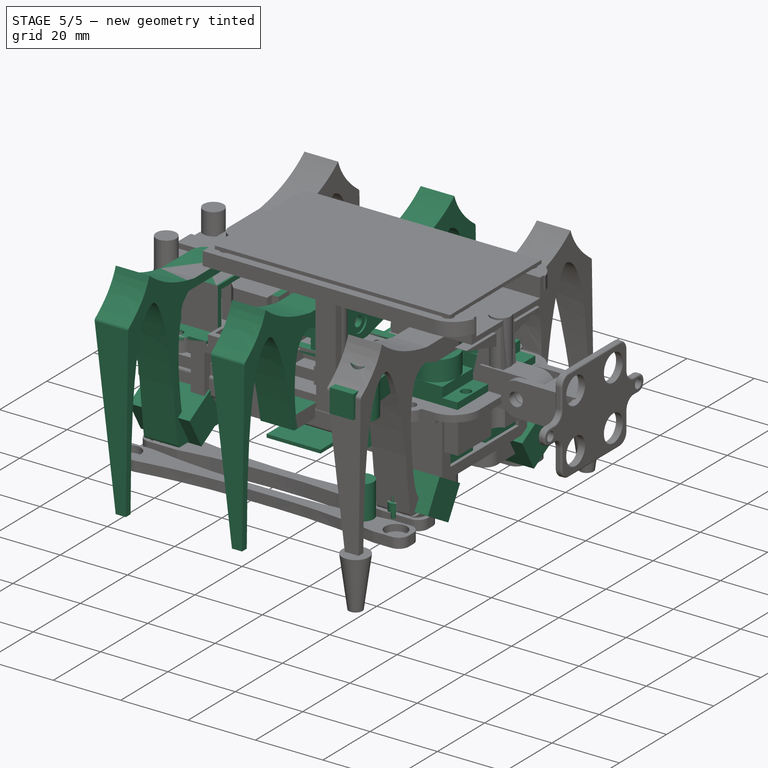
[diagram: stage 5 of 5 — iso view after this stage's code; geometry added in this stage tinted green]
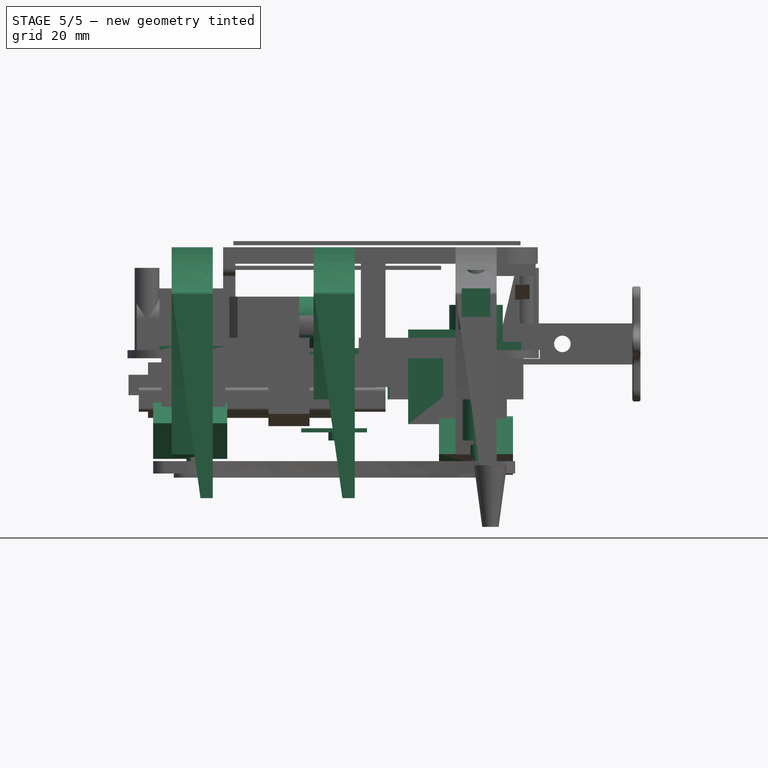
[diagram: stage 5 of 5 — front view after this stage's code; geometry added in this stage tinted green]
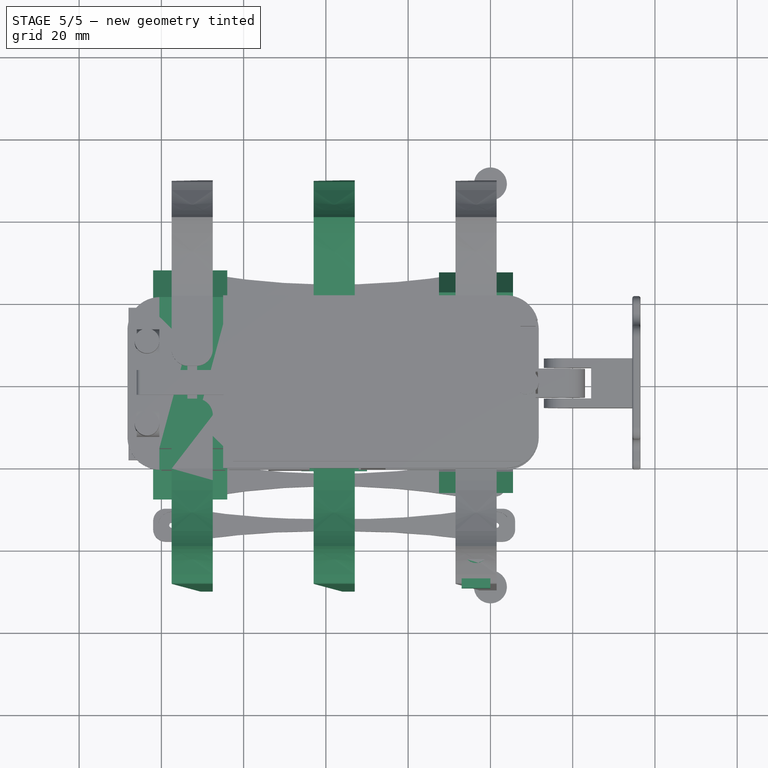
[diagram: stage 5 of 5 — top view after this stage's code; geometry added in this stage tinted green]
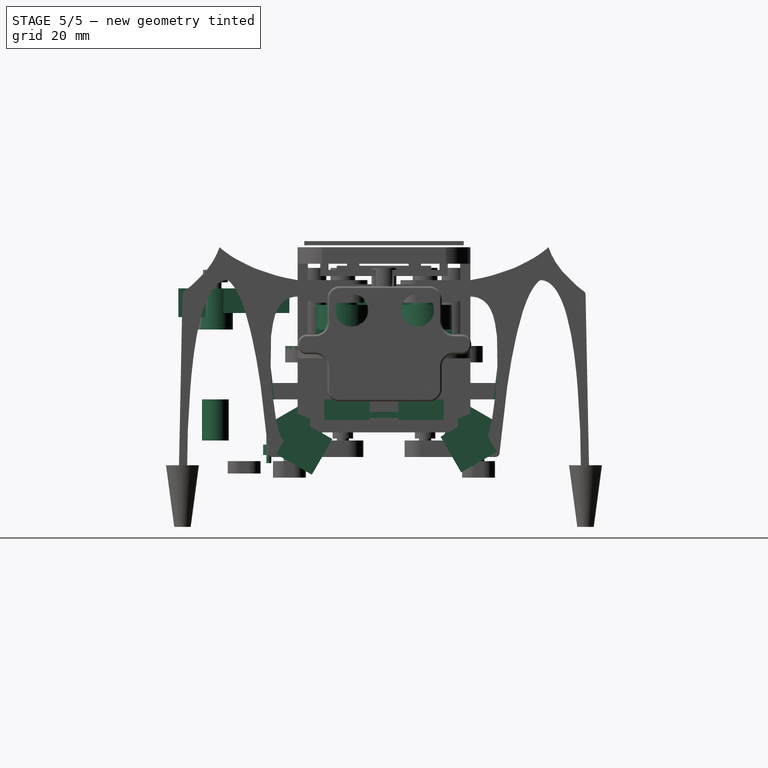
[diagram: stage 5 of 5 — right view after this stage's code; geometry added in this stage tinted green]
FEATURE [Part::Box] Box  label="Würfel"
  AttacherType = Attacher::AttachEngine3D
  Height = 23
  Length = 23
  Width = 13
FEATURE [Part::Box] Box001  label="Würfel001"
  AttacherType = Attacher::AttachEngine3D
  Height = 2
  Length = 32
  Placement = pos=(-4.5,0,18) rot=(0,0,1;0rad)
  Width = 13
FEATURE [Part::Cylinder] Cylinder  label="Zylinder"
  Angle = 360
  AttacherType = Attacher::AttachEngine3D
  Height = 6
  Placement = pos=(16.5,6.5,23) rot=(0,0,1;0rad)
  Radius = 6.5
FEATURE [Part::Cylinder] Cylinder001  label="Zylinder001"
  Angle = 360
  AttacherType = Attacher::AttachEngine3D
  Height = 5
  Placement = pos=(16.5,6.5,30) rot=(0,0,1;0rad)
  Radius = 1.5
FEATURE [Part::Cylinder] Cylinder002  label="Zylinder002"
  Angle = 360
  AttacherType = Attacher::AttachEngine3D
  Height = 10
  Placement = pos=(25.5,6.5,13) rot=(0,0,1;0rad)
  Radius = 1.5
FEATURE [Part::Cylinder] Cylinder003  label="Zylinder003"
  Angle = 360
  AttacherType = Attacher::AttachEngine3D
  Height = 10
  Placement = pos=(-2.5,6.5,13) rot=(0,0,1;0rad)
  Radius = 1.5
FEATURE [Part::Cylinder] Cylinder004  label="Zylinder004"
  Angle = 360
  AttacherType = Attacher::AttachEngine3D
  Height = 5
  Placement = pos=(16.5,6.5,29) rot=(0,0,1;0rad)
  Radius = 3.5
FEATURE [Part::MultiFuse] Fusion
  Shapes = -> [Cylinder003,Cylinder002,Cylinder001]
FEATURE [Part::MultiFuse] Fusion001
  Shapes = -> [Box,Cylinder004,Box001,Cylinder]
FEATURE [Part::Cut] Cut  label="Servo1"
  Base = -> Fusion001
  Placement = pos=(0,3.5,-25) rot=(0,0,1;0rad)
  Tool = -> Fusion
FEATURE [Part::Box] Box002  label="Würfel002"
  AttacherType = Attacher::AttachEngine3D
  Height = 23
  Length = 23
  Width = 13
FEATURE [Part::Cylinder] Cylinder005  label="Zylinder005"
  Angle = 360
  AttacherType = Attacher::AttachEngine3D
  Height = 5
  Placement = pos=(16.5,6.5,30) rot=(0,0,1;0rad)
  Radius = 1.5
FEATURE [Part::Cylinder] Cylinder006  label="Zylinder006"
  Angle = 360
  AttacherType = Attacher::AttachEngine3D
  Height = 10
  Placement = pos=(-2.5,6.5,13) rot=(0,0,1;0rad)
  Radius = 1.5
FEATURE [Part::Cylinder] Cylinder007  label="Zylinder007"
  Angle = 360
  AttacherType = Attacher::AttachEngine3D
  Height = 10
  Placement = pos=(25.5,6.5,13) rot=(0,0,1;0rad)
  Radius = 1.5
FEATURE [Part::MultiFuse] Fusion003
  Shapes = -> [Cylinder006,Cylinder007,Cylinder005]
FEATURE [Part::Cylinder] Cylinder008  label="Zylinder008"
  Angle = 360
  AttacherType = Attacher::AttachEngine3D
  Height = 5
  Placement = pos=(16.5,6.5,29) rot=(0,0,1;0rad)
  Radius = 3.5
FEATURE [Part::Box] Box003  label="Würfel003"
  AttacherType = Attacher::AttachEngine3D
  Height = 2
  Length = 32
  Placement = pos=(-4.5,0,18) rot=(0,0,1;0rad)
  Width = 13
FEATURE [Part::Cylinder] Cylinder009  label="Zylinder009"
  Angle = 360
  AttacherType = Attacher::AttachEngine3D
  Height = 6
  Placement = pos=(16.5,6.5,23) rot=(0,0,1;0rad)
  Radius = 6.5
FEATURE [Part::MultiFuse] Fusion002
  Shapes = -> [Box002,Cylinder008,Box003,Cylinder009]
FEATURE [Part::Cut] Cut001  label="Servo2"
  Base = -> Fusion002
  Placement = pos=(0,-16.5,-25) rot=(0,0,1;0rad)
  Tool = -> Fusion003
FEATURE [Part::Cylinder] Cylinder010  label="Zylinder010"
  Angle = 360
  AttacherType = Attacher::AttachEngine3D
  Height = 10
  Placement = pos=(25.5,6.5,13) rot=(0,0,1;0rad)
  Radius = 1.5
FEATURE [Part::Cylinder] Cylinder011  label="Zylinder011"
  Angle = 360
  AttacherType = Attacher::AttachEngine3D
  Height = 5
  Placement = pos=(16.5,6.5,29) rot=(0,0,1;0rad)
  Radius = 3.5
FEATURE [Part::Box] Box004  label="Würfel004"
  AttacherType = Attacher::AttachEngine3D
  Height = 2
  Length = 32
  Placement = pos=(-4.5,0,18) rot=(0,0,1;0rad)
  Width = 13
FEATURE [Part::Cylinder] Cylinder012  label="Zylinder012"
  Angle = 360
  AttacherType = Attacher::AttachEngine3D
  Height = 6
  Placement = pos=(16.5,6.5,23) rot=(0,0,1;0rad)
  Radius = 6.5
FEATURE [Part::Cylinder] Cylinder013  label="Zylinder013"
  Angle = 360
  AttacherType = Attacher::AttachEngine3D
  Height = 5
  Placement = pos=(16.5,6.5,30) rot=(0,0,1;0rad)
  Radius = 1.5
FEATURE [Part::Cylinder] Cylinder014  label="Zylinder014"
  Angle = 360
  AttacherType = Attacher::AttachEngine3D
  Height = 10
  Placement = pos=(-2.5,6.5,13) rot=(0,0,1;0rad)
  Radius = 1.5
FEATURE [Part::MultiFuse] Fusion004
  Shapes = -> [Cylinder014,Cylinder010,Cylinder013]
FEATURE [Part::Box] Box005  label="Würfel005"
  AttacherType = Attacher::AttachEngine3D
  Height = 23
  Length = 23
  Width = 13
FEATURE [Part::MultiFuse] Fusion005
  Shapes = -> [Box005,Cylinder011,Box004,Cylinder012]
FEATURE [Part::Cut] Cut002  label="Servo3"
  Base = -> Fusion005
  Placement = pos=(-49.5,16.5,6) rot=(0.57735,-0.57735,0.57735;4.18879rad)
  Tool = -> Fusion004
FEATURE [Part::Box] Box008  label="Würfel008"
  AttacherType = Attacher::AttachEngine3D
  Height = 1
  Length = 16
  Placement = pos=(8.5,-21,-27.5) rot=(0,0,1;0rad)
  Width = 42
FEATURE [Part::Cylinder] Cylinder017  label="Zylinder017"
  Angle = 360
  AttacherType = Attacher::AttachEngine3D
  Height = 2
  Placement = pos=(16.5,10,-29.5) rot=(0,0,1;0rad)
  Radius = 1.4
FEATURE [Part::Cylinder] Cylinder018  label="Zylinder018"
  Angle = 360
  AttacherType = Attacher::AttachEngine3D
  Height = 2
  Placement = pos=(16.5,-10,-29.5) rot=(0,0,1;0rad)
  Radius = 1.4
FEATURE [Part::MultiFuse] Fusion007
  Placement = pos=(-34.5,0,0.5) rot=(0,0,1;0rad)
  Shapes = -> [Box008,Cylinder017,Cylinder018]
FEATURE [Part::Cylinder] Cylinder021  label="Zylinder021"
  Angle = 360
  AttacherType = Attacher::AttachEngine3D
  Height = 2
  Placement = pos=(16.5,10,-26.5) rot=(0,0,1;0rad)
  Radius = 1.4
FEATURE [Part::Cylinder] Cylinder022  label="Zylinder022"
  Angle = 360
  AttacherType = Attacher::AttachEngine3D
  Height = 2
  Placement = pos=(16.5,-10,-26.5) rot=(0,0,1;0rad)
  Radius = 1.4
FEATURE [Part::Box] Box010  label="Würfel010"
  AttacherType = Attacher::AttachEngine3D
  Height = 1
  Length = 16
  Placement = pos=(8.5,-16,-27.5) rot=(0,0,1;0rad)
  Width = 32
FEATURE [Part::Cylinder] Cylinder083  label="Zylinder083"
  Angle = 360
  AttacherType = Attacher::AttachEngine3D
  Height = 1
  Placement = pos=(-52.5,-20.5,-8) rot=(0,0,1;0rad)
  Radius = 3.5
FEATURE [Part::Cylinder] Cylinder084  label="Zylinder084"
  Angle = 360
  AttacherType = Attacher::AttachEngine3D
  Height = 1
  Placement = pos=(-52.5,20.5,-8) rot=(0,0,1;0rad)
  Radius = 3.5
FEATURE [Part::MultiFuse] Fusion009
  Placement = pos=(-69,0,32.5) rot=(0,0,1;0rad)
  Shapes = -> [Box010,Cylinder021,Cylinder022]
FEATURE [Part::Box] Box042  label="Würfel042"
  AttacherType = Attacher::AttachEngine3D
  Height = 14
  Length = 16.5
  Placement = pos=(-60.5,-21,-8) rot=(0,0,1;0rad)
  Width = 42
FEATURE [Part::MultiFuse] Fusion046
  Shapes = -> [Cylinder083,Cylinder084,Box042,Fusion009]
FEATURE [Part::Cylinder] Cylinder087  label="Zylinder087"
  Angle = 360
  AttacherType = Attacher::AttachEngine3D
  Height = 10
  Placement = pos=(16.5,10,-31.5) rot=(0,0,1;0rad)
  Radius = 3.15
FEATURE [Part::Cylinder] Cylinder088  label="Zylinder088"
  Angle = 360
  AttacherType = Attacher::AttachEngine3D
  Height = 10
  Placement = pos=(16.5,10,-2) rot=(0,0,1;0rad)
  Radius = 4.25
FEATURE [Part::Wedge] Wedge  label="Keil"
  AttacherType = Attacher::AttachEngine3D
  Placement = pos=(12.5,10,0) rot=(0,0,1;0rad)
  X2max = 6
  X2min = 2
  Xmax = 8
  Xmin = 0
  Ymax = 18
  Ymin = 0
  Z2max = 8
  Z2min = 2
  Zmax = 8
  Zmin = 2
FEATURE [Part::Box] Box046  label="Würfel046"
  AttacherType = Attacher::AttachEngine3D
  Height = 7
  Length = 7
  Placement = pos=(13,1,1) rot=(0,0,1;0rad)
  Width = 9
FEATURE [Part::Cylinder] Cylinder089  label="Zylinder089"
  Angle = 360
  AttacherType = Attacher::AttachEngine3D
  Height = 14
  Placement = pos=(16.5,10,-2) rot=(0,0,1;0rad)
  Radius = 1.5
FEATURE [Part::Cylinder] Cylinder090  label="Zylinder090"
  Angle = 360
  AttacherType = Attacher::AttachEngine3D
  Height = 3
  Placement = pos=(16.5,10,9.5) rot=(0,0,1;0rad)
  Radius = 3
FEATURE [Part::MultiFuse] Fusion048
  Shapes = -> [Cylinder087,Cylinder088,Wedge,Box046,Cylinder089,Cylinder090]
FEATURE [Part::Box] Box048  label="Würfel048"
  AttacherType = Attacher::AttachEngine3D
  Height = 10
  Length = 18
  Placement = pos=(-62,14.134,-28.366) rot=(-1,0,0;0.523599rad)
  Width = 10
FEATURE [Part::Box] Box049  label="Würfel049"
  AttacherType = Attacher::AttachEngine3D
  Height = 10
  Length = 18
  Placement = pos=(-62,-22.933,-33.4462) rot=(1,0,0;0.523599rad)
  Width = 10
FEATURE [Part::Box] Box050  label="Würfel050"
  AttacherType = Attacher::AttachEngine3D
  Height = 10
  Length = 18
  Placement = pos=(7.5,13.7625,-28.0795) rot=(-1,0,0;1.0472rad)
  Width = 10
FEATURE [Part::Box] Box051  label="Würfel051"
  AttacherType = Attacher::AttachEngine3D
  Height = 10
  Length = 18
  Placement = pos=(7.5,-26.207,-32.3052) rot=(-1,0,0;0.523599rad)
  Width = 10
FEATURE [Part::MultiFuse] Fusion051
  Shapes = -> [Box051,Box050]
FEATURE [Part::Box] Box057  label="Würfel057"
  AttacherType = Attacher::AttachEngine3D
  Height = 1.5
  Length = 26
  Placement = pos=(-31.5,7,-8) rot=(0,0,1;0rad)
  Width = 2.5
FEATURE [Part::Box] Box058  label="Würfel058"
  AttacherType = Attacher::AttachEngine3D
  Height = 1.5
  Length = 26
  Placement = pos=(-31.5,-9.5,-8) rot=(0,0,1;0rad)
  Width = 2.5
FEATURE [Part::Box] Box059  label="Würfel059"
  AttacherType = Attacher::AttachEngine3D
  Height = 1.5
  Length = 3
  Placement = pos=(-8.5,-9.5,-8) rot=(0,0,1;0rad)
  Width = 19
FEATURE [Part::Box] Box060  label="Würfel060"
  AttacherType = Attacher::AttachEngine3D
  Height = 1.5
  Length = 33.2
  Placement = pos=(-5.75,-1,-8) rot=(0,0,1;0rad)
  Width = 2.5
FEATURE [Part::Chamfer] Chamfer
  Base = -> Pad
  Edges = 1 edges: [Edge21 r1=7 r2=50]
  Placement = pos=(11.5,0,0) rot=(0,0,1;0rad)
FEATURE [Part::Fillet] Fillet014
  Base = -> Chamfer
  Edges = 1 edges r=1: [Edge4]
FEATURE [Part::Fillet] Fillet015
  Base = -> Fillet014
  Edges = 1 edges r=1: [Edge44]
FEATURE [Part::Fillet] Fillet016
  Base = -> Fillet015
  Edges = 2 edges r=4: [Edge16,Edge50]
FEATURE [PartDesign::Body] Body  label="leg_front_L_template"
  Group = -> [Sketch,Pad]
  Origin = -> Origin
  Placement = pos=(11.5,0,0) rot=(0,0,1;0rad)
  Tip = -> Pad
FEATURE [Part::Cylinder] Cylinder094  label="Zylinder094"
  Angle = 360
  AttacherType = Attacher::AttachEngine3D
  Height = 2.5
  Placement = pos=(16.5,23,-35.5) rot=(0,0,1;0rad)
  Radius = 1.4
FEATURE [Part::Cylinder] Cylinder099  label="Zylinder099"
  Angle = 360
  AttacherType = Attacher::AttachEngine3D
  Height = 20
  Placement = pos=(16.5,23,-38.5) rot=(0,0,1;0rad)
  Radius = 0.6
FEATURE [Part::Cylinder] Cylinder105  label="Zylinder105"
  Angle = 360
  AttacherType = Attacher::AttachEngine3D
  Height = 15
  Placement = pos=(-2.5,10,-20) rot=(0,0,1;0rad)
  Radius = 1
FEATURE [Part::Cylinder] Cylinder106  label="Zylinder106"
  Angle = 360
  AttacherType = Attacher::AttachEngine3D
  Height = 15
  Placement = pos=(-2.5,-10,-20) rot=(0,0,1;0rad)
  Radius = 1
FEATURE [Part::Cylinder] Cylinder107  label="Zylinder107"
  Angle = 360
  AttacherType = Attacher::AttachEngine3D
  Height = 15
  Placement = pos=(25.5,-10,-20) rot=(0,0,1;0rad)
  Radius = 1
FEATURE [Part::Cylinder] Cylinder108  label="Zylinder108"
  Angle = 360
  AttacherType = Attacher::AttachEngine3D
  Height = 15
  Placement = pos=(25.5,10,-20) rot=(0,0,1;0rad)
  Radius = 1
FEATURE [Part::MultiFuse] Fusion064
  Shapes = -> [Box058,Box059,Box060,Box057]
FEATURE [Part::Box] Box066  label="Würfel066"
  AttacherType = Attacher::AttachEngine3D
  Height = 13
  Length = 10
  Placement = pos=(-50,5.5,-7) rot=(0,0,1;0rad)
  Width = 11
FEATURE [Part::Wedge] Wedge001  label="Keil001"
  AttacherType = Attacher::AttachEngine3D
  Placement = pos=(12.5,10,0) rot=(0,0,1;0rad)
  X2max = 6
  X2min = 2
  Xmax = 8
  Xmin = 0
  Ymax = 18
  Ymin = 0
  Z2max = 8
  Z2min = 2
  Zmax = 8
  Zmin = 2
FEATURE [Part::Cylinder] Cylinder109  label="Zylinder109"
  Angle = 360
  AttacherType = Attacher::AttachEngine3D
  Height = 10
  Placement = pos=(16.5,10,-29) rot=(0,0,1;0rad)
  Radius = 3.25
FEATURE [Part::Cylinder] Cylinder110  label="Zylinder110"
  Angle = 360
  AttacherType = Attacher::AttachEngine3D
  Height = 10
  Placement = pos=(16.5,10,-2) rot=(0,0,1;0rad)
  Radius = 4.25
FEATURE [Part::Cylinder] Cylinder111  label="Zylinder111"
  Angle = 360
  AttacherType = Attacher::AttachEngine3D
  Height = 2.5
  Placement = pos=(16.5,23,-32.5) rot=(0,0,1;0rad)
  Radius = 1.4
FEATURE [Part::Cylinder] Cylinder112  label="Zylinder112"
  Angle = 360
  AttacherType = Attacher::AttachEngine3D
  Height = 14
  Placement = pos=(16.5,10,-2) rot=(0,0,1;0rad)
  Radius = 1.5
FEATURE [Part::Cylinder] Cylinder113  label="Zylinder113"
  Angle = 360
  AttacherType = Attacher::AttachEngine3D
  Height = 3
  Placement = pos=(16.5,10,9.5) rot=(0,0,1;0rad)
  Radius = 3
FEATURE [Part::Box] Box067  label="Würfel067"
  AttacherType = Attacher::AttachEngine3D
  Height = 7
  Length = 7
  Placement = pos=(13,1,1) rot=(0,0,1;0rad)
  Width = 9
FEATURE [Part::MultiFuse] Fusion068
  Shapes = -> [Cylinder109,Cylinder110,Wedge001,Box067,Cylinder112,Cylinder113]
FEATURE [Part::Cylinder] Cylinder114  label="Zylinder114"
  Angle = 360
  AttacherType = Attacher::AttachEngine3D
  Height = 20
  Placement = pos=(16.5,23,-34.5) rot=(0,0,1;0rad)
  Radius = 0.6
FEATURE [Part::Box] Box068  label="Würfel068"
  AttacherType = Attacher::AttachEngine3D
  Height = 0.5
  Length = 12
  Placement = pos=(10.5,2.5,4) rot=(0,0,1;0rad)
  Width = 16
FEATURE [Part::MultiFuse] Fusion067
  Placement = pos=(0,-51,0) rot=(0,0,1;0rad)
  Shapes = -> [Fusion068,Cylinder111,Cylinder114]
FEATURE [Sketcher::SketchObject] Sketch004
  MapMode = 5
  Support = -> [XY_Plane004]
  sketch-geometry (12):
    g0: LineSegment StartX=-5 StartY=17 StartZ=0 EndX=-1 EndY=17 EndZ=0
    g1: LineSegment StartX=-1 StartY=17 StartZ=0 EndX=-1 EndY=3 EndZ=0
    g2: LineSegment StartX=-1 StartY=3 StartZ=0 EndX=24 EndY=3 EndZ=0
    g3: LineSegment StartX=24 StartY=3 StartZ=0 EndX=24 EndY=17 EndZ=0
    g4: LineSegment StartX=24 StartY=17 StartZ=0 EndX=28 EndY=17 EndZ=0
    g5: LineSegment StartX=28 StartY=17 StartZ=0 EndX=28 EndY=-17 EndZ=0
    g6: LineSegment StartX=-5 StartY=17 StartZ=0 EndX=-5 EndY=-17 EndZ=0
    g7: LineSegment StartX=-1 StartY=-3 StartZ=0 EndX=-1 EndY=-17 EndZ=0
    g8: LineSegment StartX=-1 StartY=-3 StartZ=0 EndX=24 EndY=-3 EndZ=0
    g9: LineSegment StartX=24 StartY=-3 StartZ=0 EndX=24 EndY=-17 EndZ=0
    g10: LineSegment StartX=24 StartY=-17 StartZ=0 EndX=28 EndY=-17 EndZ=0
    g11: LineSegment StartX=-5 StartY=-17 StartZ=0 EndX=-1 EndY=-17 EndZ=0
FEATURE [PartDesign::Pad] Pad005
  Length = 10
  Length2 = 100
  Profile = -> Sketch004
  Type = 0
FEATURE [PartDesign::Body] Body001
  Group = -> [Sketch004,Pad005]
  Origin = -> Origin004
  Tip = -> Pad005
FEATURE [App::Part] Part001  label="front_servo_support001"
  Group = -> [Body001]
  Origin = -> Origin003
  Placement = pos=(0,0,-19) rot=(0,0,1;0rad)
FEATURE [Part::MultiFuse] Fusion070
  Shapes = -> [Cylinder099,Fusion048]
FEATURE [Part::MultiFuse] Fusion074
  Placement = pos=(0,0,17) rot=(0,0,1;0rad)
  Shapes = -> [Cylinder105,Cylinder107,Cylinder108,Cylinder106]
FEATURE [Part::Cut] Cut055
  Base = -> Body001
  Placement = pos=(0,0,-19) rot=(0,0,1;0rad)
  Tool = -> Fusion074
FEATURE [Part::Chamfer] Chamfer009
  Edges = 1 edges: [Edge21 r1=7 r2=50]
  Placement = pos=(11.5,0,0) rot=(0,0,1;0rad)
FEATURE [Part::Fillet] Fillet058
  Base = -> Chamfer009
  Edges = 1 edges r=1: [Edge4]
FEATURE [Part::Fillet] Fillet059
  Base = -> Fillet058
  Edges = 1 edges r=1: [Edge44]
FEATURE [Part::Fillet] Fillet057
  Base = -> Fillet059
  Edges = 2 edges r=4: [Edge16,Edge50]
  Placement = pos=(-34.5,0,0) rot=(0,0,1;0rad)
FEATURE [Part::Mirroring] Part__Mirroring  label="Fillet057 (Mirror #1)"
  Base = (-18,-27,0)
  Normal = (0,0,1)
  Placement = pos=(0,0,0) rot=(1,0,0;3.14159rad)
  Source = -> Fillet057
FEATURE [Part::Box] Box069  label="Würfel069"
  AttacherType = Attacher::AttachEngine3D
  Height = 11
  Length = 15
  Placement = pos=(-25.5,-30,-30) rot=(0,0,1;0rad)
  Width = 60
FEATURE [Part::Box] Box070  label="Würfel070"
  AttacherType = Attacher::AttachEngine3D
  Height = 4
  Length = 10
  Placement = pos=(-23,-27.5,-19) rot=(0,0,1;0rad)
  Width = 55
FEATURE [Part::MultiFuse] Fusion075
  Shapes = -> [Fillet057,Part__Mirroring]
FEATURE [Part::Cut] Cut056
  Base = -> Fusion075
  Tool = -> Box069
FEATURE [Part::Box] Box071  label="Würfel071"
  AttacherType = Attacher::AttachEngine3D
  Height = 11
  Length = 7
  Placement = pos=(-20,-18,-5.5) rot=(0,0,1;0rad)
  Width = 36
FEATURE [Part::Wedge] Wedge002  label="Keil002"
  AttacherType = Attacher::AttachEngine3D
  Placement = pos=(12.5,10,0) rot=(0,0,1;0rad)
  X2max = 6
  X2min = 2
  Xmax = 8
  Xmin = 0
  Ymax = 18
  Ymin = 0
  Z2max = 8
  Z2min = 2
  Zmax = 8
  Zmin = 2
FEATURE [Part::Cylinder] Cylinder116  label="Zylinder116"
  Angle = 360
  AttacherType = Attacher::AttachEngine3D
  Height = 14
  Placement = pos=(16.5,10,-2) rot=(0,0,1;0rad)
  Radius = 1.5
FEATURE [Part::Cylinder] Cylinder118  label="Zylinder118"
  Angle = 360
  AttacherType = Attacher::AttachEngine3D
  Height = 10
  Placement = pos=(16.5,10,-2) rot=(0,0,1;0rad)
  Radius = 4.25
FEATURE [Part::Cylinder] Cylinder119  label="Zylinder119"
  Angle = 360
  AttacherType = Attacher::AttachEngine3D
  Height = 3
  Placement = pos=(16.5,10,9.5) rot=(0,0,1;0rad)
  Radius = 3
FEATURE [Part::Wedge] Wedge003  label="Keil003"
  AttacherType = Attacher::AttachEngine3D
  Placement = pos=(20.5,10,0) rot=(0,0,1;3.14159rad)
  X2max = 6
  X2min = 2
  Xmax = 8
  Xmin = 0
  Ymax = 18
  Ymin = 0
  Z2max = 8
  Z2min = 2
  Zmax = 8
  Zmin = 2
FEATURE [Part::MultiFuse] Fusion077
  Placement = pos=(-23,-10,16) rot=(0,1,0;1.5708rad)
  Shapes = -> [Wedge003,Cylinder118,Cylinder116,Cylinder119,Wedge002]
FEATURE [Part::Chamfer] Chamfer010
  Base = -> Box071
  Edges = 2 edges: [Edge9 r1=4 r2=15,Edge11 r1=4 r2=15]
FEATURE [Part::MultiFuse] Fusion078
  Shapes = -> [Chamfer010,Cut056]
FEATURE [Part::Cut] Cut057
  Base = -> Fusion078
  Tool = -> Fusion077
FEATURE [App::DocumentObjectGroup] Gruppe011  label="leg_centre_left"
  Group = -> [Cut057]
FEATURE [Part::MultiFuse] Fusion079
  Shapes = -> [Cylinder094,Fillet016]
FEATURE [Part::Cut] Cut058
  Base = -> Fusion079
  Tool = -> Fusion070
FEATURE [Part::Cut] Cut059
  Base = -> Cut058
  Tool = -> Box068
FEATURE [Part::Fillet] Fillet060
  Base = -> Cut059
  Edges = 2 edges r=4: [Edge5,Edge37]
FEATURE [Part::Fillet] Fillet065
  Base = -> Cut060
  Edges = 2 edges r=4: [Edge7,Edge39]
FEATURE [Sketcher::SketchObject] Sketch011
  MapMode = 5
  Placement = pos=(0,0,0) rot=(0.57735,0.57735,0.57735;2.0944rad)
  Support = -> [YZ_Plane019]
  sketch-geometry (50):
    g0: LineSegment StartX=4 StartY=4 StartZ=0 EndX=4 EndY=10 EndZ=0
    g1: LineSegment StartX=4 StartY=10 StartZ=0 EndX=21 EndY=10 EndZ=0
    g2: LineSegment StartX=5 StartY=-29 StartZ=0 EndX=18 EndY=-29 EndZ=0
    g3: LineSegment StartX=5 StartY=-29 StartZ=0 EndX=5 EndY=-33 EndZ=0
    g4: LineSegment StartX=5 StartY=-33 StartZ=0 EndX=28 EndY=-33 EndZ=0
    g5: LineSegment StartX=4 StartY=4 StartZ=0 EndX=16 EndY=4 EndZ=0
    g6: LineSegment StartX=16 StartY=4 StartZ=0 EndX=21 EndY=6 EndZ=0
    g7: Circle [constr] CenterX=21 CenterY=10 CenterZ=0 NormalX=0 NormalY=0 NormalZ=1 AngleXU=0 Radius=2
    g8: Circle [constr] CenterX=33 CenterY=12 CenterZ=0 NormalX=0 NormalY=0 NormalZ=1 AngleXU=0 Radius=2
    g9: Circle [constr] CenterX=40 CenterY=18 CenterZ=0 NormalX=0 NormalY=0 NormalZ=1 AngleXU=0 Radius=2
    g10: BSplineCurve PolesCount=3 KnotsCount=2 Degree=2 IsPeriodic=0
    g11: GeomPoint [constr] X=21 Y=10 Z=0
    g12: GeomPoint [constr] X=40 Y=18 Z=0
    g13: Circle [constr] CenterX=40 CenterY=18 CenterZ=0 NormalX=0 NormalY=0 NormalZ=1 AngleXU=0 Radius=1
    g14: Circle [constr] CenterX=42 CenterY=12 CenterZ=0 NormalX=0 NormalY=0 NormalZ=1 AngleXU=0 Radius=1
    g15: Circle [constr] CenterX=49 CenterY=7 CenterZ=0 NormalX=0 NormalY=0 NormalZ=1 AngleXU=0 Radius=1
    g16: BSplineCurve PolesCount=3 KnotsCount=2 Degree=2 IsPeriodic=0
    g17: GeomPoint [constr] X=40 Y=18 Z=0
    g18: GeomPoint [constr] X=49 Y=7 Z=0
    g19: Circle [constr] CenterX=49 CenterY=7 CenterZ=0 NormalX=0 NormalY=0 NormalZ=1 AngleXU=0 Radius=8
    g20: Circle [constr] CenterX=50 CenterY=-43 CenterZ=0 NormalX=0 NormalY=0 NormalZ=1 AngleXU=0 Radius=8
    g21: BSplineCurve PolesCount=2 KnotsCount=2 Degree=1 IsPeriodic=0
    g22: GeomPoint [constr] X=49 Y=7 Z=0
    g23: GeomPoint [constr] X=50 Y=-43 Z=0
    g24: Circle [constr] CenterX=48 CenterY=-43 CenterZ=0 NormalX=0 NormalY=0 NormalZ=1 AngleXU=0 Radius=8
    g25: Circle [constr] CenterX=48 CenterY=10 CenterZ=0 NormalX=0 NormalY=0 NormalZ=1 AngleXU=0 Radius=8
    g26: Circle [constr] CenterX=38 CenterY=10 CenterZ=0 NormalX=0 NormalY=0 NormalZ=1 AngleXU=0 Radius=8
    g27: BSplineCurve PolesCount=3 KnotsCount=2 Degree=2 IsPeriodic=0
    g28: GeomPoint [constr] X=48 Y=-43 Z=0
    g29: GeomPoint [constr] X=38 Y=10 Z=0
    g30: LineSegment StartX=48 StartY=-43 StartZ=0 EndX=50 EndY=-43 EndZ=0
    g31: Circle [constr] CenterX=28 CenterY=-33 CenterZ=0 NormalX=0 NormalY=0 NormalZ=1 AngleXU=0 Radius=4
    g32: Circle [constr] CenterX=31.5452 CenterY=5.41621 CenterZ=0 NormalX=0 NormalY=0 NormalZ=1 AngleXU=0 Radius=4
    g33: Circle [constr] CenterX=38 CenterY=10 CenterZ=0 NormalX=0 NormalY=0 NormalZ=1 AngleXU=0 Radius=4
    g34: BSplineCurve PolesCount=3 KnotsCount=2 Degree=2 IsPeriodic=0
    g35: GeomPoint [constr] X=28 Y=-33 Z=0
    g36: GeomPoint [constr] X=38 Y=10 Z=0
    g37-g43: Circle [constr] x7 (B-spline internal-alignment scaffolding for g44; pole/knot coordinates omitted)
    g44: BSplineCurve PolesCount=7 KnotsCount=5 Degree=3 IsPeriodic=0
    g45-g49: GeomPoint [constr] x5 (B-spline internal-alignment scaffolding for g44; pole/knot coordinates omitted)
  constraints (42):
    c: Radius(g7) = 2
    c: Equal(g7,g8)
    c: Equal(g7,g9)
    c: InternalAlignment(g7,g10)
    c: InternalAlignment(g8,g10)
    c: InternalAlignment(g9,g10)
    c: InternalAlignment(g11,g10)
    c: InternalAlignment(g12,g10)
    c: Radius(g13) = 1
    c: Equal(g13,g14)
    c: Equal(g13,g15)
    c: InternalAlignment(g13,g16)
    c: InternalAlignment(g14,g16)
    c: InternalAlignment(g15,g16)
    c: InternalAlignment(g17,g16)
    c: InternalAlignment(g18,g16)
    c: Radius(g19) = 8
    c: Equal(g19,g20)
    c: InternalAlignment(g19,g21)
    c: InternalAlignment(g20,g21)
    c: InternalAlignment(g22,g21)
    c: InternalAlignment(g23,g21)
    c: Radius(g24) = 8
    c: Equal(g24,g25)
    c: Equal(g24,g26)
    c: InternalAlignment(g24,g27)
    c: InternalAlignment(g25,g27)
    c: InternalAlignment(g26,g27)
    c: InternalAlignment(g28,g27)
    c: InternalAlignment(g29,g27)
    c: Radius(g31) = 4
    c: Equal(g31,g32)
    c: Equal(g31,g33)
    c: InternalAlignment(g31,g34)
    c: InternalAlignment(g32,g34)
    c: InternalAlignment(g33,g34)
    c: InternalAlignment(g35,g34)
    c: InternalAlignment(g36,g34)
    c: Radius(g37) = 0.8
    c: Equal(g37, g38-g43) x6
    c: InternalAlignment(g37-g43 -> g44) x7
    c: InternalAlignment(g45-g49 -> g44) x5
FEATURE [Part::Box] Box076  label="Würfel076"
  AttacherType = Attacher::AttachEngine3D
  Height = 10
  Length = 12
  Placement = pos=(-58.5,3.5,-2.5) rot=(0,0,1;0rad)
  Width = 23
FEATURE [Part::Cylinder] Cylinder129  label="Zylinder129"
  Angle = 360
  AttacherType = Attacher::AttachEngine3D
  Height = 10
  Placement = pos=(-52.5,10,-1) rot=(0,0,1;0rad)
  Radius = 3.15
FEATURE [Part::Cylinder] Cylinder130  label="Zylinder130"
  Angle = 360
  AttacherType = Attacher::AttachEngine3D
  Height = 10
  Placement = pos=(-52.5,10,-31.5) rot=(0,0,1;0rad)
  Radius = 3.15
FEATURE [Part::Chamfer] Chamfer015
  Base = -> Box076
  Edges = 1 edges r=3: [Edge12]
FEATURE [Part::Chamfer] Chamfer014
  Base = -> Chamfer015
  Edges = 1 edges r=1: [Edge9]
FEATURE [Part::Cylinder] Cylinder131  label="Zylinder131"
  Angle = 360
  AttacherType = Attacher::AttachEngine3D
  Height = 20
  Placement = pos=(-52.5,23,-38.5) rot=(0,0,1;0rad)
  Radius = 0.6
FEATURE [PartDesign::Pad] Pad011
  Length = 10
  Length2 = 100
  Placement = pos=(0,0,0) rot=(0.57735,0.57735,0.57735;2.0944rad)
  Profile = -> Sketch011
  Type = 0
FEATURE [PartDesign::Body] Pad008Body001
  Group = -> [Sketch011,Pad011]
  Origin = -> Origin008
  Tip = -> Pad011
FEATURE [Part::Chamfer] Chamfer016
  Base = -> Pad008Body001
  Edges = 1 edges: [Edge21 r1=7 r2=50]
  Placement = pos=(11.5,0,0) rot=(0,0,1;0rad)
FEATURE [Part::Fillet] Fillet074
  Base = -> Chamfer016
  Edges = 1 edges r=1: [Edge4]
FEATURE [Part::Fillet] Fillet072
  Base = -> Fillet074
  Edges = 1 edges r=1: [Edge44]
FEATURE [Part::Fillet] Fillet071
  Base = -> Fillet072
  Edges = 2 edges r=4: [Edge16,Edge50]
FEATURE [Part::Cylinder] Cylinder132  label="Zylinder132"
  Angle = 360
  AttacherType = Attacher::AttachEngine3D
  Height = 2.5
  Placement = pos=(16.5,23,-35.5) rot=(0,0,1;0rad)
  Radius = 1.4
FEATURE [Part::MultiFuse] Fusion085
  Placement = pos=(-69,0,0) rot=(0,0,1;0rad)
  Shapes = -> [Cylinder132,Fillet071]
FEATURE [Part::MultiFuse] Fusion086
  Shapes = -> [Cylinder130,Cylinder129,Cylinder131,Chamfer014]
FEATURE [Part::Cut] Cut064
  Base = -> Fusion085
  Tool = -> Fusion086
FEATURE [Part::Fillet] Fillet073
  Base = -> Cut064
  Edges = 2 edges r=4: [Edge7,Edge39]
FEATURE [Part::Mirroring] Part__Mirroring002  label="Fillet073 (Mirror #3)"
  Base = (0,0,0)
  Normal = (0,0,1)
  Placement = pos=(0,0,0) rot=(1,0,0;3.14159rad)
  Source = -> Fillet073
FEATURE [Part::Cylinder] Cylinder156  label="Zylinder156"
  Angle = 360
  AttacherType = Attacher::AttachEngine3D
  Height = 20
  Placement = pos=(28.75,0,-21) rot=(0,0,1;0rad)
  Radius = 3
FEATURE [Part::Cut] Cut076
  Base = -> Cut055
  Tool = -> Cylinder156
FEATURE [Part::Box] Box088  label="battery002"
  AttacherType = Attacher::AttachEngine3D
  Height = 13.5
  Length = 50
  Placement = pos=(-63.25,-12,-22) rot=(0,0,1;0rad)
  Width = 25
FEATURE [Part::Fillet] Fillet
  Base = -> Box088
  Edges = 2 edges r=5: [Edge9,Edge11]
  Placement = pos=(0,-0.5,-1.5) rot=(0,0,1;0rad)
FEATURE [App::DocumentObjectGroup] Gruppe016  label="battery1"
  Group = -> [Fillet]
FEATURE [Part::MultiFuse] Fusion100
  Shapes = -> [Box049,Box048]
FEATURE [Part::Cut] Cut082
  Base = -> Fusion046
  Placement = pos=(0,0,1) rot=(0,0,1;0rad)
  Tool = -> Fusion093
FEATURE [Part::Mirroring] Part__Mirroring001  label="Fillet070 (Mirror #2)"
  Base = (16.5,-27,0)
  Normal = (0,0,1)
  Placement = pos=(0,0,0) rot=(1,0,0;3.14159rad)
  Source = -> Fillet070
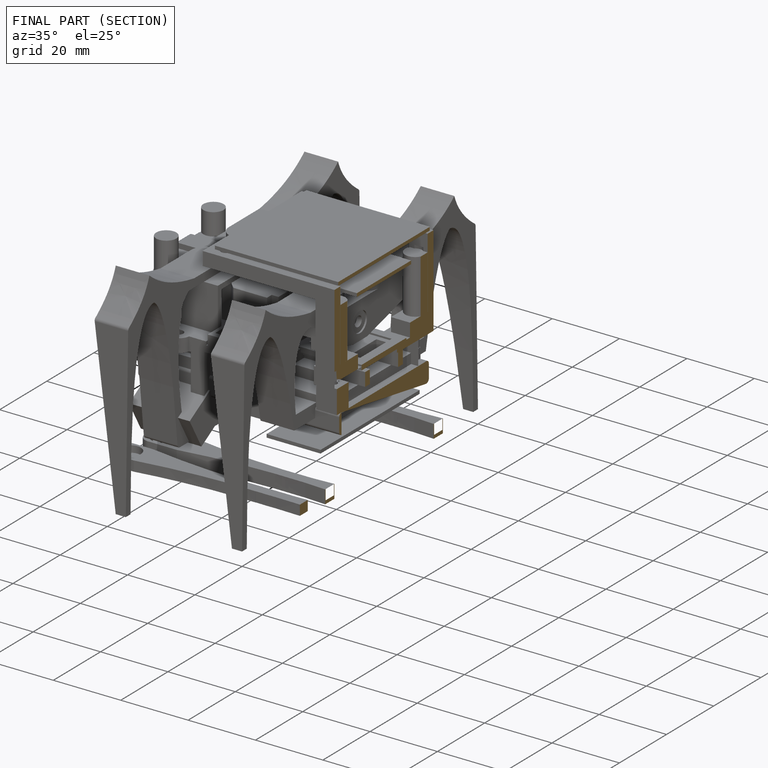
[diagram: finished part — half-section view (interior)]
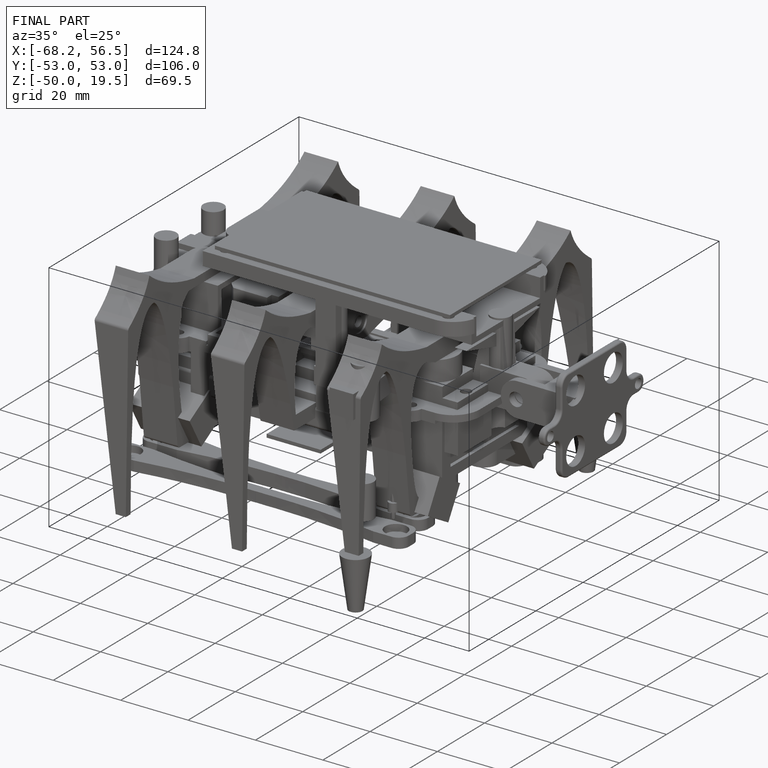
[diagram: finished part — iso view with bounding-box wireframe]
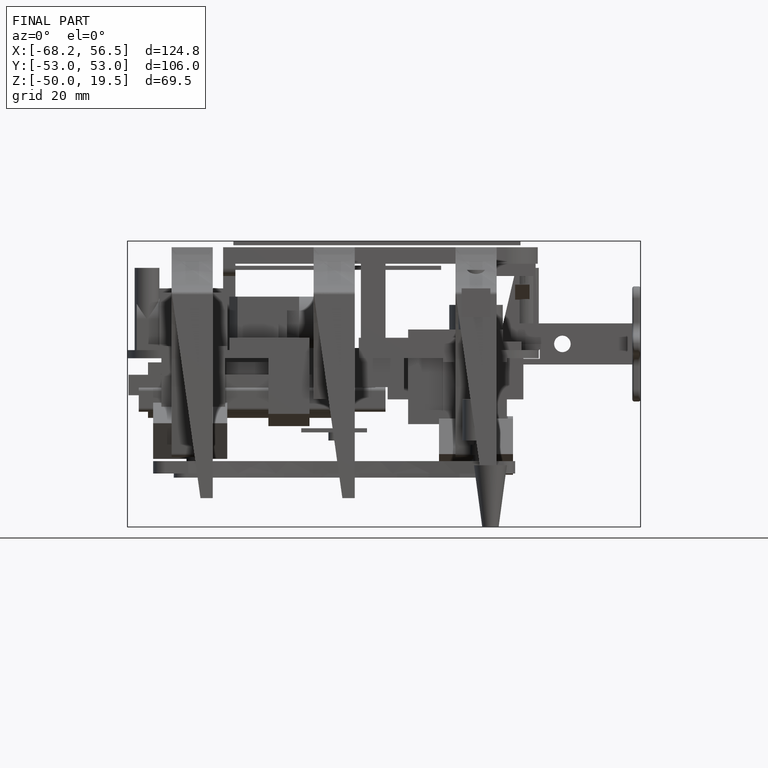
[diagram: finished part — front view with bounding-box wireframe]
